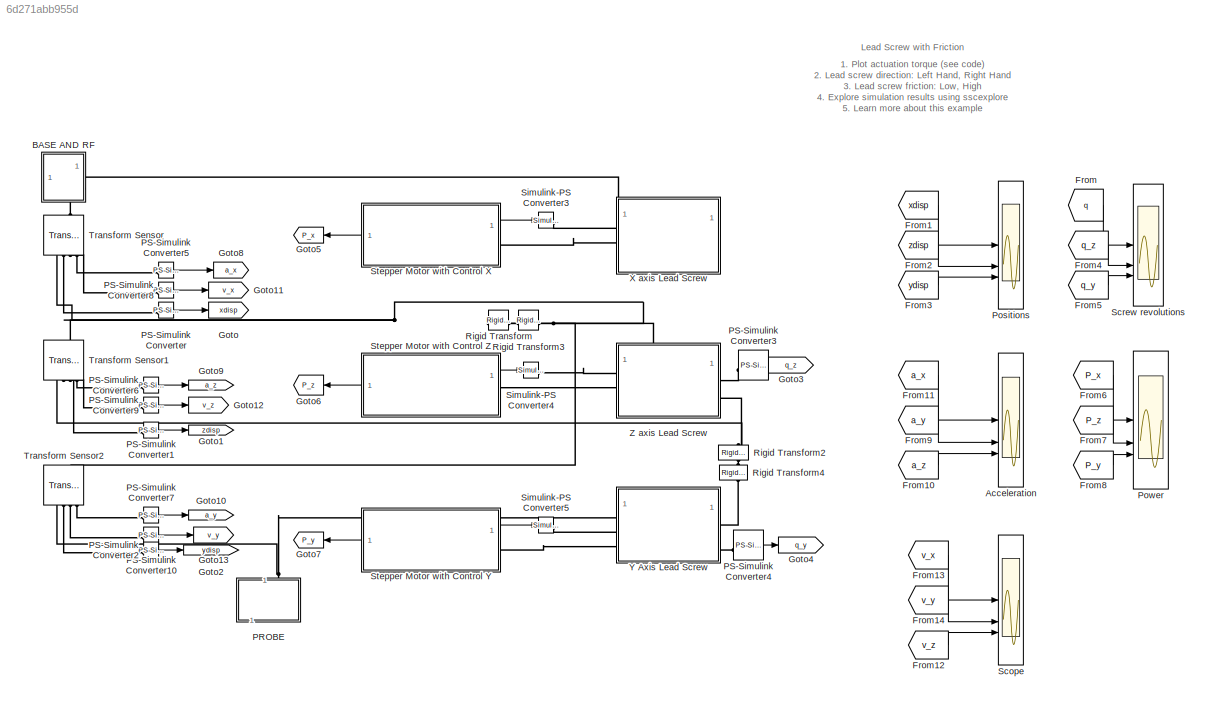
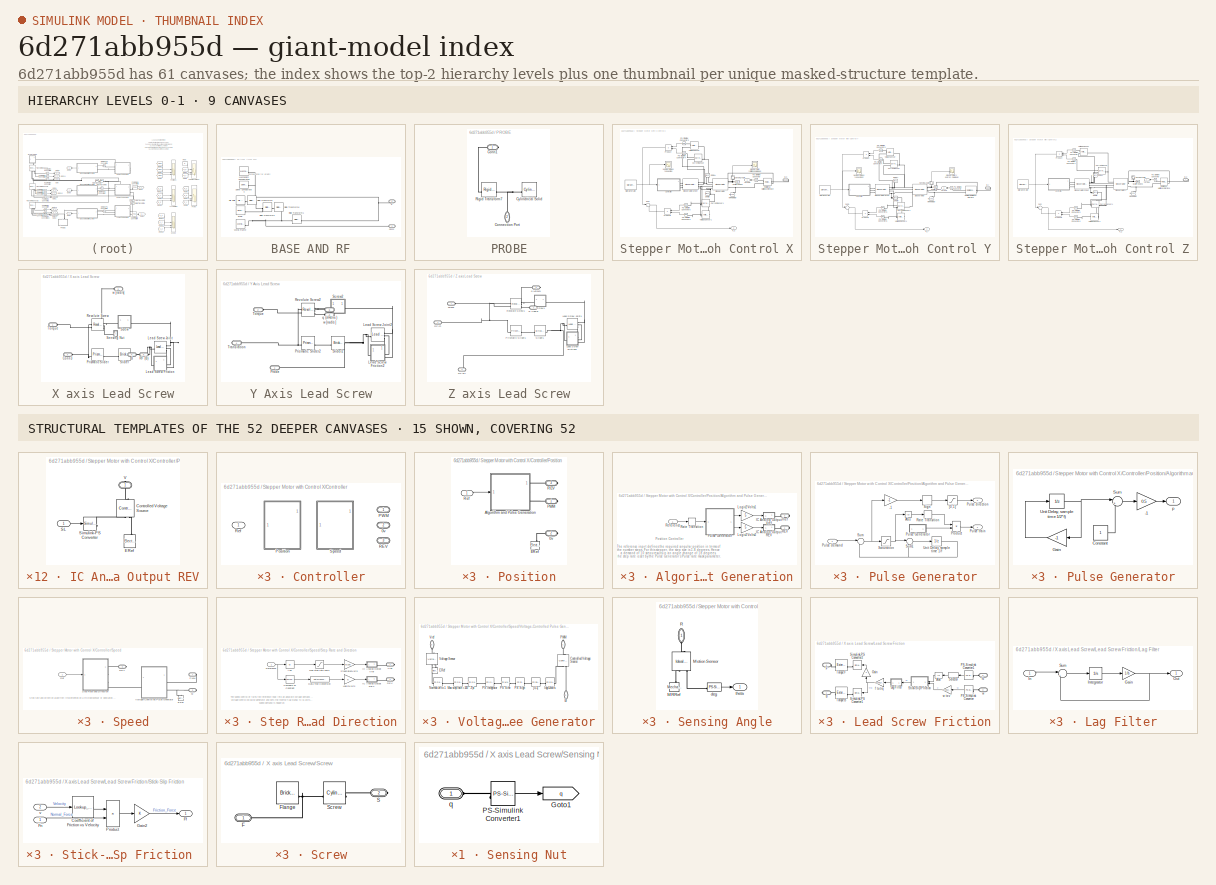
[diagram: thumbnail index - top-2 hierarchy levels (9 canvases) + 15 structural-template representatives of the remaining 52 canvases]
MODEL slx_6d271abb955d
KIND model
CONFIG AbsTol = 1e-4
CONFIG EnableMultiTasking = on
CONFIG FixedStep = auto
CONFIG InitFcn = Scan_Script_v8
CONFIG MaxStep = auto
CONFIG MinStep = auto
CONFIG RelTol = 1e-3
CONFIG SampleTimeConstraint = Unconstrained
CONFIG SolverName = ode23t
CONFIG StartTime = 0.0
CONFIG StopFcn = graphB
CONFIG StopTime = 1.6
WORKSPACE source: MATLAB code (in-file)
WORKSPACE screw_lead = 25e-3  (= 0.025)
BLOCK [Scope] Acceleration
  Floating = off
  NumInputPorts = 3
  ScopeSpecificationString = Simulink.scopes.TimeScopeBlockCfg('CurrentConfiguration', extmgr.ConfigurationSet(extmgr.Configuration('Core','General UI',true),extmgr.Configuration('Core','Source UI',true),extmgr.Configuration('Sources','WiredSimulink',true,'DataLoggingVariableName','AccData','DataLogging',true,'DataLoggingSaveFormat','StructureWithTime'),extmgr.Configuration('Visuals','Time Domain',true,'SerializedDisplays',{s...<+2803ch>
BLOCK [SubSystem] BASE AND RF
  PortSchema = {"entries":[{"content":{"sides":[{"content":{},"type":"ConnectorPlacement.EquallySpacedRectSide","uuid":"e1a16f55-811e-4f28-94cc-dff076befe5d"},{"content":{"connectorIds":["RConn1"],"side":"RIGHT"},"type":"ConnectorPlacement.EquallySpacedRectSide","uuid":"b7e481db-9f16-440e-94f1-e894d0c9158e"},{"content":{"side":"TOP"},"type":"ConnectorPlacement.EquallySpacedRectSide","uuid":"fdbe7675-31a0-455d-b0...<+354ch>
BLOCK [Reference] BASE AND RF/BASE  REF=sm_lib/Body Elements/Brick Solid
  SourceBlock = sm_lib/Body Elements/Brick Solid
  SourceType = Brick Solid
BLOCK [PMIOPort] BASE AND RF/Conn2
  Port = 2
  Side = Right
BLOCK [Reference] BASE AND RF/File Solid  REF=sm_lib/Body Elements/File Solid
  SourceBlock = sm_lib/Body Elements/File Solid
  SourceType = File Solid
BLOCK [Reference] BASE AND RF/Mechanism Configuration  REF=sm_lib/Utilities/Mechanism
Configuration
  NameLocation = top
  SourceBlock = sm_lib/Utilities/Mechanism\nConfiguration
  SourceType = Mechanism\nConfiguration
BLOCK [Reference] BASE AND RF/Rigid Transform1  REF=sm_lib/Frames and
Transforms/Rigid
Transform
  SourceBlock = sm_lib/Frames and\nTransforms/Rigid\nTransform
  SourceType = Rigid\nTransform
BLOCK [Reference] BASE AND RF/Rigid Transform5  REF=sm_lib/Frames and
Transforms/Rigid
Transform
  SourceBlock = sm_lib/Frames and\nTransforms/Rigid\nTransform
  SourceType = Rigid\nTransform
BLOCK [Reference] BASE AND RF/Rigid Transform6  REF=sm_lib/Frames and
Transforms/Rigid
Transform
  SourceBlock = sm_lib/Frames and\nTransforms/Rigid\nTransform
  SourceType = Rigid\nTransform
BLOCK [Reference] BASE AND RF/Rigid Transform8  REF=sm_lib/Frames and
Transforms/Rigid
Transform
  SourceBlock = sm_lib/Frames and\nTransforms/Rigid\nTransform
  SourceType = Rigid\nTransform
BLOCK [Reference] BASE AND RF/Solver Configuration  REF=nesl_utility/Solver
Configuration
  NameLocation = top
  SourceBlock = nesl_utility/Solver\nConfiguration
  SourceType = Solver\nConfiguration
BLOCK [Reference] BASE AND RF/World Frame  REF=sm_lib/Frames and
Transforms/World Frame
  SourceBlock = sm_lib/Frames and\nTransforms/World Frame
  SourceType = World Frame
BLOCK [PMIOPort] BASE AND RF/a
  Side = Right
BLOCK [From] From
  GotoTag = q
  TagVisibility = global
BLOCK [From] From1
  GotoTag = xdisp
BLOCK [From] From10
  GotoTag = a_z
BLOCK [From] From11
  GotoTag = a_x
BLOCK [From] From12
  GotoTag = v_z
BLOCK [From] From13
  GotoTag = v_x
BLOCK [From] From14
  GotoTag = v_y
BLOCK [From] From2
  GotoTag = zdisp
BLOCK [From] From3
  GotoTag = ydisp
BLOCK [From] From4
  GotoTag = q_z
  TagVisibility = global
BLOCK [From] From5
  GotoTag = q_y
  TagVisibility = global
BLOCK [From] From6
  GotoTag = P_x
BLOCK [From] From7
  GotoTag = P_z
BLOCK [From] From8
  GotoTag = P_y
BLOCK [From] From9
  GotoTag = a_y
BLOCK [Goto] Goto
  GotoTag = xdisp
BLOCK [Goto] Goto1
  GotoTag = zdisp
BLOCK [Goto] Goto10
  GotoTag = a_y
BLOCK [Goto] Goto11
  GotoTag = v_x
BLOCK [Goto] Goto12
  GotoTag = v_z
BLOCK [Goto] Goto13
  GotoTag = v_y
BLOCK [Goto] Goto2
  GotoTag = ydisp
BLOCK [Goto] Goto3
  GotoTag = q_z
  TagVisibility = global
BLOCK [Goto] Goto4
  GotoTag = q_y
  TagVisibility = global
BLOCK [Goto] Goto5
  GotoTag = P_x
BLOCK [Goto] Goto6
  GotoTag = P_z
BLOCK [Goto] Goto7
  GotoTag = P_y
BLOCK [Goto] Goto8
  GotoTag = a_x
BLOCK [Goto] Goto9
  GotoTag = a_z
BLOCK [SubSystem] PROBE
  NameLocation = left
BLOCK [PMIOPort] PROBE/Conn1
  Side = Right
BLOCK [PMIOPort] PROBE/Connection Port
  NameLocation = left
  Port = 2
  Side = Left
BLOCK [Reference] PROBE/Cylindrical Solid  REF=sm_lib/Body Elements/Cylindrical Solid
  SourceBlock = sm_lib/Body Elements/Cylindrical Solid
  SourceType = Cylindrical Solid
BLOCK [Reference] PROBE/Rigid Transform7  REF=sm_lib/Frames and
Transforms/Rigid
Transform
  SourceBlock = sm_lib/Frames and\nTransforms/Rigid\nTransform
  SourceType = Rigid\nTransform
BLOCK [Reference] PS-Simulink Converter  REF=nesl_utility/PS-Simulink
Converter
  SourceBlock = nesl_utility/PS-Simulink\nConverter
  SourceType = PS-Simulink\nConverter
BLOCK [Reference] PS-Simulink Converter1  REF=nesl_utility/PS-Simulink
Converter
  SourceBlock = nesl_utility/PS-Simulink\nConverter
  SourceType = PS-Simulink\nConverter
BLOCK [Reference] PS-Simulink Converter10  REF=nesl_utility/PS-Simulink
Converter
  SourceBlock = nesl_utility/PS-Simulink\nConverter
  SourceType = PS-Simulink\nConverter
BLOCK [Reference] PS-Simulink Converter2  REF=nesl_utility/PS-Simulink
Converter
  NameLocation = top
  SourceBlock = nesl_utility/PS-Simulink\nConverter
  SourceType = PS-Simulink\nConverter
BLOCK [Reference] PS-Simulink Converter3  REF=nesl_utility/PS-Simulink
Converter
  SourceBlock = nesl_utility/PS-Simulink\nConverter
  SourceType = PS-Simulink\nConverter
BLOCK [Reference] PS-Simulink Converter4  REF=nesl_utility/PS-Simulink
Converter
  SourceBlock = nesl_utility/PS-Simulink\nConverter
  SourceType = PS-Simulink\nConverter
BLOCK [Reference] PS-Simulink Converter5  REF=nesl_utility/PS-Simulink
Converter
  SourceBlock = nesl_utility/PS-Simulink\nConverter
  SourceType = PS-Simulink\nConverter
BLOCK [Reference] PS-Simulink Converter6  REF=nesl_utility/PS-Simulink
Converter
  SourceBlock = nesl_utility/PS-Simulink\nConverter
  SourceType = PS-Simulink\nConverter
BLOCK [Reference] PS-Simulink Converter7  REF=nesl_utility/PS-Simulink
Converter
  SourceBlock = nesl_utility/PS-Simulink\nConverter
  SourceType = PS-Simulink\nConverter
BLOCK [Reference] PS-Simulink Converter8  REF=nesl_utility/PS-Simulink
Converter
  SourceBlock = nesl_utility/PS-Simulink\nConverter
  SourceType = PS-Simulink\nConverter
BLOCK [Reference] PS-Simulink Converter9  REF=nesl_utility/PS-Simulink
Converter
  SourceBlock = nesl_utility/PS-Simulink\nConverter
  SourceType = PS-Simulink\nConverter
BLOCK [Scope] Positions
  Floating = off
  NumInputPorts = 3
  ScopeSpecificationString = Simulink.scopes.TimeScopeBlockCfg('CurrentConfiguration', extmgr.ConfigurationSet(extmgr.Configuration('Core','General UI',true),extmgr.Configuration('Core','Source UI',true),extmgr.Configuration('Sources','WiredSimulink',true,'DataLoggingSaveFormat','StructureWithTime','DataLoggingDecimation','1','DataLoggingDecimateData',true,'DataLogging',true,'DataLoggingVariableName','PositionsData'),extmgr.C...<+4072ch>
BLOCK [Scope] Power
  Floating = off
  NumInputPorts = 3
  ScopeSpecificationString = Simulink.scopes.TimeScopeBlockCfg('CurrentConfiguration', extmgr.ConfigurationSet(extmgr.Configuration('Core','General UI',true),extmgr.Configuration('Core','Source UI',true),extmgr.Configuration('Sources','WiredSimulink',true,'DataLoggingVariableName','PowerData','DataLogging',true,'DataLoggingSaveFormat','StructureWithTime'),extmgr.Configuration('Visuals','Time Domain',true,'SerializedDisplays',...<+2965ch>
BLOCK [Reference] Rigid Transform  REF=sm_lib/Frames and
Transforms/Rigid
Transform
  SourceBlock = sm_lib/Frames and\nTransforms/Rigid\nTransform
  SourceType = Rigid\nTransform
BLOCK [Reference] Rigid Transform2  REF=sm_lib/Frames and
Transforms/Rigid
Transform
  NameLocation = right
  SourceBlock = sm_lib/Frames and\nTransforms/Rigid\nTransform
  SourceType = Rigid\nTransform
BLOCK [Reference] Rigid Transform3  REF=sm_lib/Frames and
Transforms/Rigid
Transform
  SourceBlock = sm_lib/Frames and\nTransforms/Rigid\nTransform
  SourceType = Rigid\nTransform
BLOCK [Reference] Rigid Transform4  REF=sm_lib/Frames and
Transforms/Rigid
Transform
  NameLocation = right
  SourceBlock = sm_lib/Frames and\nTransforms/Rigid\nTransform
  SourceType = Rigid\nTransform
BLOCK [Scope] Scope
  Floating = off
  NumInputPorts = 3
  ScopeSpecificationString = Simulink.scopes.TimeScopeBlockCfg('CurrentConfiguration', extmgr.ConfigurationSet(extmgr.Configuration('Core','General UI',true),extmgr.Configuration('Core','Source UI',true),extmgr.Configuration('Sources','WiredSimulink',true,'DataLoggingVariableName','VelData','DataLogging',true,'DataLoggingSaveFormat','StructureWithTime'),extmgr.Configuration('Visuals','Time Domain',true,'SerializedDisplays',{s...<+2776ch>
BLOCK [Scope] Screw revolutions
  Floating = off
  NumInputPorts = 3
  ScopeSpecificationString = Simulink.scopes.TimeScopeBlockCfg('CurrentConfiguration', extmgr.ConfigurationSet(extmgr.Configuration('Core','General UI',true),extmgr.Configuration('Core','Source UI',true),extmgr.Configuration('Sources','WiredSimulink',true,'DataLoggingVariableName','RevsData','DataLogging',true,'DataLoggingSaveFormat','StructureWithTime'),extmgr.Configuration('Visuals','Time Domain',true,'SerializedDisplays',{...<+1492ch>
BLOCK [Reference] Simulink-PS Converter3  REF=nesl_utility/Simulink-PS
Converter
  SourceBlock = nesl_utility/Simulink-PS\nConverter
  SourceType = Simulink-PS\nConverter
BLOCK [Reference] Simulink-PS Converter4  REF=nesl_utility/Simulink-PS
Converter
  SourceBlock = nesl_utility/Simulink-PS\nConverter
  SourceType = Simulink-PS\nConverter
BLOCK [Reference] Simulink-PS Converter5  REF=nesl_utility/Simulink-PS
Converter
  SourceBlock = nesl_utility/Simulink-PS\nConverter
  SourceType = Simulink-PS\nConverter
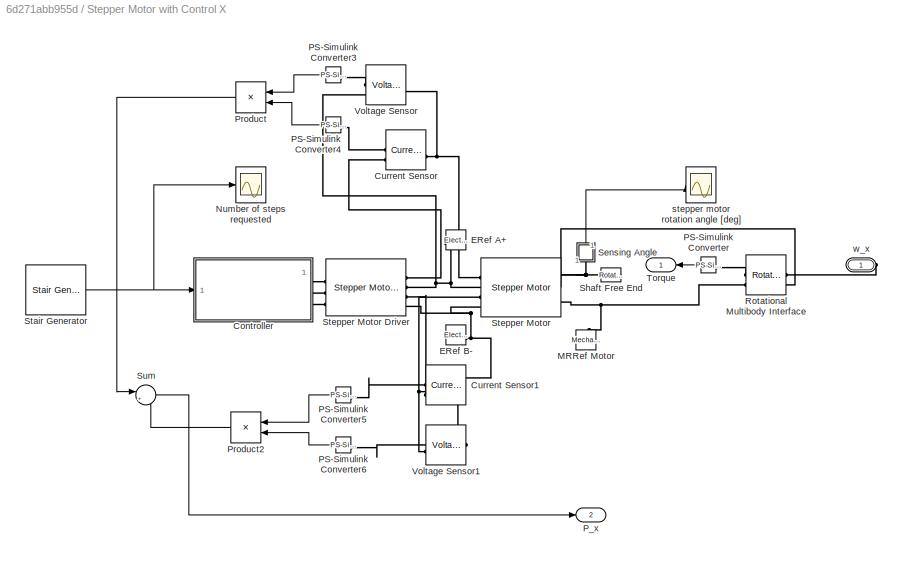
BLOCK [SubSystem] Stepper Motor with Control X
  PortSchema = {"entries":[{"content":{"sides":[{"content":{"connectorIds":["Out2"]},"type":"ConnectorPlacement.EquallySpacedRectSide","uuid":"d4a13004-0421-4076-88bd-b20e3621817d"},{"content":{"connectorIds":["Out1","RConn1"],"side":"RIGHT"},"type":"ConnectorPlacement.EquallySpacedRectSide","uuid":"ec4e333e-2383-40f5-9a1f-62b424520b96"},{"content":{"side":"TOP"},"type":"ConnectorPlacement.EquallySpacedRectSide"...<+232ch>
  ShowPortLabels = SignalName
BLOCK [PMIOPort] Stepper Motor with Control X/ w_x
  Side = Right
BLOCK [SubSystem] Stepper Motor with Control X/Controller
  AttributesFormatString = %<BlockChoice>
  LabelModeActiveChoice = Position
  Variant = on
  VariantControlMode = label
BLOCK [PMIOPort] Stepper Motor with Control X/Controller/0v
  Port = 2
  Side = Right
BLOCK [PMIOPort] Stepper Motor with Control X/Controller/PWM
  Side = Right
BLOCK [SubSystem] Stepper Motor with Control X/Controller/Position
  VariantControl = Position
BLOCK [PMIOPort] Stepper Motor with Control X/Controller/Position/0v
  Port = 2
  Side = Right
BLOCK [SubSystem] Stepper Motor with Control X/Controller/Position/Algorithm and Pulse Generation
BLOCK [SubSystem] Stepper Motor with Control X/Controller/Position/Algorithm and Pulse Generation/IC Analog Output REV
BLOCK [Reference] Stepper Motor with Control X/Controller/Position/Algorithm and Pulse Generation/IC Analog Output REV/Controlled Voltage Source  REF=fl_lib/Electrical/Electrical Sources/Controlled Voltage
Source
  NameLocation = right
  SourceBlock = fl_lib/Electrical/Electrical Sources/Controlled Voltage\nSource
  SourceType = Controlled Voltage\nSource
BLOCK [Reference] Stepper Motor with Control X/Controller/Position/Algorithm and Pulse Generation/IC Analog Output REV/ERef  REF=fl_lib/Electrical/Electrical Elements/Electrical Reference
  NameLocation = right
  SourceBlock = fl_lib/Electrical/Electrical Elements/Electrical Reference
  SourceType = Electrical Reference
BLOCK [Inport] Stepper Motor with Control X/Controller/Position/Algorithm and Pulse Generation/IC Analog Output REV/SL
BLOCK [Reference] Stepper Motor with Control X/Controller/Position/Algorithm and Pulse Generation/IC Analog Output REV/Simulink-PS Converter  REF=nesl_utility/Simulink-PS
Converter
  SourceBlock = nesl_utility/Simulink-PS\nConverter
  SourceType = Simulink-PS\nConverter
BLOCK [PMIOPort] Stepper Motor with Control X/Controller/Position/Algorithm and Pulse Generation/IC Analog Output REV/V
  NameLocation = right
  Side = Right
BLOCK [SubSystem] Stepper Motor with Control X/Controller/Position/Algorithm and Pulse Generation/IC Analog Output Vref
  NameLocation = top
BLOCK [Reference] Stepper Motor with Control X/Controller/Position/Algorithm and Pulse Generation/IC Analog Output Vref/Controlled Voltage Source  REF=fl_lib/Electrical/Electrical Sources/Controlled Voltage
Source
  NameLocation = right
  SourceBlock = fl_lib/Electrical/Electrical Sources/Controlled Voltage\nSource
  SourceType = Controlled Voltage\nSource
BLOCK [Reference] Stepper Motor with Control X/Controller/Position/Algorithm and Pulse Generation/IC Analog Output Vref/ERef  REF=fl_lib/Electrical/Electrical Elements/Electrical Reference
  NameLocation = right
  SourceBlock = fl_lib/Electrical/Electrical Elements/Electrical Reference
  SourceType = Electrical Reference
BLOCK [Inport] Stepper Motor with Control X/Controller/Position/Algorithm and Pulse Generation/IC Analog Output Vref/SL
BLOCK [Reference] Stepper Motor with Control X/Controller/Position/Algorithm and Pulse Generation/IC Analog Output Vref/Simulink-PS Converter  REF=nesl_utility/Simulink-PS
Converter
  SourceBlock = nesl_utility/Simulink-PS\nConverter
  SourceType = Simulink-PS\nConverter
BLOCK [PMIOPort] Stepper Motor with Control X/Controller/Position/Algorithm and Pulse Generation/IC Analog Output Vref/V
  NameLocation = right
  Side = Right
BLOCK [Gain] Stepper Motor with Control X/Controller/Position/Algorithm and Pulse Generation/Logic2Volts1
  Gain = 5
  NameLocation = top
BLOCK [Gain] Stepper Motor with Control X/Controller/Position/Algorithm and Pulse Generation/Logic2Volts2
  Gain = 5
BLOCK [SubSystem] Stepper Motor with Control X/Controller/Position/Algorithm and Pulse Generation/Pulse Generator
BLOCK [Gain] Stepper Motor with Control X/Controller/Position/Algorithm and Pulse Generation/Pulse Generator/-1
  Gain = -1
BLOCK [Abs] Stepper Motor with Control X/Controller/Position/Algorithm and Pulse Generation/Pulse Generator/Abs
  SaturateOnIntegerOverflow = off
BLOCK [Product] Stepper Motor with Control X/Controller/Position/Algorithm and Pulse Generation/Pulse Generator/Product
  InputSameDT = on
  OutDataTypeStr = Inherit: Same as first input
  SaturateOnIntegerOverflow = on
BLOCK [Inport] Stepper Motor with Control X/Controller/Position/Algorithm and Pulse Generation/Pulse Generator/Pulse  demand
  SampleTime = 1/f
BLOCK [SubSystem] Stepper Motor with Control X/Controller/Position/Algorithm and Pulse Generation/Pulse Generator/Pulse Generator
BLOCK [Gain] Stepper Motor with Control X/Controller/Position/Algorithm and Pulse Generation/Pulse Generator/Pulse Generator/-1
  Gain = 0.5
BLOCK [Constant] Stepper Motor with Control X/Controller/Position/Algorithm and Pulse Generation/Pulse Generator/Pulse Generator/Constant
  SampleTime = 1/(2*f)
BLOCK [Gain] Stepper Motor with Control X/Controller/Position/Algorithm and Pulse Generation/Pulse Generator/Pulse Generator/Gain
  Gain = -1
BLOCK [Sum] Stepper Motor with Control X/Controller/Position/Algorithm and Pulse Generation/Pulse Generator/Pulse Generator/Sum
  Inputs = |++
BLOCK [UnitDelay] Stepper Motor with Control X/Controller/Position/Algorithm and Pulse Generation/Pulse Generator/Pulse Generator/Unit Delay, sample time 1//2*f)
  HasFrameUpgradeWarning = on
  InitialCondition = -1
  SampleTime = 1/(2*f)
BLOCK [Outport] Stepper Motor with Control X/Controller/Position/Algorithm and Pulse Generation/Pulse Generator/Pulse Generator/p
  VectorParamsAs1DForOutWhenUnconnected = off
BLOCK [Outport] Stepper Motor with Control X/Controller/Position/Algorithm and Pulse Generation/Pulse Generator/Pulse direction
  Port = 2
  VectorParamsAs1DForOutWhenUnconnected = off
BLOCK [Outport] Stepper Motor with Control X/Controller/Position/Algorithm and Pulse Generation/Pulse Generator/Pulse train
  VectorParamsAs1DForOutWhenUnconnected = off
BLOCK [RateTransition] Stepper Motor with Control X/Controller/Position/Algorithm and Pulse Generation/Pulse Generator/Rate Transition
  Deterministic = off
BLOCK [Saturate] Stepper Motor with Control X/Controller/Position/Algorithm and Pulse Generation/Pulse Generator/Saturation
  LowerLimit = -1
  UpperLimit = 1
BLOCK [Signum] Stepper Motor with Control X/Controller/Position/Algorithm and Pulse Generation/Pulse Generator/Sign
BLOCK [Sum] Stepper Motor with Control X/Controller/Position/Algorithm and Pulse Generation/Pulse Generator/Sum
  Inputs = |+-
BLOCK [Sum] Stepper Motor with Control X/Controller/Position/Algorithm and Pulse Generation/Pulse Generator/Sum1
  Inputs = |++
BLOCK [UnitDelay] Stepper Motor with Control X/Controller/Position/Algorithm and Pulse Generation/Pulse Generator/Unit Delay, sample time 1//f
  HasFrameUpgradeWarning = on
  SampleTime = 1/f
BLOCK [Saturate] Stepper Motor with Control X/Controller/Position/Algorithm and Pulse Generation/Pulse Generator/[0,1]
  LowerLimit = 0
  UpperLimit = 1
BLOCK [PMIOPort] Stepper Motor with Control X/Controller/Position/Algorithm and Pulse Generation/REV
  Side = Right
BLOCK [RateTransition] Stepper Motor with Control X/Controller/Position/Algorithm and Pulse Generation/Rate Transition
  Deterministic = off
  NameLocation = top
BLOCK [Inport] Stepper Motor with Control X/Controller/Position/Algorithm and Pulse Generation/Reference
BLOCK [PMIOPort] Stepper Motor with Control X/Controller/Position/Algorithm and Pulse Generation/Vref
  NameLocation = top
  Port = 2
  Side = Right
BLOCK [Reference] Stepper Motor with Control X/Controller/Position/ERef  REF=fl_lib/Electrical/Electrical Elements/Electrical Reference
  NameLocation = left
  SourceBlock = fl_lib/Electrical/Electrical Elements/Electrical Reference
  SourceType = Electrical Reference
BLOCK [PMIOPort] Stepper Motor with Control X/Controller/Position/PWM
  Side = Right
BLOCK [PMIOPort] Stepper Motor with Control X/Controller/Position/REV
  NameLocation = top
  Port = 3
  Side = Right
BLOCK [Inport] Stepper Motor with Control X/Controller/Position/Ref
BLOCK [PMIOPort] Stepper Motor with Control X/Controller/REV
  Port = 3
  Side = Right
BLOCK [Inport] Stepper Motor with Control X/Controller/Ref
BLOCK [SubSystem] Stepper Motor with Control X/Controller/Speed
  VariantControl = Speed
BLOCK [PMIOPort] Stepper Motor with Control X/Controller/Speed/0v
  Port = 2
  Side = Right
BLOCK [Reference] Stepper Motor with Control X/Controller/Speed/ERef  REF=fl_lib/Electrical/Electrical Elements/Electrical Reference
  NameLocation = right
  SourceBlock = fl_lib/Electrical/Electrical Elements/Electrical Reference
  SourceType = Electrical Reference
BLOCK [PMIOPort] Stepper Motor with Control X/Controller/Speed/PWM
  Side = Right
BLOCK [PMIOPort] Stepper Motor with Control X/Controller/Speed/REV
  Port = 3
  Side = Right
BLOCK [Inport] Stepper Motor with Control X/Controller/Speed/Ref
BLOCK [SubSystem] Stepper Motor with Control X/Controller/Speed/Step Rate and Direction
BLOCK [Abs] Stepper Motor with Control X/Controller/Speed/Step Rate and Direction/Abs
  SaturateOnIntegerOverflow = off
BLOCK [Reference] Stepper Motor with Control X/Controller/Speed/Step Rate and Direction/Compare To Constant  REF=simulink/Logic and Bit
Operations/Compare
To Constant
  SourceBlock = simulink/Logic and Bit\nOperations/Compare\nTo Constant
  SourceType = Compare To Constant
BLOCK [DataTypeConversion] Stepper Motor with Control X/Controller/Speed/Step Rate and Direction/Data Type Conversion
  RndMeth = Floor
  SaturateOnIntegerOverflow = off
BLOCK [SubSystem] Stepper Motor with Control X/Controller/Speed/Step Rate and Direction/IC Analog Output REV
BLOCK [Reference] Stepper Motor with Control X/Controller/Speed/Step Rate and Direction/IC Analog Output REV/Controlled Voltage Source  REF=fl_lib/Electrical/Electrical Sources/Controlled Voltage
Source
  NameLocation = right
  SourceBlock = fl_lib/Electrical/Electrical Sources/Controlled Voltage\nSource
  SourceType = Controlled Voltage\nSource
BLOCK [Reference] Stepper Motor with Control X/Controller/Speed/Step Rate and Direction/IC Analog Output REV/ERef  REF=fl_lib/Electrical/Electrical Elements/Electrical Reference
  NameLocation = right
  SourceBlock = fl_lib/Electrical/Electrical Elements/Electrical Reference
  SourceType = Electrical Reference
BLOCK [Inport] Stepper Motor with Control X/Controller/Speed/Step Rate and Direction/IC Analog Output REV/SL
BLOCK [Reference] Stepper Motor with Control X/Controller/Speed/Step Rate and Direction/IC Analog Output REV/Simulink-PS Converter  REF=nesl_utility/Simulink-PS
Converter
  SourceBlock = nesl_utility/Simulink-PS\nConverter
  SourceType = Simulink-PS\nConverter
BLOCK [PMIOPort] Stepper Motor with Control X/Controller/Speed/Step Rate and Direction/IC Analog Output REV/V
  NameLocation = right
  Side = Right
BLOCK [SubSystem] Stepper Motor with Control X/Controller/Speed/Step Rate and Direction/IC Analog Output Vref
BLOCK [Reference] Stepper Motor with Control X/Controller/Speed/Step Rate and Direction/IC Analog Output Vref/Controlled Voltage Source  REF=fl_lib/Electrical/Electrical Sources/Controlled Voltage
Source
  NameLocation = right
  SourceBlock = fl_lib/Electrical/Electrical Sources/Controlled Voltage\nSource
  SourceType = Controlled Voltage\nSource
BLOCK [Reference] Stepper Motor with Control X/Controller/Speed/Step Rate and Direction/IC Analog Output Vref/ERef  REF=fl_lib/Electrical/Electrical Elements/Electrical Reference
  NameLocation = right
  SourceBlock = fl_lib/Electrical/Electrical Elements/Electrical Reference
  SourceType = Electrical Reference
BLOCK [Inport] Stepper Motor with Control X/Controller/Speed/Step Rate and Direction/IC Analog Output Vref/SL
BLOCK [Reference] Stepper Motor with Control X/Controller/Speed/Step Rate and Direction/IC Analog Output Vref/Simulink-PS Converter  REF=nesl_utility/Simulink-PS
Converter
  SourceBlock = nesl_utility/Simulink-PS\nConverter
  SourceType = Simulink-PS\nConverter
BLOCK [PMIOPort] Stepper Motor with Control X/Controller/Speed/Step Rate and Direction/IC Analog Output Vref/V
  NameLocation = right
  Side = Right
BLOCK [Gain] Stepper Motor with Control X/Controller/Speed/Step Rate and Direction/Logic2Volts
  Gain = 5
BLOCK [Saturate] Stepper Motor with Control X/Controller/Speed/Step Rate and Direction/Max step rate 100//s
  LowerLimit = 0
  UpperLimit = 100
BLOCK [PMIOPort] Stepper Motor with Control X/Controller/Speed/Step Rate and Direction/REV
  Side = Right
BLOCK [Inport] Stepper Motor with Control X/Controller/Speed/Step Rate and Direction/Reference
  NameLocation = top
BLOCK [Gain] Stepper Motor with Control X/Controller/Speed/Step Rate and Direction/StepRate2Volts
  Gain = 5/100
BLOCK [PMIOPort] Stepper Motor with Control X/Controller/Speed/Step Rate and Direction/Vref
  Port = 2
  Side = Right
BLOCK [SubSystem] Stepper Motor with Control X/Controller/Speed/Voltage-Controlled Pulse Generator
BLOCK [PMIOPort] Stepper Motor with Control X/Controller/Speed/Voltage-Controlled Pulse Generator/0v
  NameLocation = left
  Port = 2
  Side = Right
BLOCK [Reference] Stepper Motor with Control X/Controller/Speed/Voltage-Controlled Pulse Generator/2*pi  REF=fl_ps_legacy_lib/Legacy Physical
Signals/Functions/PS Gain
  SourceBlock = fl_ps_legacy_lib/Legacy Physical\nSignals/Functions/PS Gain
  SourceType = PS Gain
BLOCK [Reference] Stepper Motor with Control X/Controller/Speed/Voltage-Controlled Pulse Generator/Controlled Voltage Source  REF=fl_lib/Electrical/Electrical Sources/Controlled Voltage
Source
  NameLocation = left
  SourceBlock = fl_lib/Electrical/Electrical Sources/Controlled Voltage\nSource
  SourceType = Controlled Voltage\nSource
BLOCK [Reference] Stepper Motor with Control X/Controller/Speed/Voltage-Controlled Pulse Generator/ERef  REF=fl_lib/Electrical/Electrical Elements/Electrical Reference
  NameLocation = right
  SourceBlock = fl_lib/Electrical/Electrical Elements/Electrical Reference
  SourceType = Electrical Reference
BLOCK [Reference] Stepper Motor with Control X/Controller/Speed/Voltage-Controlled Pulse Generator/Max step rate =100  REF=fl_ps_legacy_lib/Legacy Physical
Signals/Functions/PS Gain
  NameLocation = top
  SourceBlock = fl_ps_legacy_lib/Legacy Physical\nSignals/Functions/PS Gain
  SourceType = PS Gain
BLOCK [Reference] Stepper Motor with Control X/Controller/Speed/Voltage-Controlled Pulse Generator/Normalize to 1  REF=fl_ps_legacy_lib/Legacy Physical
Signals/Functions/PS Gain
  SourceBlock = fl_ps_legacy_lib/Legacy Physical\nSignals/Functions/PS Gain
  SourceType = PS Gain
BLOCK [Reference] Stepper Motor with Control X/Controller/Speed/Voltage-Controlled Pulse Generator/PS Integrator  REF=fl_ps_legacy_lib/Legacy Physical
Signals/Linear Operators/PS Integrator
  NameLocation = top
  SourceBlock = fl_ps_legacy_lib/Legacy Physical\nSignals/Linear Operators/PS Integrator
  SourceType = PS Integrator
BLOCK [Reference] Stepper Motor with Control X/Controller/Speed/Voltage-Controlled Pulse Generator/PS Sign  REF=fl_ps_legacy_lib/Legacy Physical
Signals/Nonlinear Operators/PS Sign
  SourceBlock = fl_ps_legacy_lib/Legacy Physical\nSignals/Nonlinear Operators/PS Sign
  SourceType = PS Sign
BLOCK [Reference] Stepper Motor with Control X/Controller/Speed/Voltage-Controlled Pulse Generator/PS Sine  REF=fl_ps_legacy_lib/Legacy Physical
Signals/Functions/PS Math Function
  SourceBlock = fl_ps_legacy_lib/Legacy Physical\nSignals/Functions/PS Math Function
  SourceType = PS Math Function
BLOCK [PMIOPort] Stepper Motor with Control X/Controller/Speed/Voltage-Controlled Pulse Generator/PWM
  NameLocation = left
  Side = Right
BLOCK [Reference] Stepper Motor with Control X/Controller/Speed/Voltage-Controlled Pulse Generator/Voltage Sensor  REF=fl_lib/Electrical/Electrical Sensors/Voltage Sensor
  NameLocation = right
  SourceBlock = fl_lib/Electrical/Electrical Sensors/Voltage Sensor
  SourceType = Voltage Sensor
BLOCK [PMIOPort] Stepper Motor with Control X/Controller/Speed/Voltage-Controlled Pulse Generator/Vref
  NameLocation = right
  Port = 3
  Side = Left
BLOCK [Reference] Stepper Motor with Control X/Controller/Speed/Voltage-Controlled Pulse Generator/[0,1]  REF=fl_ps_legacy_lib/Legacy Physical
Signals/Nonlinear Operators/PS Saturation
  SourceBlock = fl_ps_legacy_lib/Legacy Physical\nSignals/Nonlinear Operators/PS Saturation
  SourceType = PS Saturation
BLOCK [Reference] Stepper Motor with Control X/Controller/Speed/Voltage-Controlled Pulse Generator/logic2volts  REF=fl_ps_legacy_lib/Legacy Physical
Signals/Functions/PS Gain
  SourceBlock = fl_ps_legacy_lib/Legacy Physical\nSignals/Functions/PS Gain
  SourceType = PS Gain
BLOCK [Reference] Stepper Motor with Control X/Current Sensor  REF=fl_lib/Electrical/Electrical Sensors/Current Sensor
  SourceBlock = fl_lib/Electrical/Electrical Sensors/Current Sensor
  SourceType = Current Sensor
BLOCK [Reference] Stepper Motor with Control X/Current Sensor1  REF=fl_lib/Electrical/Electrical Sensors/Current Sensor
  SourceBlock = fl_lib/Electrical/Electrical Sensors/Current Sensor
  SourceType = Current Sensor
BLOCK [Reference] Stepper Motor with Control X/ERef A+  REF=fl_lib/Electrical/Electrical Elements/Electrical Reference
  NameLocation = top
  SourceBlock = fl_lib/Electrical/Electrical Elements/Electrical Reference
  SourceType = Electrical Reference
BLOCK [Reference] Stepper Motor with Control X/ERef B-  REF=fl_lib/Electrical/Electrical Elements/Electrical Reference
  SourceBlock = fl_lib/Electrical/Electrical Elements/Electrical Reference
  SourceType = Electrical Reference
BLOCK [Reference] Stepper Motor with Control X/MRRef Motor  REF=fl_lib/Mechanical/Rotational Elements/Mechanical
Rotational Reference
  NameLocation = left
  SourceBlock = fl_lib/Mechanical/Rotational Elements/Mechanical\nRotational Reference
  SourceType = Mechanical\nRotational Reference
BLOCK [Scope] Stepper Motor with Control X/Number of steps requested
  Floating = off
  NumInputPorts = 1
  ScopeSpecificationString = Simulink.scopes.TimeScopeBlockCfg('CurrentConfiguration', extmgr.ConfigurationSet(extmgr.Configuration('Core','General UI',true),extmgr.Configuration('Core','Source UI',true),extmgr.Configuration('Sources','WiredSimulink',true,'DataLogging',true,'DataLoggingVariableName','ScopeData1','DataLoggingSaveFormat','StructureWithTime','DataLoggingDecimation','1','DataLoggingDecimateData',true),extmgr.Conf...<+1772ch>
BLOCK [Reference] Stepper Motor with Control X/PS-Simulink Converter  REF=nesl_utility/PS-Simulink
Converter
  SourceBlock = nesl_utility/PS-Simulink\nConverter
  SourceType = PS-Simulink\nConverter
BLOCK [Reference] Stepper Motor with Control X/PS-Simulink Converter3  REF=nesl_utility/PS-Simulink
Converter
  SourceBlock = nesl_utility/PS-Simulink\nConverter
  SourceType = PS-Simulink\nConverter
BLOCK [Reference] Stepper Motor with Control X/PS-Simulink Converter4  REF=nesl_utility/PS-Simulink
Converter
  SourceBlock = nesl_utility/PS-Simulink\nConverter
  SourceType = PS-Simulink\nConverter
BLOCK [Reference] Stepper Motor with Control X/PS-Simulink Converter5  REF=nesl_utility/PS-Simulink
Converter
  SourceBlock = nesl_utility/PS-Simulink\nConverter
  SourceType = PS-Simulink\nConverter
BLOCK [Reference] Stepper Motor with Control X/PS-Simulink Converter6  REF=nesl_utility/PS-Simulink
Converter
  SourceBlock = nesl_utility/PS-Simulink\nConverter
  SourceType = PS-Simulink\nConverter
BLOCK [Outport] Stepper Motor with Control X/P_x
  Port = 2
BLOCK [Product] Stepper Motor with Control X/Product
BLOCK [Product] Stepper Motor with Control X/Product2
BLOCK [Reference] Stepper Motor with Control X/Rotational Multibody Interface  REF=fl_lib/Mechanical/Multibody Interfaces/Rotational Multibody
Interface
  SourceBlock = fl_lib/Mechanical/Multibody Interfaces/Rotational Multibody\nInterface
  SourceType = Rotational Multibody\nInterface
BLOCK [SubSystem] Stepper Motor with Control X/Sensing Angle
  NameLocation = left
BLOCK [Reference] Stepper Motor with Control X/Sensing Angle/MRRef  REF=fl_lib/Mechanical/Rotational Elements/Mechanical
Rotational Reference
  NameLocation = left
  SourceBlock = fl_lib/Mechanical/Rotational Elements/Mechanical\nRotational Reference
  SourceType = Mechanical\nRotational Reference
BLOCK [Reference] Stepper Motor with Control X/Sensing Angle/Motion Sensor  REF=fl_lib/Mechanical/Mechanical Sensors/Ideal Rotational
Motion Sensor
  NameLocation = left
  SourceBlock = fl_lib/Mechanical/Mechanical Sensors/Ideal Rotational\nMotion Sensor
  SourceType = Ideal Rotational\nMotion Sensor
BLOCK [PMIOPort] Stepper Motor with Control X/Sensing Angle/R
  NameLocation = left
  Side = Left
BLOCK [Reference] Stepper Motor with Control X/Sensing Angle/deg  REF=nesl_utility/PS-Simulink
Converter
  SourceBlock = nesl_utility/PS-Simulink\nConverter
  SourceType = PS-Simulink\nConverter
BLOCK [Outport] Stepper Motor with Control X/Sensing Angle/theta
  VectorParamsAs1DForOutWhenUnconnected = off
BLOCK [Reference] Stepper Motor with Control X/Shaft Free End  REF=fl_lib/Mechanical/Rotational Elements/Rotational Free End
  SourceBlock = fl_lib/Mechanical/Rotational Elements/Rotational Free End
  SourceType = Rotational Free End
BLOCK [Reference] Stepper Motor with Control X/Stair Generator  REF=eeStairGenerator/Stair Generator
  LibrarySourceBlock = ee_sl_lib/General Control/Stair Generator
  SourceBlock = eeStairGenerator/Stair Generator
  SourceType = Stair Generator
BLOCK [Reference] Stepper Motor with Control X/Stepper Motor  REF=ee_lib/Electromechanical/Reluctance & Stepper/Stepper Motor
  SourceBlock = ee_lib/Electromechanical/Reluctance & Stepper/Stepper Motor
  SourceType = Stepper Motor
BLOCK [Reference] Stepper Motor with Control X/Stepper Motor Driver  REF=ee_lib/Electromechanical/Reluctance & Stepper/Stepper Motor Driver
  SourceBlock = ee_lib/Electromechanical/Reluctance & Stepper/Stepper Motor Driver
  SourceType = Stepper Motor Driver
BLOCK [Sum] Stepper Motor with Control X/Sum
  Inputs = |++
BLOCK [Outport] Stepper Motor with Control X/Torque
BLOCK [Reference] Stepper Motor with Control X/Voltage Sensor  REF=fl_lib/Electrical/Electrical Sensors/Voltage Sensor
  SourceBlock = fl_lib/Electrical/Electrical Sensors/Voltage Sensor
  SourceType = Voltage Sensor
BLOCK [Reference] Stepper Motor with Control X/Voltage Sensor1  REF=fl_lib/Electrical/Electrical Sensors/Voltage Sensor
  LibrarySourceBlock = ee_lib/Sensors &\nTransducers/Voltage Sensor
  NameLocation = top
  SourceBlock = fl_lib/Electrical/Electrical Sensors/Voltage Sensor
  SourceType = Voltage Sensor
BLOCK [Scope] Stepper Motor with Control X/stepper motor rotation angle [deg]
  Floating = off
  NumInputPorts = 1
  ScopeSpecificationString = Simulink.scopes.TimeScopeBlockCfg('CurrentConfiguration', extmgr.ConfigurationSet(extmgr.Configuration('Core','General UI',true),extmgr.Configuration('Core','Source UI',true),extmgr.Configuration('Sources','WiredSimulink',true,'DataLogging',true,'DataLoggingVariableName','ScopeData2','DataLoggingSaveFormat','StructureWithTime','DataLoggingDecimation','1','DataLoggingDecimateData',true),extmgr.Conf...<+1774ch>
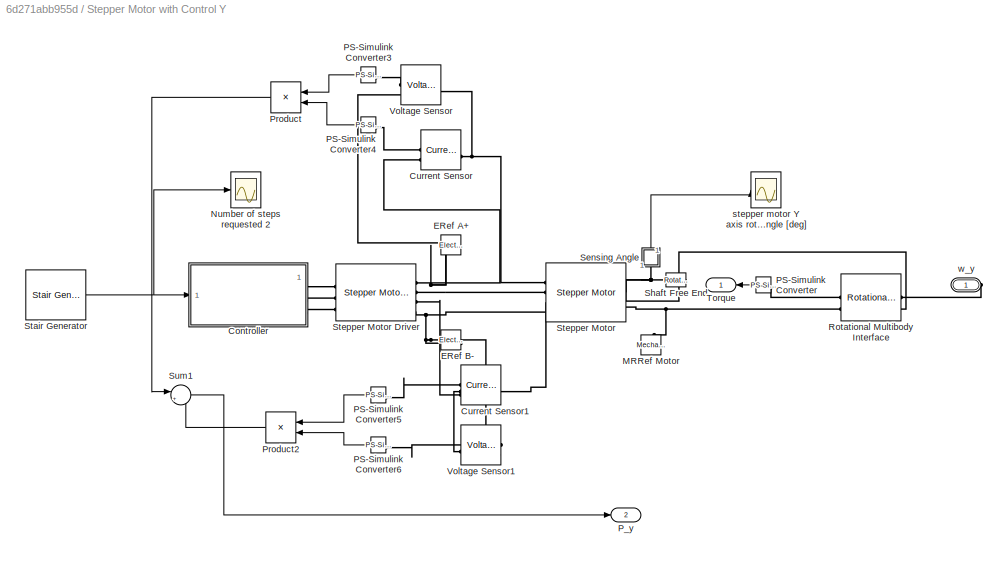
BLOCK [SubSystem] Stepper Motor with Control Y
  PortSchema = {"entries":[{"content":{"sides":[{"content":{"connectorIds":["Out2"]},"type":"ConnectorPlacement.EquallySpacedRectSide","uuid":"51ad8213-41aa-479a-83ef-80d419cc629a"},{"content":{"connectorIds":["Out1","RConn1"],"side":"RIGHT"},"type":"ConnectorPlacement.EquallySpacedRectSide","uuid":"ba2d3e48-e3a4-44eb-a7c6-2234710d1fbf"},{"content":{"side":"TOP"},"type":"ConnectorPlacement.EquallySpacedRectSide"...<+232ch>
BLOCK [SubSystem] Stepper Motor with Control Y/Controller
  AttributesFormatString = %<BlockChoice>
  LabelModeActiveChoice = Position
  Variant = on
  VariantControlMode = label
BLOCK [PMIOPort] Stepper Motor with Control Y/Controller/0v
  Port = 2
  Side = Right
BLOCK [PMIOPort] Stepper Motor with Control Y/Controller/PWM
  Side = Right
BLOCK [SubSystem] Stepper Motor with Control Y/Controller/Position
  VariantControl = Position
BLOCK [PMIOPort] Stepper Motor with Control Y/Controller/Position/0v
  Port = 2
  Side = Right
BLOCK [SubSystem] Stepper Motor with Control Y/Controller/Position/Algorithm and Pulse Generation
BLOCK [SubSystem] Stepper Motor with Control Y/Controller/Position/Algorithm and Pulse Generation/IC Analog Output REV
BLOCK [Reference] Stepper Motor with Control Y/Controller/Position/Algorithm and Pulse Generation/IC Analog Output REV/Controlled Voltage Source  REF=fl_lib/Electrical/Electrical Sources/Controlled Voltage
Source
  NameLocation = right
  SourceBlock = fl_lib/Electrical/Electrical Sources/Controlled Voltage\nSource
  SourceType = Controlled Voltage\nSource
BLOCK [Reference] Stepper Motor with Control Y/Controller/Position/Algorithm and Pulse Generation/IC Analog Output REV/ERef  REF=fl_lib/Electrical/Electrical Elements/Electrical Reference
  NameLocation = right
  SourceBlock = fl_lib/Electrical/Electrical Elements/Electrical Reference
  SourceType = Electrical Reference
BLOCK [Inport] Stepper Motor with Control Y/Controller/Position/Algorithm and Pulse Generation/IC Analog Output REV/SL
BLOCK [Reference] Stepper Motor with Control Y/Controller/Position/Algorithm and Pulse Generation/IC Analog Output REV/Simulink-PS Converter  REF=nesl_utility/Simulink-PS
Converter
  SourceBlock = nesl_utility/Simulink-PS\nConverter
  SourceType = Simulink-PS\nConverter
BLOCK [PMIOPort] Stepper Motor with Control Y/Controller/Position/Algorithm and Pulse Generation/IC Analog Output REV/V
  NameLocation = right
  Side = Right
BLOCK [SubSystem] Stepper Motor with Control Y/Controller/Position/Algorithm and Pulse Generation/IC Analog Output Vref
  NameLocation = top
BLOCK [Reference] Stepper Motor with Control Y/Controller/Position/Algorithm and Pulse Generation/IC Analog Output Vref/Controlled Voltage Source  REF=fl_lib/Electrical/Electrical Sources/Controlled Voltage
Source
  NameLocation = right
  SourceBlock = fl_lib/Electrical/Electrical Sources/Controlled Voltage\nSource
  SourceType = Controlled Voltage\nSource
BLOCK [Reference] Stepper Motor with Control Y/Controller/Position/Algorithm and Pulse Generation/IC Analog Output Vref/ERef  REF=fl_lib/Electrical/Electrical Elements/Electrical Reference
  NameLocation = right
  SourceBlock = fl_lib/Electrical/Electrical Elements/Electrical Reference
  SourceType = Electrical Reference
BLOCK [Inport] Stepper Motor with Control Y/Controller/Position/Algorithm and Pulse Generation/IC Analog Output Vref/SL
BLOCK [Reference] Stepper Motor with Control Y/Controller/Position/Algorithm and Pulse Generation/IC Analog Output Vref/Simulink-PS Converter  REF=nesl_utility/Simulink-PS
Converter
  SourceBlock = nesl_utility/Simulink-PS\nConverter
  SourceType = Simulink-PS\nConverter
BLOCK [PMIOPort] Stepper Motor with Control Y/Controller/Position/Algorithm and Pulse Generation/IC Analog Output Vref/V
  NameLocation = right
  Side = Right
BLOCK [Gain] Stepper Motor with Control Y/Controller/Position/Algorithm and Pulse Generation/Logic2Volts1
  Gain = 5
  NameLocation = top
BLOCK [Gain] Stepper Motor with Control Y/Controller/Position/Algorithm and Pulse Generation/Logic2Volts2
  Gain = 5
BLOCK [SubSystem] Stepper Motor with Control Y/Controller/Position/Algorithm and Pulse Generation/Pulse Generator
BLOCK [Gain] Stepper Motor with Control Y/Controller/Position/Algorithm and Pulse Generation/Pulse Generator/-1
  Gain = -1
BLOCK [Abs] Stepper Motor with Control Y/Controller/Position/Algorithm and Pulse Generation/Pulse Generator/Abs
  SaturateOnIntegerOverflow = off
BLOCK [Product] Stepper Motor with Control Y/Controller/Position/Algorithm and Pulse Generation/Pulse Generator/Product
  InputSameDT = on
  OutDataTypeStr = Inherit: Same as first input
  SaturateOnIntegerOverflow = on
BLOCK [Inport] Stepper Motor with Control Y/Controller/Position/Algorithm and Pulse Generation/Pulse Generator/Pulse  demand
  SampleTime = 1/f
BLOCK [SubSystem] Stepper Motor with Control Y/Controller/Position/Algorithm and Pulse Generation/Pulse Generator/Pulse Generator
BLOCK [Gain] Stepper Motor with Control Y/Controller/Position/Algorithm and Pulse Generation/Pulse Generator/Pulse Generator/-1
  Gain = 0.5
BLOCK [Constant] Stepper Motor with Control Y/Controller/Position/Algorithm and Pulse Generation/Pulse Generator/Pulse Generator/Constant
  SampleTime = 1/(2*f)
BLOCK [Gain] Stepper Motor with Control Y/Controller/Position/Algorithm and Pulse Generation/Pulse Generator/Pulse Generator/Gain
  Gain = -1
BLOCK [Sum] Stepper Motor with Control Y/Controller/Position/Algorithm and Pulse Generation/Pulse Generator/Pulse Generator/Sum
  Inputs = |++
BLOCK [UnitDelay] Stepper Motor with Control Y/Controller/Position/Algorithm and Pulse Generation/Pulse Generator/Pulse Generator/Unit Delay, sample time 1//2*f)
  HasFrameUpgradeWarning = on
  InitialCondition = -1
  SampleTime = 1/(2*f)
BLOCK [Outport] Stepper Motor with Control Y/Controller/Position/Algorithm and Pulse Generation/Pulse Generator/Pulse Generator/p
  VectorParamsAs1DForOutWhenUnconnected = off
BLOCK [Outport] Stepper Motor with Control Y/Controller/Position/Algorithm and Pulse Generation/Pulse Generator/Pulse direction
  Port = 2
  VectorParamsAs1DForOutWhenUnconnected = off
BLOCK [Outport] Stepper Motor with Control Y/Controller/Position/Algorithm and Pulse Generation/Pulse Generator/Pulse train
  VectorParamsAs1DForOutWhenUnconnected = off
BLOCK [RateTransition] Stepper Motor with Control Y/Controller/Position/Algorithm and Pulse Generation/Pulse Generator/Rate Transition
  Deterministic = off
BLOCK [Saturate] Stepper Motor with Control Y/Controller/Position/Algorithm and Pulse Generation/Pulse Generator/Saturation
  LowerLimit = -1
  UpperLimit = 1
BLOCK [Signum] Stepper Motor with Control Y/Controller/Position/Algorithm and Pulse Generation/Pulse Generator/Sign
BLOCK [Sum] Stepper Motor with Control Y/Controller/Position/Algorithm and Pulse Generation/Pulse Generator/Sum
  Inputs = |+-
BLOCK [Sum] Stepper Motor with Control Y/Controller/Position/Algorithm and Pulse Generation/Pulse Generator/Sum1
  Inputs = |++
BLOCK [UnitDelay] Stepper Motor with Control Y/Controller/Position/Algorithm and Pulse Generation/Pulse Generator/Unit Delay, sample time 1//f
  HasFrameUpgradeWarning = on
  SampleTime = 1/f
BLOCK [Saturate] Stepper Motor with Control Y/Controller/Position/Algorithm and Pulse Generation/Pulse Generator/[0,1]
  LowerLimit = 0
  UpperLimit = 1
BLOCK [PMIOPort] Stepper Motor with Control Y/Controller/Position/Algorithm and Pulse Generation/REV
  Side = Right
BLOCK [RateTransition] Stepper Motor with Control Y/Controller/Position/Algorithm and Pulse Generation/Rate Transition
  Deterministic = off
  NameLocation = top
BLOCK [Inport] Stepper Motor with Control Y/Controller/Position/Algorithm and Pulse Generation/Reference
BLOCK [PMIOPort] Stepper Motor with Control Y/Controller/Position/Algorithm and Pulse Generation/Vref
  NameLocation = top
  Port = 2
  Side = Right
BLOCK [Reference] Stepper Motor with Control Y/Controller/Position/ERef  REF=fl_lib/Electrical/Electrical Elements/Electrical Reference
  NameLocation = left
  SourceBlock = fl_lib/Electrical/Electrical Elements/Electrical Reference
  SourceType = Electrical Reference
BLOCK [PMIOPort] Stepper Motor with Control Y/Controller/Position/PWM
  Side = Right
BLOCK [PMIOPort] Stepper Motor with Control Y/Controller/Position/REV
  NameLocation = top
  Port = 3
  Side = Right
BLOCK [Inport] Stepper Motor with Control Y/Controller/Position/Ref
BLOCK [PMIOPort] Stepper Motor with Control Y/Controller/REV
  Port = 3
  Side = Right
BLOCK [Inport] Stepper Motor with Control Y/Controller/Ref
BLOCK [SubSystem] Stepper Motor with Control Y/Controller/Speed
  VariantControl = Speed
BLOCK [PMIOPort] Stepper Motor with Control Y/Controller/Speed/0v
  Port = 2
  Side = Right
BLOCK [Reference] Stepper Motor with Control Y/Controller/Speed/ERef  REF=fl_lib/Electrical/Electrical Elements/Electrical Reference
  NameLocation = right
  SourceBlock = fl_lib/Electrical/Electrical Elements/Electrical Reference
  SourceType = Electrical Reference
BLOCK [PMIOPort] Stepper Motor with Control Y/Controller/Speed/PWM
  Side = Right
BLOCK [PMIOPort] Stepper Motor with Control Y/Controller/Speed/REV
  Port = 3
  Side = Right
BLOCK [Inport] Stepper Motor with Control Y/Controller/Speed/Ref
BLOCK [SubSystem] Stepper Motor with Control Y/Controller/Speed/Step Rate and Direction
BLOCK [Abs] Stepper Motor with Control Y/Controller/Speed/Step Rate and Direction/Abs
  SaturateOnIntegerOverflow = off
BLOCK [Reference] Stepper Motor with Control Y/Controller/Speed/Step Rate and Direction/Compare To Constant  REF=simulink/Logic and Bit
Operations/Compare
To Constant
  SourceBlock = simulink/Logic and Bit\nOperations/Compare\nTo Constant
  SourceType = Compare To Constant
BLOCK [DataTypeConversion] Stepper Motor with Control Y/Controller/Speed/Step Rate and Direction/Data Type Conversion
  RndMeth = Floor
  SaturateOnIntegerOverflow = off
BLOCK [SubSystem] Stepper Motor with Control Y/Controller/Speed/Step Rate and Direction/IC Analog Output REV
BLOCK [Reference] Stepper Motor with Control Y/Controller/Speed/Step Rate and Direction/IC Analog Output REV/Controlled Voltage Source  REF=fl_lib/Electrical/Electrical Sources/Controlled Voltage
Source
  NameLocation = right
  SourceBlock = fl_lib/Electrical/Electrical Sources/Controlled Voltage\nSource
  SourceType = Controlled Voltage\nSource
BLOCK [Reference] Stepper Motor with Control Y/Controller/Speed/Step Rate and Direction/IC Analog Output REV/ERef  REF=fl_lib/Electrical/Electrical Elements/Electrical Reference
  NameLocation = right
  SourceBlock = fl_lib/Electrical/Electrical Elements/Electrical Reference
  SourceType = Electrical Reference
BLOCK [Inport] Stepper Motor with Control Y/Controller/Speed/Step Rate and Direction/IC Analog Output REV/SL
BLOCK [Reference] Stepper Motor with Control Y/Controller/Speed/Step Rate and Direction/IC Analog Output REV/Simulink-PS Converter  REF=nesl_utility/Simulink-PS
Converter
  SourceBlock = nesl_utility/Simulink-PS\nConverter
  SourceType = Simulink-PS\nConverter
BLOCK [PMIOPort] Stepper Motor with Control Y/Controller/Speed/Step Rate and Direction/IC Analog Output REV/V
  NameLocation = right
  Side = Right
BLOCK [SubSystem] Stepper Motor with Control Y/Controller/Speed/Step Rate and Direction/IC Analog Output Vref
BLOCK [Reference] Stepper Motor with Control Y/Controller/Speed/Step Rate and Direction/IC Analog Output Vref/Controlled Voltage Source  REF=fl_lib/Electrical/Electrical Sources/Controlled Voltage
Source
  NameLocation = right
  SourceBlock = fl_lib/Electrical/Electrical Sources/Controlled Voltage\nSource
  SourceType = Controlled Voltage\nSource
BLOCK [Reference] Stepper Motor with Control Y/Controller/Speed/Step Rate and Direction/IC Analog Output Vref/ERef  REF=fl_lib/Electrical/Electrical Elements/Electrical Reference
  NameLocation = right
  SourceBlock = fl_lib/Electrical/Electrical Elements/Electrical Reference
  SourceType = Electrical Reference
BLOCK [Inport] Stepper Motor with Control Y/Controller/Speed/Step Rate and Direction/IC Analog Output Vref/SL
BLOCK [Reference] Stepper Motor with Control Y/Controller/Speed/Step Rate and Direction/IC Analog Output Vref/Simulink-PS Converter  REF=nesl_utility/Simulink-PS
Converter
  SourceBlock = nesl_utility/Simulink-PS\nConverter
  SourceType = Simulink-PS\nConverter
BLOCK [PMIOPort] Stepper Motor with Control Y/Controller/Speed/Step Rate and Direction/IC Analog Output Vref/V
  NameLocation = right
  Side = Right
BLOCK [Gain] Stepper Motor with Control Y/Controller/Speed/Step Rate and Direction/Logic2Volts
  Gain = 5
BLOCK [Saturate] Stepper Motor with Control Y/Controller/Speed/Step Rate and Direction/Max step rate 100//s
  LowerLimit = 0
  UpperLimit = 100
BLOCK [PMIOPort] Stepper Motor with Control Y/Controller/Speed/Step Rate and Direction/REV
  Side = Right
BLOCK [Inport] Stepper Motor with Control Y/Controller/Speed/Step Rate and Direction/Reference
  NameLocation = top
BLOCK [Gain] Stepper Motor with Control Y/Controller/Speed/Step Rate and Direction/StepRate2Volts
  Gain = 5/100
BLOCK [PMIOPort] Stepper Motor with Control Y/Controller/Speed/Step Rate and Direction/Vref
  Port = 2
  Side = Right
BLOCK [SubSystem] Stepper Motor with Control Y/Controller/Speed/Voltage-Controlled Pulse Generator
BLOCK [PMIOPort] Stepper Motor with Control Y/Controller/Speed/Voltage-Controlled Pulse Generator/0v
  NameLocation = left
  Port = 2
  Side = Right
BLOCK [Reference] Stepper Motor with Control Y/Controller/Speed/Voltage-Controlled Pulse Generator/2*pi  REF=fl_ps_legacy_lib/Legacy Physical
Signals/Functions/PS Gain
  SourceBlock = fl_ps_legacy_lib/Legacy Physical\nSignals/Functions/PS Gain
  SourceType = PS Gain
BLOCK [Reference] Stepper Motor with Control Y/Controller/Speed/Voltage-Controlled Pulse Generator/Controlled Voltage Source  REF=fl_lib/Electrical/Electrical Sources/Controlled Voltage
Source
  NameLocation = left
  SourceBlock = fl_lib/Electrical/Electrical Sources/Controlled Voltage\nSource
  SourceType = Controlled Voltage\nSource
BLOCK [Reference] Stepper Motor with Control Y/Controller/Speed/Voltage-Controlled Pulse Generator/ERef  REF=fl_lib/Electrical/Electrical Elements/Electrical Reference
  NameLocation = right
  SourceBlock = fl_lib/Electrical/Electrical Elements/Electrical Reference
  SourceType = Electrical Reference
BLOCK [Reference] Stepper Motor with Control Y/Controller/Speed/Voltage-Controlled Pulse Generator/Max step rate =100  REF=fl_ps_legacy_lib/Legacy Physical
Signals/Functions/PS Gain
  NameLocation = top
  SourceBlock = fl_ps_legacy_lib/Legacy Physical\nSignals/Functions/PS Gain
  SourceType = PS Gain
BLOCK [Reference] Stepper Motor with Control Y/Controller/Speed/Voltage-Controlled Pulse Generator/Normalize to 1  REF=fl_ps_legacy_lib/Legacy Physical
Signals/Functions/PS Gain
  SourceBlock = fl_ps_legacy_lib/Legacy Physical\nSignals/Functions/PS Gain
  SourceType = PS Gain
BLOCK [Reference] Stepper Motor with Control Y/Controller/Speed/Voltage-Controlled Pulse Generator/PS Integrator  REF=fl_ps_legacy_lib/Legacy Physical
Signals/Linear Operators/PS Integrator
  NameLocation = top
  SourceBlock = fl_ps_legacy_lib/Legacy Physical\nSignals/Linear Operators/PS Integrator
  SourceType = PS Integrator
BLOCK [Reference] Stepper Motor with Control Y/Controller/Speed/Voltage-Controlled Pulse Generator/PS Sign  REF=fl_ps_legacy_lib/Legacy Physical
Signals/Nonlinear Operators/PS Sign
  SourceBlock = fl_ps_legacy_lib/Legacy Physical\nSignals/Nonlinear Operators/PS Sign
  SourceType = PS Sign
BLOCK [Reference] Stepper Motor with Control Y/Controller/Speed/Voltage-Controlled Pulse Generator/PS Sine  REF=fl_ps_legacy_lib/Legacy Physical
Signals/Functions/PS Math Function
  SourceBlock = fl_ps_legacy_lib/Legacy Physical\nSignals/Functions/PS Math Function
  SourceType = PS Math Function
BLOCK [PMIOPort] Stepper Motor with Control Y/Controller/Speed/Voltage-Controlled Pulse Generator/PWM
  NameLocation = left
  Side = Right
BLOCK [Reference] Stepper Motor with Control Y/Controller/Speed/Voltage-Controlled Pulse Generator/Voltage Sensor  REF=fl_lib/Electrical/Electrical Sensors/Voltage Sensor
  NameLocation = right
  SourceBlock = fl_lib/Electrical/Electrical Sensors/Voltage Sensor
  SourceType = Voltage Sensor
BLOCK [PMIOPort] Stepper Motor with Control Y/Controller/Speed/Voltage-Controlled Pulse Generator/Vref
  NameLocation = right
  Port = 3
  Side = Left
BLOCK [Reference] Stepper Motor with Control Y/Controller/Speed/Voltage-Controlled Pulse Generator/[0,1]  REF=fl_ps_legacy_lib/Legacy Physical
Signals/Nonlinear Operators/PS Saturation
  SourceBlock = fl_ps_legacy_lib/Legacy Physical\nSignals/Nonlinear Operators/PS Saturation
  SourceType = PS Saturation
BLOCK [Reference] Stepper Motor with Control Y/Controller/Speed/Voltage-Controlled Pulse Generator/logic2volts  REF=fl_ps_legacy_lib/Legacy Physical
Signals/Functions/PS Gain
  SourceBlock = fl_ps_legacy_lib/Legacy Physical\nSignals/Functions/PS Gain
  SourceType = PS Gain
BLOCK [Reference] Stepper Motor with Control Y/Current Sensor  REF=fl_lib/Electrical/Electrical Sensors/Current Sensor
  SourceBlock = fl_lib/Electrical/Electrical Sensors/Current Sensor
  SourceType = Current Sensor
BLOCK [Reference] Stepper Motor with Control Y/Current Sensor1  REF=fl_lib/Electrical/Electrical Sensors/Current Sensor
  SourceBlock = fl_lib/Electrical/Electrical Sensors/Current Sensor
  SourceType = Current Sensor
BLOCK [Reference] Stepper Motor with Control Y/ERef A+  REF=fl_lib/Electrical/Electrical Elements/Electrical Reference
  NameLocation = top
  SourceBlock = fl_lib/Electrical/Electrical Elements/Electrical Reference
  SourceType = Electrical Reference
BLOCK [Reference] Stepper Motor with Control Y/ERef B-  REF=fl_lib/Electrical/Electrical Elements/Electrical Reference
  SourceBlock = fl_lib/Electrical/Electrical Elements/Electrical Reference
  SourceType = Electrical Reference
BLOCK [Reference] Stepper Motor with Control Y/MRRef Motor  REF=fl_lib/Mechanical/Rotational Elements/Mechanical
Rotational Reference
  NameLocation = left
  SourceBlock = fl_lib/Mechanical/Rotational Elements/Mechanical\nRotational Reference
  SourceType = Mechanical\nRotational Reference
BLOCK [Scope] Stepper Motor with Control Y/Number of steps requested 2
  Commented = on
  Floating = off
  NumInputPorts = 1
  ScopeSpecificationString = Simulink.scopes.TimeScopeBlockCfg('CurrentConfiguration', extmgr.ConfigurationSet(extmgr.Configuration('Core','General UI',true),extmgr.Configuration('Core','Source UI',true),extmgr.Configuration('Sources','WiredSimulink',true,'DataLogging',true,'DataLoggingVariableName','ScopeData1','DataLoggingSaveFormat','StructureWithTime','DataLoggingDecimation','1','DataLoggingDecimateData',true),extmgr.Conf...<+1763ch>
BLOCK [Reference] Stepper Motor with Control Y/PS-Simulink Converter  REF=nesl_utility/PS-Simulink
Converter
  SourceBlock = nesl_utility/PS-Simulink\nConverter
  SourceType = PS-Simulink\nConverter
BLOCK [Reference] Stepper Motor with Control Y/PS-Simulink Converter3  REF=nesl_utility/PS-Simulink
Converter
  SourceBlock = nesl_utility/PS-Simulink\nConverter
  SourceType = PS-Simulink\nConverter
BLOCK [Reference] Stepper Motor with Control Y/PS-Simulink Converter4  REF=nesl_utility/PS-Simulink
Converter
  SourceBlock = nesl_utility/PS-Simulink\nConverter
  SourceType = PS-Simulink\nConverter
BLOCK [Reference] Stepper Motor with Control Y/PS-Simulink Converter5  REF=nesl_utility/PS-Simulink
Converter
  SourceBlock = nesl_utility/PS-Simulink\nConverter
  SourceType = PS-Simulink\nConverter
BLOCK [Reference] Stepper Motor with Control Y/PS-Simulink Converter6  REF=nesl_utility/PS-Simulink
Converter
  SourceBlock = nesl_utility/PS-Simulink\nConverter
  SourceType = PS-Simulink\nConverter
BLOCK [Outport] Stepper Motor with Control Y/P_y
  Port = 2
BLOCK [Product] Stepper Motor with Control Y/Product
BLOCK [Product] Stepper Motor with Control Y/Product2
BLOCK [Reference] Stepper Motor with Control Y/Rotational Multibody Interface  REF=fl_lib/Mechanical/Multibody Interfaces/Rotational Multibody
Interface
  SourceBlock = fl_lib/Mechanical/Multibody Interfaces/Rotational Multibody\nInterface
  SourceType = Rotational Multibody\nInterface
BLOCK [SubSystem] Stepper Motor with Control Y/Sensing Angle
  NameLocation = left
BLOCK [Reference] Stepper Motor with Control Y/Sensing Angle/MRRef  REF=fl_lib/Mechanical/Rotational Elements/Mechanical
Rotational Reference
  NameLocation = left
  SourceBlock = fl_lib/Mechanical/Rotational Elements/Mechanical\nRotational Reference
  SourceType = Mechanical\nRotational Reference
BLOCK [Reference] Stepper Motor with Control Y/Sensing Angle/Motion Sensor  REF=fl_lib/Mechanical/Mechanical Sensors/Ideal Rotational
Motion Sensor
  NameLocation = left
  SourceBlock = fl_lib/Mechanical/Mechanical Sensors/Ideal Rotational\nMotion Sensor
  SourceType = Ideal Rotational\nMotion Sensor
BLOCK [PMIOPort] Stepper Motor with Control Y/Sensing Angle/R
  NameLocation = left
  Side = Left
BLOCK [Reference] Stepper Motor with Control Y/Sensing Angle/deg  REF=nesl_utility/PS-Simulink
Converter
  SourceBlock = nesl_utility/PS-Simulink\nConverter
  SourceType = PS-Simulink\nConverter
BLOCK [Outport] Stepper Motor with Control Y/Sensing Angle/theta
  VectorParamsAs1DForOutWhenUnconnected = off
BLOCK [Reference] Stepper Motor with Control Y/Shaft Free End  REF=fl_lib/Mechanical/Rotational Elements/Rotational Free End
  SourceBlock = fl_lib/Mechanical/Rotational Elements/Rotational Free End
  SourceType = Rotational Free End
BLOCK [Reference] Stepper Motor with Control Y/Stair Generator  REF=eeStairGenerator/Stair Generator
  LibrarySourceBlock = ee_sl_lib/General Control/Stair Generator
  SourceBlock = eeStairGenerator/Stair Generator
  SourceType = Stair Generator
BLOCK [Reference] Stepper Motor with Control Y/Stepper Motor  REF=ee_lib/Electromechanical/Reluctance & Stepper/Stepper Motor
  SourceBlock = ee_lib/Electromechanical/Reluctance & Stepper/Stepper Motor
  SourceType = Stepper Motor
BLOCK [Reference] Stepper Motor with Control Y/Stepper Motor Driver  REF=ee_lib/Electromechanical/Reluctance & Stepper/Stepper Motor Driver
  SourceBlock = ee_lib/Electromechanical/Reluctance & Stepper/Stepper Motor Driver
  SourceType = Stepper Motor Driver
BLOCK [Sum] Stepper Motor with Control Y/Sum1
  Inputs = |++
BLOCK [Outport] Stepper Motor with Control Y/Torque
BLOCK [Reference] Stepper Motor with Control Y/Voltage Sensor  REF=fl_lib/Electrical/Electrical Sensors/Voltage Sensor
  SourceBlock = fl_lib/Electrical/Electrical Sensors/Voltage Sensor
  SourceType = Voltage Sensor
BLOCK [Reference] Stepper Motor with Control Y/Voltage Sensor1  REF=fl_lib/Electrical/Electrical Sensors/Voltage Sensor
  LibrarySourceBlock = ee_lib/Sensors &\nTransducers/Voltage Sensor
  NameLocation = top
  SourceBlock = fl_lib/Electrical/Electrical Sensors/Voltage Sensor
  SourceType = Voltage Sensor
BLOCK [Scope] Stepper Motor with Control Y/stepper motor Y axis rotation angle [deg]
  Commented = on
  Floating = off
  NumInputPorts = 1
  ScopeSpecificationString = Simulink.scopes.TimeScopeBlockCfg('CurrentConfiguration', extmgr.ConfigurationSet(extmgr.Configuration('Core','General UI',true),extmgr.Configuration('Core','Source UI',true),extmgr.Configuration('Sources','WiredSimulink',true,'DataLogging',true,'DataLoggingVariableName','ScopeData2','DataLoggingSaveFormat','StructureWithTime','DataLoggingDecimation','1','DataLoggingDecimateData',true),extmgr.Conf...<+1774ch>
BLOCK [PMIOPort] Stepper Motor with Control Y/w_y
  Side = Right
BLOCK [SubSystem] Stepper Motor with Control Z
  PortSchema = {"entries":[{"content":{"sides":[{"content":{"connectorIds":["Out2"]},"type":"ConnectorPlacement.EquallySpacedRectSide","uuid":"d4a13004-0421-4076-88bd-b20e3621817d"},{"content":{"connectorIds":["Out1","RConn1"],"side":"RIGHT"},"type":"ConnectorPlacement.EquallySpacedRectSide","uuid":"ec4e333e-2383-40f5-9a1f-62b424520b96"},{"content":{"side":"TOP"},"type":"ConnectorPlacement.EquallySpacedRectSide"...<+232ch>
BLOCK [PMIOPort] Stepper Motor with Control Z/ w_z
  Side = Right
BLOCK [SubSystem] Stepper Motor with Control Z/Controller
  AttributesFormatString = %<BlockChoice>
  LabelModeActiveChoice = Position
  Variant = on
  VariantControlMode = label
BLOCK [PMIOPort] Stepper Motor with Control Z/Controller/0v
  Port = 2
  Side = Right
BLOCK [PMIOPort] Stepper Motor with Control Z/Controller/PWM
  Side = Right
BLOCK [SubSystem] Stepper Motor with Control Z/Controller/Position
  VariantControl = Position
BLOCK [PMIOPort] Stepper Motor with Control Z/Controller/Position/0v
  Port = 2
  Side = Right
BLOCK [SubSystem] Stepper Motor with Control Z/Controller/Position/Algorithm and Pulse Generation
BLOCK [SubSystem] Stepper Motor with Control Z/Controller/Position/Algorithm and Pulse Generation/IC Analog Output REV
BLOCK [Reference] Stepper Motor with Control Z/Controller/Position/Algorithm and Pulse Generation/IC Analog Output REV/Controlled Voltage Source  REF=fl_lib/Electrical/Electrical Sources/Controlled Voltage
Source
  NameLocation = right
  SourceBlock = fl_lib/Electrical/Electrical Sources/Controlled Voltage\nSource
  SourceType = Controlled Voltage\nSource
BLOCK [Reference] Stepper Motor with Control Z/Controller/Position/Algorithm and Pulse Generation/IC Analog Output REV/ERef  REF=fl_lib/Electrical/Electrical Elements/Electrical Reference
  NameLocation = right
  SourceBlock = fl_lib/Electrical/Electrical Elements/Electrical Reference
  SourceType = Electrical Reference
BLOCK [Inport] Stepper Motor with Control Z/Controller/Position/Algorithm and Pulse Generation/IC Analog Output REV/SL
BLOCK [Reference] Stepper Motor with Control Z/Controller/Position/Algorithm and Pulse Generation/IC Analog Output REV/Simulink-PS Converter  REF=nesl_utility/Simulink-PS
Converter
  SourceBlock = nesl_utility/Simulink-PS\nConverter
  SourceType = Simulink-PS\nConverter
BLOCK [PMIOPort] Stepper Motor with Control Z/Controller/Position/Algorithm and Pulse Generation/IC Analog Output REV/V
  NameLocation = right
  Side = Right
BLOCK [SubSystem] Stepper Motor with Control Z/Controller/Position/Algorithm and Pulse Generation/IC Analog Output Vref
  NameLocation = top
BLOCK [Reference] Stepper Motor with Control Z/Controller/Position/Algorithm and Pulse Generation/IC Analog Output Vref/Controlled Voltage Source  REF=fl_lib/Electrical/Electrical Sources/Controlled Voltage
Source
  NameLocation = right
  SourceBlock = fl_lib/Electrical/Electrical Sources/Controlled Voltage\nSource
  SourceType = Controlled Voltage\nSource
BLOCK [Reference] Stepper Motor with Control Z/Controller/Position/Algorithm and Pulse Generation/IC Analog Output Vref/ERef  REF=fl_lib/Electrical/Electrical Elements/Electrical Reference
  NameLocation = right
  SourceBlock = fl_lib/Electrical/Electrical Elements/Electrical Reference
  SourceType = Electrical Reference
BLOCK [Inport] Stepper Motor with Control Z/Controller/Position/Algorithm and Pulse Generation/IC Analog Output Vref/SL
BLOCK [Reference] Stepper Motor with Control Z/Controller/Position/Algorithm and Pulse Generation/IC Analog Output Vref/Simulink-PS Converter  REF=nesl_utility/Simulink-PS
Converter
  SourceBlock = nesl_utility/Simulink-PS\nConverter
  SourceType = Simulink-PS\nConverter
BLOCK [PMIOPort] Stepper Motor with Control Z/Controller/Position/Algorithm and Pulse Generation/IC Analog Output Vref/V
  NameLocation = right
  Side = Right
BLOCK [Gain] Stepper Motor with Control Z/Controller/Position/Algorithm and Pulse Generation/Logic2Volts1
  Gain = 5
  NameLocation = top
BLOCK [Gain] Stepper Motor with Control Z/Controller/Position/Algorithm and Pulse Generation/Logic2Volts2
  Gain = 5
BLOCK [SubSystem] Stepper Motor with Control Z/Controller/Position/Algorithm and Pulse Generation/Pulse Generator
BLOCK [Gain] Stepper Motor with Control Z/Controller/Position/Algorithm and Pulse Generation/Pulse Generator/-1
  Gain = -1
BLOCK [Abs] Stepper Motor with Control Z/Controller/Position/Algorithm and Pulse Generation/Pulse Generator/Abs
  SaturateOnIntegerOverflow = off
BLOCK [Product] Stepper Motor with Control Z/Controller/Position/Algorithm and Pulse Generation/Pulse Generator/Product
  InputSameDT = on
  OutDataTypeStr = Inherit: Same as first input
  SaturateOnIntegerOverflow = on
BLOCK [Inport] Stepper Motor with Control Z/Controller/Position/Algorithm and Pulse Generation/Pulse Generator/Pulse  demand
  SampleTime = 1/f
BLOCK [SubSystem] Stepper Motor with Control Z/Controller/Position/Algorithm and Pulse Generation/Pulse Generator/Pulse Generator
BLOCK [Gain] Stepper Motor with Control Z/Controller/Position/Algorithm and Pulse Generation/Pulse Generator/Pulse Generator/-1
  Gain = 0.5
BLOCK [Constant] Stepper Motor with Control Z/Controller/Position/Algorithm and Pulse Generation/Pulse Generator/Pulse Generator/Constant
  SampleTime = 1/(2*f)
BLOCK [Gain] Stepper Motor with Control Z/Controller/Position/Algorithm and Pulse Generation/Pulse Generator/Pulse Generator/Gain
  Gain = -1
BLOCK [Sum] Stepper Motor with Control Z/Controller/Position/Algorithm and Pulse Generation/Pulse Generator/Pulse Generator/Sum
  Inputs = |++
BLOCK [UnitDelay] Stepper Motor with Control Z/Controller/Position/Algorithm and Pulse Generation/Pulse Generator/Pulse Generator/Unit Delay, sample time 1//2*f)
  HasFrameUpgradeWarning = on
  InitialCondition = -1
  SampleTime = 1/(2*f)
BLOCK [Outport] Stepper Motor with Control Z/Controller/Position/Algorithm and Pulse Generation/Pulse Generator/Pulse Generator/p
  VectorParamsAs1DForOutWhenUnconnected = off
BLOCK [Outport] Stepper Motor with Control Z/Controller/Position/Algorithm and Pulse Generation/Pulse Generator/Pulse direction
  Port = 2
  VectorParamsAs1DForOutWhenUnconnected = off
BLOCK [Outport] Stepper Motor with Control Z/Controller/Position/Algorithm and Pulse Generation/Pulse Generator/Pulse train
  VectorParamsAs1DForOutWhenUnconnected = off
BLOCK [RateTransition] Stepper Motor with Control Z/Controller/Position/Algorithm and Pulse Generation/Pulse Generator/Rate Transition
  Deterministic = off
BLOCK [Saturate] Stepper Motor with Control Z/Controller/Position/Algorithm and Pulse Generation/Pulse Generator/Saturation
  LowerLimit = -1
  UpperLimit = 1
BLOCK [Signum] Stepper Motor with Control Z/Controller/Position/Algorithm and Pulse Generation/Pulse Generator/Sign
BLOCK [Sum] Stepper Motor with Control Z/Controller/Position/Algorithm and Pulse Generation/Pulse Generator/Sum
  Inputs = |+-
BLOCK [Sum] Stepper Motor with Control Z/Controller/Position/Algorithm and Pulse Generation/Pulse Generator/Sum1
  Inputs = |++
BLOCK [UnitDelay] Stepper Motor with Control Z/Controller/Position/Algorithm and Pulse Generation/Pulse Generator/Unit Delay, sample time 1//f
  HasFrameUpgradeWarning = on
  SampleTime = 1/f
BLOCK [Saturate] Stepper Motor with Control Z/Controller/Position/Algorithm and Pulse Generation/Pulse Generator/[0,1]
  LowerLimit = 0
  UpperLimit = 1
BLOCK [PMIOPort] Stepper Motor with Control Z/Controller/Position/Algorithm and Pulse Generation/REV
  Side = Right
BLOCK [RateTransition] Stepper Motor with Control Z/Controller/Position/Algorithm and Pulse Generation/Rate Transition
  Deterministic = off
  NameLocation = top
BLOCK [Inport] Stepper Motor with Control Z/Controller/Position/Algorithm and Pulse Generation/Reference
BLOCK [PMIOPort] Stepper Motor with Control Z/Controller/Position/Algorithm and Pulse Generation/Vref
  NameLocation = top
  Port = 2
  Side = Right
BLOCK [Reference] Stepper Motor with Control Z/Controller/Position/ERef  REF=fl_lib/Electrical/Electrical Elements/Electrical Reference
  NameLocation = left
  SourceBlock = fl_lib/Electrical/Electrical Elements/Electrical Reference
  SourceType = Electrical Reference
BLOCK [PMIOPort] Stepper Motor with Control Z/Controller/Position/PWM
  Side = Right
BLOCK [PMIOPort] Stepper Motor with Control Z/Controller/Position/REV
  NameLocation = top
  Port = 3
  Side = Right
BLOCK [Inport] Stepper Motor with Control Z/Controller/Position/Ref
BLOCK [PMIOPort] Stepper Motor with Control Z/Controller/REV
  Port = 3
  Side = Right
BLOCK [Inport] Stepper Motor with Control Z/Controller/Ref
BLOCK [SubSystem] Stepper Motor with Control Z/Controller/Speed
  VariantControl = Speed
BLOCK [PMIOPort] Stepper Motor with Control Z/Controller/Speed/0v
  Port = 2
  Side = Right
BLOCK [Reference] Stepper Motor with Control Z/Controller/Speed/ERef  REF=fl_lib/Electrical/Electrical Elements/Electrical Reference
  NameLocation = right
  SourceBlock = fl_lib/Electrical/Electrical Elements/Electrical Reference
  SourceType = Electrical Reference
BLOCK [PMIOPort] Stepper Motor with Control Z/Controller/Speed/PWM
  Side = Right
BLOCK [PMIOPort] Stepper Motor with Control Z/Controller/Speed/REV
  Port = 3
  Side = Right
BLOCK [Inport] Stepper Motor with Control Z/Controller/Speed/Ref
BLOCK [SubSystem] Stepper Motor with Control Z/Controller/Speed/Step Rate and Direction
BLOCK [Abs] Stepper Motor with Control Z/Controller/Speed/Step Rate and Direction/Abs
  SaturateOnIntegerOverflow = off
BLOCK [Reference] Stepper Motor with Control Z/Controller/Speed/Step Rate and Direction/Compare To Constant  REF=simulink/Logic and Bit
Operations/Compare
To Constant
  SourceBlock = simulink/Logic and Bit\nOperations/Compare\nTo Constant
  SourceType = Compare To Constant
BLOCK [DataTypeConversion] Stepper Motor with Control Z/Controller/Speed/Step Rate and Direction/Data Type Conversion
  RndMeth = Floor
  SaturateOnIntegerOverflow = off
BLOCK [SubSystem] Stepper Motor with Control Z/Controller/Speed/Step Rate and Direction/IC Analog Output REV
BLOCK [Reference] Stepper Motor with Control Z/Controller/Speed/Step Rate and Direction/IC Analog Output REV/Controlled Voltage Source  REF=fl_lib/Electrical/Electrical Sources/Controlled Voltage
Source
  NameLocation = right
  SourceBlock = fl_lib/Electrical/Electrical Sources/Controlled Voltage\nSource
  SourceType = Controlled Voltage\nSource
BLOCK [Reference] Stepper Motor with Control Z/Controller/Speed/Step Rate and Direction/IC Analog Output REV/ERef  REF=fl_lib/Electrical/Electrical Elements/Electrical Reference
  NameLocation = right
  SourceBlock = fl_lib/Electrical/Electrical Elements/Electrical Reference
  SourceType = Electrical Reference
BLOCK [Inport] Stepper Motor with Control Z/Controller/Speed/Step Rate and Direction/IC Analog Output REV/SL
BLOCK [Reference] Stepper Motor with Control Z/Controller/Speed/Step Rate and Direction/IC Analog Output REV/Simulink-PS Converter  REF=nesl_utility/Simulink-PS
Converter
  SourceBlock = nesl_utility/Simulink-PS\nConverter
  SourceType = Simulink-PS\nConverter
BLOCK [PMIOPort] Stepper Motor with Control Z/Controller/Speed/Step Rate and Direction/IC Analog Output REV/V
  NameLocation = right
  Side = Right
BLOCK [SubSystem] Stepper Motor with Control Z/Controller/Speed/Step Rate and Direction/IC Analog Output Vref
BLOCK [Reference] Stepper Motor with Control Z/Controller/Speed/Step Rate and Direction/IC Analog Output Vref/Controlled Voltage Source  REF=fl_lib/Electrical/Electrical Sources/Controlled Voltage
Source
  NameLocation = right
  SourceBlock = fl_lib/Electrical/Electrical Sources/Controlled Voltage\nSource
  SourceType = Controlled Voltage\nSource
BLOCK [Reference] Stepper Motor with Control Z/Controller/Speed/Step Rate and Direction/IC Analog Output Vref/ERef  REF=fl_lib/Electrical/Electrical Elements/Electrical Reference
  NameLocation = right
  SourceBlock = fl_lib/Electrical/Electrical Elements/Electrical Reference
  SourceType = Electrical Reference
BLOCK [Inport] Stepper Motor with Control Z/Controller/Speed/Step Rate and Direction/IC Analog Output Vref/SL
BLOCK [Reference] Stepper Motor with Control Z/Controller/Speed/Step Rate and Direction/IC Analog Output Vref/Simulink-PS Converter  REF=nesl_utility/Simulink-PS
Converter
  SourceBlock = nesl_utility/Simulink-PS\nConverter
  SourceType = Simulink-PS\nConverter
BLOCK [PMIOPort] Stepper Motor with Control Z/Controller/Speed/Step Rate and Direction/IC Analog Output Vref/V
  NameLocation = right
  Side = Right
BLOCK [Gain] Stepper Motor with Control Z/Controller/Speed/Step Rate and Direction/Logic2Volts
  Gain = 5
BLOCK [Saturate] Stepper Motor with Control Z/Controller/Speed/Step Rate and Direction/Max step rate 100//s
  LowerLimit = 0
  UpperLimit = 100
BLOCK [PMIOPort] Stepper Motor with Control Z/Controller/Speed/Step Rate and Direction/REV
  Side = Right
BLOCK [Inport] Stepper Motor with Control Z/Controller/Speed/Step Rate and Direction/Reference
  NameLocation = top
BLOCK [Gain] Stepper Motor with Control Z/Controller/Speed/Step Rate and Direction/StepRate2Volts
  Gain = 5/100
BLOCK [PMIOPort] Stepper Motor with Control Z/Controller/Speed/Step Rate and Direction/Vref
  Port = 2
  Side = Right
BLOCK [SubSystem] Stepper Motor with Control Z/Controller/Speed/Voltage-Controlled Pulse Generator
BLOCK [PMIOPort] Stepper Motor with Control Z/Controller/Speed/Voltage-Controlled Pulse Generator/0v
  NameLocation = left
  Port = 2
  Side = Right
BLOCK [Reference] Stepper Motor with Control Z/Controller/Speed/Voltage-Controlled Pulse Generator/2*pi  REF=fl_ps_legacy_lib/Legacy Physical
Signals/Functions/PS Gain
  SourceBlock = fl_ps_legacy_lib/Legacy Physical\nSignals/Functions/PS Gain
  SourceType = PS Gain
BLOCK [Reference] Stepper Motor with Control Z/Controller/Speed/Voltage-Controlled Pulse Generator/Controlled Voltage Source  REF=fl_lib/Electrical/Electrical Sources/Controlled Voltage
Source
  NameLocation = left
  SourceBlock = fl_lib/Electrical/Electrical Sources/Controlled Voltage\nSource
  SourceType = Controlled Voltage\nSource
BLOCK [Reference] Stepper Motor with Control Z/Controller/Speed/Voltage-Controlled Pulse Generator/ERef  REF=fl_lib/Electrical/Electrical Elements/Electrical Reference
  NameLocation = right
  SourceBlock = fl_lib/Electrical/Electrical Elements/Electrical Reference
  SourceType = Electrical Reference
BLOCK [Reference] Stepper Motor with Control Z/Controller/Speed/Voltage-Controlled Pulse Generator/Max step rate =100  REF=fl_ps_legacy_lib/Legacy Physical
Signals/Functions/PS Gain
  NameLocation = top
  SourceBlock = fl_ps_legacy_lib/Legacy Physical\nSignals/Functions/PS Gain
  SourceType = PS Gain
BLOCK [Reference] Stepper Motor with Control Z/Controller/Speed/Voltage-Controlled Pulse Generator/Normalize to 1  REF=fl_ps_legacy_lib/Legacy Physical
Signals/Functions/PS Gain
  SourceBlock = fl_ps_legacy_lib/Legacy Physical\nSignals/Functions/PS Gain
  SourceType = PS Gain
BLOCK [Reference] Stepper Motor with Control Z/Controller/Speed/Voltage-Controlled Pulse Generator/PS Integrator  REF=fl_ps_legacy_lib/Legacy Physical
Signals/Linear Operators/PS Integrator
  NameLocation = top
  SourceBlock = fl_ps_legacy_lib/Legacy Physical\nSignals/Linear Operators/PS Integrator
  SourceType = PS Integrator
BLOCK [Reference] Stepper Motor with Control Z/Controller/Speed/Voltage-Controlled Pulse Generator/PS Sign  REF=fl_ps_legacy_lib/Legacy Physical
Signals/Nonlinear Operators/PS Sign
  SourceBlock = fl_ps_legacy_lib/Legacy Physical\nSignals/Nonlinear Operators/PS Sign
  SourceType = PS Sign
BLOCK [Reference] Stepper Motor with Control Z/Controller/Speed/Voltage-Controlled Pulse Generator/PS Sine  REF=fl_ps_legacy_lib/Legacy Physical
Signals/Functions/PS Math Function
  SourceBlock = fl_ps_legacy_lib/Legacy Physical\nSignals/Functions/PS Math Function
  SourceType = PS Math Function
BLOCK [PMIOPort] Stepper Motor with Control Z/Controller/Speed/Voltage-Controlled Pulse Generator/PWM
  NameLocation = left
  Side = Right
BLOCK [Reference] Stepper Motor with Control Z/Controller/Speed/Voltage-Controlled Pulse Generator/Voltage Sensor  REF=fl_lib/Electrical/Electrical Sensors/Voltage Sensor
  NameLocation = right
  SourceBlock = fl_lib/Electrical/Electrical Sensors/Voltage Sensor
  SourceType = Voltage Sensor
BLOCK [PMIOPort] Stepper Motor with Control Z/Controller/Speed/Voltage-Controlled Pulse Generator/Vref
  NameLocation = right
  Port = 3
  Side = Left
BLOCK [Reference] Stepper Motor with Control Z/Controller/Speed/Voltage-Controlled Pulse Generator/[0,1]  REF=fl_ps_legacy_lib/Legacy Physical
Signals/Nonlinear Operators/PS Saturation
  SourceBlock = fl_ps_legacy_lib/Legacy Physical\nSignals/Nonlinear Operators/PS Saturation
  SourceType = PS Saturation
BLOCK [Reference] Stepper Motor with Control Z/Controller/Speed/Voltage-Controlled Pulse Generator/logic2volts  REF=fl_ps_legacy_lib/Legacy Physical
Signals/Functions/PS Gain
  SourceBlock = fl_ps_legacy_lib/Legacy Physical\nSignals/Functions/PS Gain
  SourceType = PS Gain
BLOCK [Reference] Stepper Motor with Control Z/Current Sensor  REF=fl_lib/Electrical/Electrical Sensors/Current Sensor
  SourceBlock = fl_lib/Electrical/Electrical Sensors/Current Sensor
  SourceType = Current Sensor
BLOCK [Reference] Stepper Motor with Control Z/Current Sensor1  REF=fl_lib/Electrical/Electrical Sensors/Current Sensor
  SourceBlock = fl_lib/Electrical/Electrical Sensors/Current Sensor
  SourceType = Current Sensor
BLOCK [Reference] Stepper Motor with Control Z/ERef A+  REF=fl_lib/Electrical/Electrical Elements/Electrical Reference
  NameLocation = top
  SourceBlock = fl_lib/Electrical/Electrical Elements/Electrical Reference
  SourceType = Electrical Reference
BLOCK [Reference] Stepper Motor with Control Z/ERef B-  REF=fl_lib/Electrical/Electrical Elements/Electrical Reference
  SourceBlock = fl_lib/Electrical/Electrical Elements/Electrical Reference
  SourceType = Electrical Reference
BLOCK [Reference] Stepper Motor with Control Z/MRRef Motor  REF=fl_lib/Mechanical/Rotational Elements/Mechanical
Rotational Reference
  NameLocation = left
  SourceBlock = fl_lib/Mechanical/Rotational Elements/Mechanical\nRotational Reference
  SourceType = Mechanical\nRotational Reference
BLOCK [Reference] Stepper Motor with Control Z/PS-Simulink Converter  REF=nesl_utility/PS-Simulink
Converter
  SourceBlock = nesl_utility/PS-Simulink\nConverter
  SourceType = PS-Simulink\nConverter
BLOCK [Reference] Stepper Motor with Control Z/PS-Simulink Converter3  REF=nesl_utility/PS-Simulink
Converter
  SourceBlock = nesl_utility/PS-Simulink\nConverter
  SourceType = PS-Simulink\nConverter
BLOCK [Reference] Stepper Motor with Control Z/PS-Simulink Converter4  REF=nesl_utility/PS-Simulink
Converter
  SourceBlock = nesl_utility/PS-Simulink\nConverter
  SourceType = PS-Simulink\nConverter
BLOCK [Reference] Stepper Motor with Control Z/PS-Simulink Converter5  REF=nesl_utility/PS-Simulink
Converter
  SourceBlock = nesl_utility/PS-Simulink\nConverter
  SourceType = PS-Simulink\nConverter
BLOCK [Reference] Stepper Motor with Control Z/PS-Simulink Converter6  REF=nesl_utility/PS-Simulink
Converter
  SourceBlock = nesl_utility/PS-Simulink\nConverter
  SourceType = PS-Simulink\nConverter
BLOCK [Outport] Stepper Motor with Control Z/P_z
  Port = 2
BLOCK [Product] Stepper Motor with Control Z/Product
BLOCK [Product] Stepper Motor with Control Z/Product2
BLOCK [Reference] Stepper Motor with Control Z/Rotational Multibody Interface  REF=fl_lib/Mechanical/Multibody Interfaces/Rotational Multibody
Interface
  SourceBlock = fl_lib/Mechanical/Multibody Interfaces/Rotational Multibody\nInterface
  SourceType = Rotational Multibody\nInterface
BLOCK [SubSystem] Stepper Motor with Control Z/Sensing Angle
  NameLocation = left
BLOCK [Reference] Stepper Motor with Control Z/Sensing Angle/MRRef  REF=fl_lib/Mechanical/Rotational Elements/Mechanical
Rotational Reference
  NameLocation = left
  SourceBlock = fl_lib/Mechanical/Rotational Elements/Mechanical\nRotational Reference
  SourceType = Mechanical\nRotational Reference
BLOCK [Reference] Stepper Motor with Control Z/Sensing Angle/Motion Sensor  REF=fl_lib/Mechanical/Mechanical Sensors/Ideal Rotational
Motion Sensor
  NameLocation = left
  SourceBlock = fl_lib/Mechanical/Mechanical Sensors/Ideal Rotational\nMotion Sensor
  SourceType = Ideal Rotational\nMotion Sensor
BLOCK [PMIOPort] Stepper Motor with Control Z/Sensing Angle/R
  NameLocation = left
  Side = Left
BLOCK [Reference] Stepper Motor with Control Z/Sensing Angle/deg  REF=nesl_utility/PS-Simulink
Converter
  SourceBlock = nesl_utility/PS-Simulink\nConverter
  SourceType = PS-Simulink\nConverter
BLOCK [Outport] Stepper Motor with Control Z/Sensing Angle/theta
  VectorParamsAs1DForOutWhenUnconnected = off
BLOCK [Reference] Stepper Motor with Control Z/Shaft Free End  REF=fl_lib/Mechanical/Rotational Elements/Rotational Free End
  SourceBlock = fl_lib/Mechanical/Rotational Elements/Rotational Free End
  SourceType = Rotational Free End
BLOCK [Reference] Stepper Motor with Control Z/Stair Generator  REF=eeStairGenerator/Stair Generator
  LibrarySourceBlock = ee_sl_lib/General Control/Stair Generator
  SourceBlock = eeStairGenerator/Stair Generator
  SourceType = Stair Generator
BLOCK [Reference] Stepper Motor with Control Z/Stepper Motor Driver  REF=ee_lib/Electromechanical/Reluctance & Stepper/Stepper Motor Driver
  SourceBlock = ee_lib/Electromechanical/Reluctance & Stepper/Stepper Motor Driver
  SourceType = Stepper Motor Driver
BLOCK [Reference] Stepper Motor with Control Z/Stepper Motor1  REF=ee_lib/Electromechanical/Reluctance & Stepper/Stepper Motor
  SourceBlock = ee_lib/Electromechanical/Reluctance & Stepper/Stepper Motor
  SourceType = Stepper Motor
BLOCK [Sum] Stepper Motor with Control Z/Sum
  Inputs = |++
BLOCK [Outport] Stepper Motor with Control Z/Torque
BLOCK [Reference] Stepper Motor with Control Z/Voltage Sensor  REF=fl_lib/Electrical/Electrical Sensors/Voltage Sensor
  SourceBlock = fl_lib/Electrical/Electrical Sensors/Voltage Sensor
  SourceType = Voltage Sensor
BLOCK [Reference] Stepper Motor with Control Z/Voltage Sensor1  REF=fl_lib/Electrical/Electrical Sensors/Voltage Sensor
  LibrarySourceBlock = ee_lib/Sensors &\nTransducers/Voltage Sensor
  NameLocation = top
  SourceBlock = fl_lib/Electrical/Electrical Sensors/Voltage Sensor
  SourceType = Voltage Sensor
BLOCK [Reference] Transform Sensor  REF=sm_lib/Frames and
Transforms/Transform
Sensor
  NameLocation = left
  SourceBlock = sm_lib/Frames and\nTransforms/Transform\nSensor
  SourceType = Transform\nSensor
BLOCK [Reference] Transform Sensor1  REF=sm_lib/Frames and
Transforms/Transform
Sensor
  NameLocation = left
  SourceBlock = sm_lib/Frames and\nTransforms/Transform\nSensor
  SourceType = Transform\nSensor
BLOCK [Reference] Transform Sensor2  REF=sm_lib/Frames and
Transforms/Transform
Sensor
  NameLocation = right
  SourceBlock = sm_lib/Frames and\nTransforms/Transform\nSensor
  SourceType = Transform\nSensor
BLOCK [SubSystem] X axis Lead Screw
  PortSchema = {"entries":[{"content":{"sides":[{"content":{"connectorIds":["LConn1","LConn2"]},"type":"ConnectorPlacement.EquallySpacedRectSide","uuid":"ab0d7cc3-a8d0-486b-8718-2371dfd47691"},{"content":{"side":"RIGHT"},"type":"ConnectorPlacement.EquallySpacedRectSide","uuid":"023d1727-501b-4cac-a619-83ecf2e1d1e3"},{"content":{"connectorIds":["LConn3"],"side":"TOP"},"type":"ConnectorPlacement.EquallySpacedRectS...<+397ch>
BLOCK [PMIOPort] X axis Lead Screw/B
  Port = 4
  Side = Right
BLOCK [PMIOPort] X axis Lead Screw/Conn3
  Port = 3
  Side = Left
BLOCK [SubSystem] X axis Lead Screw/Lead Screw Friction
  AttributesFormatString = Lead Angle = 38.512 deg\nKinetic Friction = 0.205
  Tag = PublishSubsystem
BLOCK [Abs] X axis Lead Screw/Lead Screw Friction/Abs
  NameLocation = top
  SaturateOnIntegerOverflow = off
BLOCK [PMIOPort] X axis Lead Screw/Lead Screw Friction/B
  Side = Right
BLOCK [PMIOPort] X axis Lead Screw/Lead Screw Friction/F
  Port = 4
  Side = Left
BLOCK [Gain] X axis Lead Screw/Lead Screw Friction/Gain
  Gain = -1
  NameLocation = left
BLOCK [SubSystem] X axis Lead Screw/Lead Screw Friction/Lag Filter
BLOCK [Gain] X axis Lead Screw/Lead Screw Friction/Lag Filter/Gain
  Gain = 1/b
BLOCK [Inport] X axis Lead Screw/Lead Screw Friction/Lag Filter/In
BLOCK [Integrator] X axis Lead Screw/Lead Screw Friction/Lag Filter/Integrator
  InitialCondition = x_initial
BLOCK [Outport] X axis Lead Screw/Lead Screw Friction/Lag Filter/Out
  VectorParamsAs1DForOutWhenUnconnected = off
BLOCK [Sum] X axis Lead Screw/Lead Screw Friction/Lag Filter/Sum
  InputSameDT = on
  Inputs = |+-
  OutDataTypeStr = Inherit: Same as first input
  SaturateOnIntegerOverflow = on
BLOCK [Reference] X axis Lead Screw/Lead Screw Friction/PS-Simulink Converter  REF=nesl_utility/PS-Simulink
Converter
  NameLocation = top
  SourceBlock = nesl_utility/PS-Simulink\nConverter
  SourceType = PS-Simulink\nConverter
BLOCK [Reference] X axis Lead Screw/Lead Screw Friction/PS-Simulink Converter1  REF=nesl_utility/PS-Simulink
Converter
  NameLocation = top
  SourceBlock = nesl_utility/PS-Simulink\nConverter
  SourceType = PS-Simulink\nConverter
BLOCK [Selector] X axis Lead Screw/Lead Screw Friction/Selector
  IndexOptions = Index vector (dialog)
  Indices = [3]
  InputPortWidth = 3
  NameLocation = top
  OutputSizes = 1
BLOCK [Reference] X axis Lead Screw/Lead Screw Friction/Simulink-PS Converter1  REF=nesl_utility/Simulink-PS
Converter
  NameLocation = top
  SourceBlock = nesl_utility/Simulink-PS\nConverter
  SourceType = Simulink-PS\nConverter
BLOCK [Reference] X axis Lead Screw/Lead Screw Friction/Simulink-PS Converter2  REF=nesl_utility/Simulink-PS
Converter
  NameLocation = top
  SourceBlock = nesl_utility/Simulink-PS\nConverter
  SourceType = Simulink-PS\nConverter
BLOCK [SubSystem] X axis Lead Screw/Lead Screw Friction/Stick-Slip Friction 
  VariantControl = Stick_Slip_C
BLOCK [Lookup_n-D] X axis Lead Screw/Lead Screw Friction/Stick-Slip Friction /Coefficient of Friction vs Velocity
  BreakpointsForDimension1 = [-3 -1.5 -1 1 1.5 3]*vth
  InputPortMap = u0
  InternalRulePriority = Speed
  NameLocation = top
  NumberOfTableDimensions = 1
  Table = [-muk -muk -mus mus  muk muk]
BLOCK [Outport] X axis Lead Screw/Lead Screw Friction/Stick-Slip Friction /Ff
  VectorParamsAs1DForOutWhenUnconnected = off
BLOCK [Inport] X axis Lead Screw/Lead Screw Friction/Stick-Slip Friction /Fn
BLOCK [Gain] X axis Lead Screw/Lead Screw Friction/Stick-Slip Friction /Gain2
  Multiplication = Matrix(K*u)
  OutDataTypeStr = Inherit: Same as input
  ParamDataTypeStr = Inherit: Same as input
  SaturateOnIntegerOverflow = on
BLOCK [Product] X axis Lead Screw/Lead Screw Friction/Stick-Slip Friction /Product
  RndMeth = Zero
BLOCK [Inport] X axis Lead Screw/Lead Screw Friction/Stick-Slip Friction /v
  Port = 2
BLOCK [Reference] X axis Lead Screw/Lead Screw Friction/Torque B  REF=sm_lib/Forces and
Torques/External Force
and Torque
  SourceBlock = sm_lib/Forces and\nTorques/External Force\nand Torque
  SourceType = External Force\nand Torque
BLOCK [Reference] X axis Lead Screw/Lead Screw Friction/Torque F  REF=sm_lib/Forces and
Torques/External Force
and Torque
  SourceBlock = sm_lib/Forces and\nTorques/External Force\nand Torque
  SourceType = External Force\nand Torque
BLOCK [Gain] X axis Lead Screw/Lead Screw Friction/f to trq
  AttributesFormatString = %<Gain>
  Gain = screw_radius
BLOCK [PMIOPort] X axis Lead Screw/Lead Screw Friction/fc
  Port = 2
  Side = Left
BLOCK [PMIOPort] X axis Lead Screw/Lead Screw Friction/w
  Port = 3
  Side = Left
BLOCK [Gain] X axis Lead Screw/Lead Screw Friction/w to v
  AttributesFormatString = %<Gain>
  Gain = screw_radius
BLOCK [Reference] X axis Lead Screw/Lead Screw Joint  REF=sm_lib/Joints/Lead Screw
Joint
  AttributesFormatString = %<Direction>
  NameLocation = top
  SourceBlock = sm_lib/Joints/Lead Screw\nJoint
  SourceType = Lead Screw\nJoint
BLOCK [Reference] X axis Lead Screw/Prismatic Slider  REF=sm_lib/Joints/Prismatic
Joint
  SourceBlock = sm_lib/Joints/Prismatic\nJoint
  SourceType = Prismatic\nJoint
BLOCK [PMIOPort] X axis Lead Screw/RF (B)
  Port = 5
  Side = Right
BLOCK [Reference] X axis Lead Screw/Revolute Screw  REF=sm_lib/Joints/Revolute Joint
  SourceBlock = sm_lib/Joints/Revolute Joint
  SourceType = Revolute Joint
BLOCK [SubSystem] X axis Lead Screw/Screw
BLOCK [PMIOPort] X axis Lead Screw/Screw/F
  Side = Left
BLOCK [Reference] X axis Lead Screw/Screw/Flange  REF=sm_lib/Body Elements/Brick Solid
  SourceBlock = sm_lib/Body Elements/Brick Solid
  SourceType = Brick Solid
BLOCK [PMIOPort] X axis Lead Screw/Screw/S
  Port = 2
  Side = Right
BLOCK [Reference] X axis Lead Screw/Screw/Screw  REF=sm_lib/Body Elements/Cylindrical Solid
  SourceBlock = sm_lib/Body Elements/Cylindrical Solid
  SourceType = Cylindrical Solid
BLOCK [SubSystem] X axis Lead Screw/Sensing Nut
BLOCK [Goto] X axis Lead Screw/Sensing Nut/Goto1
  GotoTag = q
  TagVisibility = global
BLOCK [Reference] X axis Lead Screw/Sensing Nut/PS-Simulink Converter1  REF=nesl_utility/PS-Simulink
Converter
  SourceBlock = nesl_utility/PS-Simulink\nConverter
  SourceType = PS-Simulink\nConverter
BLOCK [PMIOPort] X axis Lead Screw/Sensing Nut/q
  Side = Left
BLOCK [Reference] X axis Lead Screw/Slider  REF=sm_lib/Body Elements/Brick Solid
  SourceBlock = sm_lib/Body Elements/Brick Solid
  SourceType = Brick Solid
BLOCK [PMIOPort] X axis Lead Screw/Torque
  Side = Left
BLOCK [PMIOPort] X axis Lead Screw/w [rad//s]
  Port = 2
  Side = Left
BLOCK [SubSystem] Y Axis Lead Screw
BLOCK [SubSystem] Y Axis Lead Screw/Lead Screw Friction2
  AttributesFormatString = Lead Angle = 38.512 deg\nKinetic Friction = 0.205
  Tag = PublishSubsystem
BLOCK [Abs] Y Axis Lead Screw/Lead Screw Friction2/Abs
  NameLocation = top
  SaturateOnIntegerOverflow = off
BLOCK [PMIOPort] Y Axis Lead Screw/Lead Screw Friction2/B
  Side = Right
BLOCK [PMIOPort] Y Axis Lead Screw/Lead Screw Friction2/F
  Port = 4
  Side = Left
BLOCK [Gain] Y Axis Lead Screw/Lead Screw Friction2/Gain
  Gain = -1
  NameLocation = left
BLOCK [SubSystem] Y Axis Lead Screw/Lead Screw Friction2/Lag Filter
BLOCK [Gain] Y Axis Lead Screw/Lead Screw Friction2/Lag Filter/Gain
  Gain = 1/b
BLOCK [Inport] Y Axis Lead Screw/Lead Screw Friction2/Lag Filter/In
BLOCK [Integrator] Y Axis Lead Screw/Lead Screw Friction2/Lag Filter/Integrator
  InitialCondition = x_initial
BLOCK [Outport] Y Axis Lead Screw/Lead Screw Friction2/Lag Filter/Out
  VectorParamsAs1DForOutWhenUnconnected = off
BLOCK [Sum] Y Axis Lead Screw/Lead Screw Friction2/Lag Filter/Sum
  InputSameDT = on
  Inputs = |+-
  OutDataTypeStr = Inherit: Same as first input
  SaturateOnIntegerOverflow = on
BLOCK [Reference] Y Axis Lead Screw/Lead Screw Friction2/PS-Simulink Converter  REF=nesl_utility/PS-Simulink
Converter
  NameLocation = top
  SourceBlock = nesl_utility/PS-Simulink\nConverter
  SourceType = PS-Simulink\nConverter
BLOCK [Reference] Y Axis Lead Screw/Lead Screw Friction2/PS-Simulink Converter1  REF=nesl_utility/PS-Simulink
Converter
  NameLocation = top
  SourceBlock = nesl_utility/PS-Simulink\nConverter
  SourceType = PS-Simulink\nConverter
BLOCK [Selector] Y Axis Lead Screw/Lead Screw Friction2/Selector
  IndexOptions = Index vector (dialog)
  Indices = [3]
  InputPortWidth = 3
  NameLocation = top
  OutputSizes = 1
BLOCK [Reference] Y Axis Lead Screw/Lead Screw Friction2/Simulink-PS Converter1  REF=nesl_utility/Simulink-PS
Converter
  NameLocation = top
  SourceBlock = nesl_utility/Simulink-PS\nConverter
  SourceType = Simulink-PS\nConverter
BLOCK [Reference] Y Axis Lead Screw/Lead Screw Friction2/Simulink-PS Converter2  REF=nesl_utility/Simulink-PS
Converter
  NameLocation = top
  SourceBlock = nesl_utility/Simulink-PS\nConverter
  SourceType = Simulink-PS\nConverter
BLOCK [SubSystem] Y Axis Lead Screw/Lead Screw Friction2/Stick-Slip Friction 
  VariantControl = Stick_Slip_C
BLOCK [Lookup_n-D] Y Axis Lead Screw/Lead Screw Friction2/Stick-Slip Friction /Coefficient of Friction vs Velocity
  BreakpointsForDimension1 = [-3 -1.5 -1 1 1.5 3]*vth
  InputPortMap = u0
  InternalRulePriority = Speed
  NameLocation = top
  NumberOfTableDimensions = 1
  Table = [-muk -muk -mus mus  muk muk]
BLOCK [Outport] Y Axis Lead Screw/Lead Screw Friction2/Stick-Slip Friction /Ff
  VectorParamsAs1DForOutWhenUnconnected = off
BLOCK [Inport] Y Axis Lead Screw/Lead Screw Friction2/Stick-Slip Friction /Fn
BLOCK [Gain] Y Axis Lead Screw/Lead Screw Friction2/Stick-Slip Friction /Gain2
  Multiplication = Matrix(K*u)
  OutDataTypeStr = Inherit: Same as input
  ParamDataTypeStr = Inherit: Same as input
  SaturateOnIntegerOverflow = on
BLOCK [Product] Y Axis Lead Screw/Lead Screw Friction2/Stick-Slip Friction /Product
  RndMeth = Zero
BLOCK [Inport] Y Axis Lead Screw/Lead Screw Friction2/Stick-Slip Friction /v
  Port = 2
BLOCK [Reference] Y Axis Lead Screw/Lead Screw Friction2/Torque B  REF=sm_lib/Forces and
Torques/External Force
and Torque
  SourceBlock = sm_lib/Forces and\nTorques/External Force\nand Torque
  SourceType = External Force\nand Torque
BLOCK [Reference] Y Axis Lead Screw/Lead Screw Friction2/Torque F  REF=sm_lib/Forces and
Torques/External Force
and Torque
  SourceBlock = sm_lib/Forces and\nTorques/External Force\nand Torque
  SourceType = External Force\nand Torque
BLOCK [Gain] Y Axis Lead Screw/Lead Screw Friction2/f to trq
  AttributesFormatString = %<Gain>
  Gain = screw_radius
BLOCK [PMIOPort] Y Axis Lead Screw/Lead Screw Friction2/fc
  Port = 2
  Side = Left
BLOCK [PMIOPort] Y Axis Lead Screw/Lead Screw Friction2/w
  Port = 3
  Side = Left
BLOCK [Gain] Y Axis Lead Screw/Lead Screw Friction2/w to v
  AttributesFormatString = %<Gain>
  Gain = screw_radius
BLOCK [Reference] Y Axis Lead Screw/Lead Screw Joint2  REF=sm_lib/Joints/Lead Screw
Joint
  AttributesFormatString = %<Direction>
  NameLocation = top
  SourceBlock = sm_lib/Joints/Lead Screw\nJoint
  SourceType = Lead Screw\nJoint
BLOCK [Reference] Y Axis Lead Screw/Prismatic Slider2  REF=sm_lib/Joints/Prismatic
Joint
  SourceBlock = sm_lib/Joints/Prismatic\nJoint
  SourceType = Prismatic\nJoint
BLOCK [PMIOPort] Y Axis Lead Screw/Probe
  Side = Left
BLOCK [Reference] Y Axis Lead Screw/Revolute Screw2  REF=sm_lib/Joints/Revolute Joint
  SourceBlock = sm_lib/Joints/Revolute Joint
  SourceType = Revolute Joint
BLOCK [SubSystem] Y Axis Lead Screw/Screw2
BLOCK [PMIOPort] Y Axis Lead Screw/Screw2/F
  Side = Left
BLOCK [Reference] Y Axis Lead Screw/Screw2/Flange  REF=sm_lib/Body Elements/Brick Solid
  SourceBlock = sm_lib/Body Elements/Brick Solid
  SourceType = Brick Solid
BLOCK [PMIOPort] Y Axis Lead Screw/Screw2/S
  Port = 2
  Side = Right
BLOCK [Reference] Y Axis Lead Screw/Screw2/Screw  REF=sm_lib/Body Elements/Cylindrical Solid
  SourceBlock = sm_lib/Body Elements/Cylindrical Solid
  SourceType = Cylindrical Solid
BLOCK [Reference] Y Axis Lead Screw/Slider2  REF=sm_lib/Body Elements/Brick Solid
  SourceBlock = sm_lib/Body Elements/Brick Solid
  SourceType = Brick Solid
BLOCK [PMIOPort] Y Axis Lead Screw/Torque
  Port = 2
  Side = Left
BLOCK [PMIOPort] Y Axis Lead Screw/Translation
  Port = 4
  Side = Right
BLOCK [PMIOPort] Y Axis Lead Screw/q (#Revs)
  Port = 5
  Side = Right
BLOCK [PMIOPort] Y Axis Lead Screw/w [rad//s]
  Port = 3
  Side = Left
BLOCK [SubSystem] Z axis Lead Screw
  PortSchema = {"entries":[{"content":{"sides":[{"content":{"connectorIds":["LConn1","LConn2"]},"type":"ConnectorPlacement.EquallySpacedRectSide","uuid":"edaec769-21de-44f2-a827-fc6cc0e0bfcf"},{"content":{"connectorIds":["RConn1","RConn2"],"side":"RIGHT"},"type":"ConnectorPlacement.EquallySpacedRectSide","uuid":"354538b1-bf94-48e5-9c32-303fea944a9f"},{"content":{"connectorIds":["LConn3"],"side":"TOP"},"type":"Co...<+397ch>
BLOCK [SubSystem] Z axis Lead Screw/Lead Screw Friction1
  AttributesFormatString = Lead Angle = 38.512 deg\nKinetic Friction = 0.360
  Tag = PublishSubsystem
BLOCK [Abs] Z axis Lead Screw/Lead Screw Friction1/Abs
  NameLocation = top
  SaturateOnIntegerOverflow = off
BLOCK [PMIOPort] Z axis Lead Screw/Lead Screw Friction1/B
  Side = Right
BLOCK [PMIOPort] Z axis Lead Screw/Lead Screw Friction1/F
  Port = 4
  Side = Left
BLOCK [Gain] Z axis Lead Screw/Lead Screw Friction1/Gain
  Gain = -1
  NameLocation = left
BLOCK [SubSystem] Z axis Lead Screw/Lead Screw Friction1/Lag Filter
BLOCK [Gain] Z axis Lead Screw/Lead Screw Friction1/Lag Filter/Gain
  Gain = 1/b
BLOCK [Inport] Z axis Lead Screw/Lead Screw Friction1/Lag Filter/In
BLOCK [Integrator] Z axis Lead Screw/Lead Screw Friction1/Lag Filter/Integrator
  InitialCondition = x_initial
BLOCK [Outport] Z axis Lead Screw/Lead Screw Friction1/Lag Filter/Out
  VectorParamsAs1DForOutWhenUnconnected = off
BLOCK [Sum] Z axis Lead Screw/Lead Screw Friction1/Lag Filter/Sum
  InputSameDT = on
  Inputs = |+-
  OutDataTypeStr = Inherit: Same as first input
  SaturateOnIntegerOverflow = on
BLOCK [Reference] Z axis Lead Screw/Lead Screw Friction1/PS-Simulink Converter  REF=nesl_utility/PS-Simulink
Converter
  NameLocation = top
  SourceBlock = nesl_utility/PS-Simulink\nConverter
  SourceType = PS-Simulink\nConverter
BLOCK [Reference] Z axis Lead Screw/Lead Screw Friction1/PS-Simulink Converter1  REF=nesl_utility/PS-Simulink
Converter
  NameLocation = top
  SourceBlock = nesl_utility/PS-Simulink\nConverter
  SourceType = PS-Simulink\nConverter
BLOCK [Selector] Z axis Lead Screw/Lead Screw Friction1/Selector
  IndexOptions = Index vector (dialog)
  Indices = [3]
  InputPortWidth = 3
  NameLocation = top
  OutputSizes = 1
BLOCK [Reference] Z axis Lead Screw/Lead Screw Friction1/Simulink-PS Converter1  REF=nesl_utility/Simulink-PS
Converter
  NameLocation = top
  SourceBlock = nesl_utility/Simulink-PS\nConverter
  SourceType = Simulink-PS\nConverter
BLOCK [Reference] Z axis Lead Screw/Lead Screw Friction1/Simulink-PS Converter2  REF=nesl_utility/Simulink-PS
Converter
  NameLocation = top
  SourceBlock = nesl_utility/Simulink-PS\nConverter
  SourceType = Simulink-PS\nConverter
BLOCK [SubSystem] Z axis Lead Screw/Lead Screw Friction1/Stick-Slip Friction 
  VariantControl = Stick_Slip_C
BLOCK [Lookup_n-D] Z axis Lead Screw/Lead Screw Friction1/Stick-Slip Friction /Coefficient of Friction vs Velocity
  BreakpointsForDimension1 = [-3 -1.5 -1 1 1.5 3]*vth
  InputPortMap = u0
  InternalRulePriority = Speed
  NameLocation = top
  NumberOfTableDimensions = 1
  Table = [-muk -muk -mus mus  muk muk]
BLOCK [Outport] Z axis Lead Screw/Lead Screw Friction1/Stick-Slip Friction /Ff
  VectorParamsAs1DForOutWhenUnconnected = off
BLOCK [Inport] Z axis Lead Screw/Lead Screw Friction1/Stick-Slip Friction /Fn
BLOCK [Gain] Z axis Lead Screw/Lead Screw Friction1/Stick-Slip Friction /Gain2
  Multiplication = Matrix(K*u)
  OutDataTypeStr = Inherit: Same as input
  ParamDataTypeStr = Inherit: Same as input
  SaturateOnIntegerOverflow = on
BLOCK [Product] Z axis Lead Screw/Lead Screw Friction1/Stick-Slip Friction /Product
  RndMeth = Zero
BLOCK [Inport] Z axis Lead Screw/Lead Screw Friction1/Stick-Slip Friction /v
  Port = 2
BLOCK [Reference] Z axis Lead Screw/Lead Screw Friction1/Torque B  REF=sm_lib/Forces and
Torques/External Force
and Torque
  SourceBlock = sm_lib/Forces and\nTorques/External Force\nand Torque
  SourceType = External Force\nand Torque
BLOCK [Reference] Z axis Lead Screw/Lead Screw Friction1/Torque F  REF=sm_lib/Forces and
Torques/External Force
and Torque
  SourceBlock = sm_lib/Forces and\nTorques/External Force\nand Torque
  SourceType = External Force\nand Torque
BLOCK [Gain] Z axis Lead Screw/Lead Screw Friction1/f to trq
  AttributesFormatString = %<Gain>
  Gain = screw_radius
BLOCK [PMIOPort] Z axis Lead Screw/Lead Screw Friction1/fc
  Port = 2
  Side = Left
BLOCK [PMIOPort] Z axis Lead Screw/Lead Screw Friction1/w
  Port = 3
  Side = Left
BLOCK [Gain] Z axis Lead Screw/Lead Screw Friction1/w to v
  AttributesFormatString = %<Gain>
  Gain = screw_radius
BLOCK [Reference] Z axis Lead Screw/Lead Screw Joint1  REF=sm_lib/Joints/Lead Screw
Joint
  AttributesFormatString = %<Direction>
  NameLocation = top
  SourceBlock = sm_lib/Joints/Lead Screw\nJoint
  SourceType = Lead Screw\nJoint
BLOCK [Reference] Z axis Lead Screw/Prismatic Slider1  REF=sm_lib/Joints/Prismatic
Joint
  SourceBlock = sm_lib/Joints/Prismatic\nJoint
  SourceType = Prismatic\nJoint
BLOCK [PMIOPort] Z axis Lead Screw/RF (B)
  Port = 5
  Side = Right
BLOCK [PMIOPort] Z axis Lead Screw/RF (F)
  Port = 3
  Side = Left
BLOCK [Reference] Z axis Lead Screw/Revolute Screw1  REF=sm_lib/Joints/Revolute Joint
  SourceBlock = sm_lib/Joints/Revolute Joint
  SourceType = Revolute Joint
BLOCK [SubSystem] Z axis Lead Screw/Screw1
BLOCK [PMIOPort] Z axis Lead Screw/Screw1/F
  Side = Left
BLOCK [Reference] Z axis Lead Screw/Screw1/Flange  REF=sm_lib/Body Elements/Brick Solid
  SourceBlock = sm_lib/Body Elements/Brick Solid
  SourceType = Brick Solid
BLOCK [PMIOPort] Z axis Lead Screw/Screw1/S
  Port = 2
  Side = Right
BLOCK [Reference] Z axis Lead Screw/Screw1/Screw  REF=sm_lib/Body Elements/Cylindrical Solid
  SourceBlock = sm_lib/Body Elements/Cylindrical Solid
  SourceType = Cylindrical Solid
BLOCK [Reference] Z axis Lead Screw/Slider1  REF=sm_lib/Body Elements/Brick Solid
  SourceBlock = sm_lib/Body Elements/Brick Solid
  SourceType = Brick Solid
BLOCK [PMIOPort] Z axis Lead Screw/Torque
  Side = Left
BLOCK [PMIOPort] Z axis Lead Screw/q (#Revs)
  Port = 4
  Side = Right
BLOCK [PMIOPort] Z axis Lead Screw/w [rad//s]
  Port = 2
  Side = Left
ANNOTATION (root): 1. Plot actuation torque ( see code ) 2. Lead screw direction: Left Hand , Right Hand 3. Lead screw friction: Low , High 4. Explore simulation results using sscexplore 5. Learn more about this example
ANNOTATION (root): Lead Screw with Friction
ANNOTATION BASE AND RF: Configuration for gravity
ANNOTATION Stepper Motor with Control X/Controller/Position/Algorithm and Pulse Generation: Position Controller
ANNOTATION Stepper Motor with Control X/Controller/Position/Algorithm and Pulse Generation: The reference input defines the required angular position in terms of the number steps. For this stepper, the step size is 1.8 degrees. Hence a demand of 10 steps results in an angle change of 18 degrees. The step rate is set by the Pulse Generator's Pulse rate mask parameter.
ANNOTATION Stepper Motor with Control X/Controller/Speed: Step rate and direction algorithm implemented on a microprocessor or dedicated discrete chip
ANNOTATION Stepper Motor with Control X/Controller/Speed/Step Rate and Direction: The speed controller turns the reference input into an absolute voltage demand for the voltage-controlled pulse generator and sets the reverse flag signal to +5 volts when the speed demand is negative.
ANNOTATION Stepper Motor with Control Y/Controller/Position/Algorithm and Pulse Generation: Position Controller
ANNOTATION Stepper Motor with Control Y/Controller/Position/Algorithm and Pulse Generation: The reference input defines the required angular position in terms of the number steps. For this stepper, the step size is 1.8 degrees. Hence a demand of 10 steps results in an angle change of 18 degrees. The step rate is set by the Pulse Generator's Pulse rate mask parameter.
ANNOTATION Stepper Motor with Control Y/Controller/Speed: Step rate and direction algorithm implemented on a microprocessor or dedicated discrete chip
ANNOTATION Stepper Motor with Control Y/Controller/Speed/Step Rate and Direction: The speed controller turns the reference input into an absolute voltage demand for the voltage-controlled pulse generator and sets the reverse flag signal to +5 volts when the speed demand is negative.
ANNOTATION Stepper Motor with Control Z/Controller/Position/Algorithm and Pulse Generation: Position Controller
ANNOTATION Stepper Motor with Control Z/Controller/Position/Algorithm and Pulse Generation: The reference input defines the required angular position in terms of the number steps. For this stepper, the step size is 1.8 degrees. Hence a demand of 10 steps results in an angle change of 18 degrees. The step rate is set by the Pulse Generator's Pulse rate mask parameter.
ANNOTATION Stepper Motor with Control Z/Controller/Speed: Step rate and direction algorithm implemented on a microprocessor or dedicated discrete chip
ANNOTATION Stepper Motor with Control Z/Controller/Speed/Step Rate and Direction: The speed controller turns the reference input into an absolute voltage demand for the voltage-controlled pulse generator and sets the reverse flag signal to +5 volts when the speed demand is negative.
LINE From10:1 -> Acceleration:3
LINE From11:1 -> Acceleration:1
LINE From12:1 -> Scope:3
LINE From13:1 -> Scope:1
LINE From14:1 -> Scope:2
LINE From1:1 -> Positions:1
LINE From2:1 -> Positions:2
LINE From3:1 -> Positions:3
LINE From4:1 -> Screw revolutions:2
LINE From5:1 -> Screw revolutions:3
LINE From6:1 -> Power:1
LINE From7:1 -> Power:2
LINE From8:1 -> Power:3
LINE From9:1 -> Acceleration:2
LINE From:1 -> Screw revolutions:1
LINE PS-Simulink Converter10:1 -> Goto13:1
LINE PS-Simulink Converter1:1 -> Goto1:1
LINE PS-Simulink Converter2:1 -> Goto2:1
LINE PS-Simulink Converter3:1 -> Goto3:1
LINE PS-Simulink Converter4:1 -> Goto4:1
LINE PS-Simulink Converter5:1 -> Goto8:1
LINE PS-Simulink Converter6:1 -> Goto9:1
LINE PS-Simulink Converter7:1 -> Goto10:1
LINE PS-Simulink Converter8:1 -> Goto11:1
LINE PS-Simulink Converter9:1 -> Goto12:1
LINE PS-Simulink Converter:1 -> Goto:1
LINE Stepper Motor with Control X/Controller/Position/Algorithm and Pulse Generation/IC Analog Output REV/SL:1 -> Stepper Motor with Control X/Controller/Position/Algorithm and Pulse Generation/IC Analog Output REV/Simulink-PS Converter:1
LINE Stepper Motor with Control X/Controller/Position/Algorithm and Pulse Generation/IC Analog Output Vref/SL:1 -> Stepper Motor with Control X/Controller/Position/Algorithm and Pulse Generation/IC Analog Output Vref/Simulink-PS Converter:1
LINE Stepper Motor with Control X/Controller/Position/Algorithm and Pulse Generation/Logic2Volts1:1 -> Stepper Motor with Control X/Controller/Position/Algorithm and Pulse Generation/IC Analog Output Vref:1
LINE Stepper Motor with Control X/Controller/Position/Algorithm and Pulse Generation/Logic2Volts2:1 -> Stepper Motor with Control X/Controller/Position/Algorithm and Pulse Generation/IC Analog Output REV:1
LINE Stepper Motor with Control X/Controller/Position/Algorithm and Pulse Generation/Pulse Generator/-1:1 -> Stepper Motor with Control X/Controller/Position/Algorithm and Pulse Generation/Pulse Generator/Sign:1
LINE Stepper Motor with Control X/Controller/Position/Algorithm and Pulse Generation/Pulse Generator/Abs:1 -> Stepper Motor with Control X/Controller/Position/Algorithm and Pulse Generation/Pulse Generator/Rate Transition:1
LINE Stepper Motor with Control X/Controller/Position/Algorithm and Pulse Generation/Pulse Generator/Product:1 -> Stepper Motor with Control X/Controller/Position/Algorithm and Pulse Generation/Pulse Generator/Pulse train:1
LINE Stepper Motor with Control X/Controller/Position/Algorithm and Pulse Generation/Pulse Generator/Pulse  demand:1 -> Stepper Motor with Control X/Controller/Position/Algorithm and Pulse Generation/Pulse Generator/Sum:1
LINE Stepper Motor with Control X/Controller/Position/Algorithm and Pulse Generation/Pulse Generator/Pulse Generator/-1:1 -> Stepper Motor with Control X/Controller/Position/Algorithm and Pulse Generation/Pulse Generator/Pulse Generator/p:1
LINE Stepper Motor with Control X/Controller/Position/Algorithm and Pulse Generation/Pulse Generator/Pulse Generator/Constant:1 -> Stepper Motor with Control X/Controller/Position/Algorithm and Pulse Generation/Pulse Generator/Pulse Generator/Sum:2
LINE Stepper Motor with Control X/Controller/Position/Algorithm and Pulse Generation/Pulse Generator/Pulse Generator/Gain:1 -> Stepper Motor with Control X/Controller/Position/Algorithm and Pulse Generation/Pulse Generator/Pulse Generator/Unit Delay, sample time 1//2*f):1
LINE Stepper Motor with Control X/Controller/Position/Algorithm and Pulse Generation/Pulse Generator/Pulse Generator/Sum:1 -> Stepper Motor with Control X/Controller/Position/Algorithm and Pulse Generation/Pulse Generator/Pulse Generator/-1:1
NET Stepper Motor with Control X/Controller/Position/Algorithm and Pulse Generation/Pulse Generator/Pulse Generator/Unit Delay, sample time 1//2*f):1 -> Stepper Motor with Control X/Controller/Position/Algorithm and Pulse Generation/Pulse Generator/Pulse Generator/Gain:1, Stepper Motor with Control X/Controller/Position/Algorithm and Pulse Generation/Pulse Generator/Pulse Generator/Sum:1
LINE Stepper Motor with Control X/Controller/Position/Algorithm and Pulse Generation/Pulse Generator/Pulse Generator:1 -> Stepper Motor with Control X/Controller/Position/Algorithm and Pulse Generation/Pulse Generator/Product:2
LINE Stepper Motor with Control X/Controller/Position/Algorithm and Pulse Generation/Pulse Generator/Rate Transition:1 -> Stepper Motor with Control X/Controller/Position/Algorithm and Pulse Generation/Pulse Generator/Product:1
NET Stepper Motor with Control X/Controller/Position/Algorithm and Pulse Generation/Pulse Generator/Saturation:1 -> Stepper Motor with Control X/Controller/Position/Algorithm and Pulse Generation/Pulse Generator/Abs:1, Stepper Motor with Control X/Controller/Position/Algorithm and Pulse Generation/Pulse Generator/Sum1:1
LINE Stepper Motor with Control X/Controller/Position/Algorithm and Pulse Generation/Pulse Generator/Sign:1 -> Stepper Motor with Control X/Controller/Position/Algorithm and Pulse Generation/Pulse Generator/[0,1]:1
LINE Stepper Motor with Control X/Controller/Position/Algorithm and Pulse Generation/Pulse Generator/Sum1:1 -> Stepper Motor with Control X/Controller/Position/Algorithm and Pulse Generation/Pulse Generator/Unit Delay, sample time 1//f:1
NET Stepper Motor with Control X/Controller/Position/Algorithm and Pulse Generation/Pulse Generator/Sum:1 -> Stepper Motor with Control X/Controller/Position/Algorithm and Pulse Generation/Pulse Generator/-1:1, Stepper Motor with Control X/Controller/Position/Algorithm and Pulse Generation/Pulse Generator/Saturation:1
NET Stepper Motor with Control X/Controller/Position/Algorithm and Pulse Generation/Pulse Generator/Unit Delay, sample time 1//f:1 -> Stepper Motor with Control X/Controller/Position/Algorithm and Pulse Generation/Pulse Generator/Sum1:2, Stepper Motor with Control X/Controller/Position/Algorithm and Pulse Generation/Pulse Generator/Sum:2
LINE Stepper Motor with Control X/Controller/Position/Algorithm and Pulse Generation/Pulse Generator/[0,1]:1 -> Stepper Motor with Control X/Controller/Position/Algorithm and Pulse Generation/Pulse Generator/Pulse direction:1
LINE Stepper Motor with Control X/Controller/Position/Algorithm and Pulse Generation/Pulse Generator:1 -> Stepper Motor with Control X/Controller/Position/Algorithm and Pulse Generation/Logic2Volts1:1
LINE Stepper Motor with Control X/Controller/Position/Algorithm and Pulse Generation/Pulse Generator:2 -> Stepper Motor with Control X/Controller/Position/Algorithm and Pulse Generation/Logic2Volts2:1
LINE Stepper Motor with Control X/Controller/Position/Algorithm and Pulse Generation/Rate Transition:1 -> Stepper Motor with Control X/Controller/Position/Algorithm and Pulse Generation/Pulse Generator:1
LINE Stepper Motor with Control X/Controller/Position/Algorithm and Pulse Generation/Reference:1 -> Stepper Motor with Control X/Controller/Position/Algorithm and Pulse Generation/Rate Transition:1
LINE Stepper Motor with Control X/Controller/Position/Ref:1 -> Stepper Motor with Control X/Controller/Position/Algorithm and Pulse Generation:1
LINE Stepper Motor with Control X/Controller/Speed/Ref:1 -> Stepper Motor with Control X/Controller/Speed/Step Rate and Direction:1
LINE Stepper Motor with Control X/Controller/Speed/Step Rate and Direction/Abs:1 -> Stepper Motor with Control X/Controller/Speed/Step Rate and Direction/Max step rate 100//s:1
LINE Stepper Motor with Control X/Controller/Speed/Step Rate and Direction/Compare To Constant:1 -> Stepper Motor with Control X/Controller/Speed/Step Rate and Direction/Data Type Conversion:1
LINE Stepper Motor with Control X/Controller/Speed/Step Rate and Direction/Data Type Conversion:1 -> Stepper Motor with Control X/Controller/Speed/Step Rate and Direction/Logic2Volts:1
LINE Stepper Motor with Control X/Controller/Speed/Step Rate and Direction/IC Analog Output REV/SL:1 -> Stepper Motor with Control X/Controller/Speed/Step Rate and Direction/IC Analog Output REV/Simulink-PS Converter:1
LINE Stepper Motor with Control X/Controller/Speed/Step Rate and Direction/IC Analog Output Vref/SL:1 -> Stepper Motor with Control X/Controller/Speed/Step Rate and Direction/IC Analog Output Vref/Simulink-PS Converter:1
LINE Stepper Motor with Control X/Controller/Speed/Step Rate and Direction/Logic2Volts:1 -> Stepper Motor with Control X/Controller/Speed/Step Rate and Direction/IC Analog Output REV:1
LINE Stepper Motor with Control X/Controller/Speed/Step Rate and Direction/Max step rate 100//s:1 -> Stepper Motor with Control X/Controller/Speed/Step Rate and Direction/StepRate2Volts:1
NET Stepper Motor with Control X/Controller/Speed/Step Rate and Direction/Reference:1 -> Stepper Motor with Control X/Controller/Speed/Step Rate and Direction/Abs:1, Stepper Motor with Control X/Controller/Speed/Step Rate and Direction/Compare To Constant:1
LINE Stepper Motor with Control X/Controller/Speed/Step Rate and Direction/StepRate2Volts:1 -> Stepper Motor with Control X/Controller/Speed/Step Rate and Direction/IC Analog Output Vref:1
LINE Stepper Motor with Control X/PS-Simulink Converter3:1 -> Stepper Motor with Control X/Product:1
LINE Stepper Motor with Control X/PS-Simulink Converter4:1 -> Stepper Motor with Control X/Product:2
LINE Stepper Motor with Control X/PS-Simulink Converter5:1 -> Stepper Motor with Control X/Product2:1
LINE Stepper Motor with Control X/PS-Simulink Converter6:1 -> Stepper Motor with Control X/Product2:2
LINE Stepper Motor with Control X/PS-Simulink Converter:1 -> Stepper Motor with Control X/Torque:1
LINE Stepper Motor with Control X/Product2:1 -> Stepper Motor with Control X/Sum:2
LINE Stepper Motor with Control X/Product:1 -> Stepper Motor with Control X/Sum:1
LINE Stepper Motor with Control X/Sensing Angle/deg:1 -> Stepper Motor with Control X/Sensing Angle/theta:1
LINE Stepper Motor with Control X/Sensing Angle:1 -> Stepper Motor with Control X/stepper motor rotation angle [deg]:1
NET Stepper Motor with Control X/Stair Generator:1 -> Stepper Motor with Control X/Controller:1, Stepper Motor with Control X/Number of steps requested:1
LINE Stepper Motor with Control X/Sum:1 -> Stepper Motor with Control X/P_x:1
LINE Stepper Motor with Control X:1 -> Simulink-PS Converter3:1
LINE Stepper Motor with Control X:2 -> Goto5:1
LINE Stepper Motor with Control Y/Controller/Position/Algorithm and Pulse Generation/IC Analog Output REV/SL:1 -> Stepper Motor with Control Y/Controller/Position/Algorithm and Pulse Generation/IC Analog Output REV/Simulink-PS Converter:1
LINE Stepper Motor with Control Y/Controller/Position/Algorithm and Pulse Generation/IC Analog Output Vref/SL:1 -> Stepper Motor with Control Y/Controller/Position/Algorithm and Pulse Generation/IC Analog Output Vref/Simulink-PS Converter:1
LINE Stepper Motor with Control Y/Controller/Position/Algorithm and Pulse Generation/Logic2Volts1:1 -> Stepper Motor with Control Y/Controller/Position/Algorithm and Pulse Generation/IC Analog Output Vref:1
LINE Stepper Motor with Control Y/Controller/Position/Algorithm and Pulse Generation/Logic2Volts2:1 -> Stepper Motor with Control Y/Controller/Position/Algorithm and Pulse Generation/IC Analog Output REV:1
LINE Stepper Motor with Control Y/Controller/Position/Algorithm and Pulse Generation/Pulse Generator/-1:1 -> Stepper Motor with Control Y/Controller/Position/Algorithm and Pulse Generation/Pulse Generator/Sign:1
LINE Stepper Motor with Control Y/Controller/Position/Algorithm and Pulse Generation/Pulse Generator/Abs:1 -> Stepper Motor with Control Y/Controller/Position/Algorithm and Pulse Generation/Pulse Generator/Rate Transition:1
LINE Stepper Motor with Control Y/Controller/Position/Algorithm and Pulse Generation/Pulse Generator/Product:1 -> Stepper Motor with Control Y/Controller/Position/Algorithm and Pulse Generation/Pulse Generator/Pulse train:1
LINE Stepper Motor with Control Y/Controller/Position/Algorithm and Pulse Generation/Pulse Generator/Pulse  demand:1 -> Stepper Motor with Control Y/Controller/Position/Algorithm and Pulse Generation/Pulse Generator/Sum:1
LINE Stepper Motor with Control Y/Controller/Position/Algorithm and Pulse Generation/Pulse Generator/Pulse Generator/-1:1 -> Stepper Motor with Control Y/Controller/Position/Algorithm and Pulse Generation/Pulse Generator/Pulse Generator/p:1
LINE Stepper Motor with Control Y/Controller/Position/Algorithm and Pulse Generation/Pulse Generator/Pulse Generator/Constant:1 -> Stepper Motor with Control Y/Controller/Position/Algorithm and Pulse Generation/Pulse Generator/Pulse Generator/Sum:2
LINE Stepper Motor with Control Y/Controller/Position/Algorithm and Pulse Generation/Pulse Generator/Pulse Generator/Gain:1 -> Stepper Motor with Control Y/Controller/Position/Algorithm and Pulse Generation/Pulse Generator/Pulse Generator/Unit Delay, sample time 1//2*f):1
LINE Stepper Motor with Control Y/Controller/Position/Algorithm and Pulse Generation/Pulse Generator/Pulse Generator/Sum:1 -> Stepper Motor with Control Y/Controller/Position/Algorithm and Pulse Generation/Pulse Generator/Pulse Generator/-1:1
NET Stepper Motor with Control Y/Controller/Position/Algorithm and Pulse Generation/Pulse Generator/Pulse Generator/Unit Delay, sample time 1//2*f):1 -> Stepper Motor with Control Y/Controller/Position/Algorithm and Pulse Generation/Pulse Generator/Pulse Generator/Gain:1, Stepper Motor with Control Y/Controller/Position/Algorithm and Pulse Generation/Pulse Generator/Pulse Generator/Sum:1
LINE Stepper Motor with Control Y/Controller/Position/Algorithm and Pulse Generation/Pulse Generator/Pulse Generator:1 -> Stepper Motor with Control Y/Controller/Position/Algorithm and Pulse Generation/Pulse Generator/Product:2
LINE Stepper Motor with Control Y/Controller/Position/Algorithm and Pulse Generation/Pulse Generator/Rate Transition:1 -> Stepper Motor with Control Y/Controller/Position/Algorithm and Pulse Generation/Pulse Generator/Product:1
NET Stepper Motor with Control Y/Controller/Position/Algorithm and Pulse Generation/Pulse Generator/Saturation:1 -> Stepper Motor with Control Y/Controller/Position/Algorithm and Pulse Generation/Pulse Generator/Abs:1, Stepper Motor with Control Y/Controller/Position/Algorithm and Pulse Generation/Pulse Generator/Sum1:1
LINE Stepper Motor with Control Y/Controller/Position/Algorithm and Pulse Generation/Pulse Generator/Sign:1 -> Stepper Motor with Control Y/Controller/Position/Algorithm and Pulse Generation/Pulse Generator/[0,1]:1
LINE Stepper Motor with Control Y/Controller/Position/Algorithm and Pulse Generation/Pulse Generator/Sum1:1 -> Stepper Motor with Control Y/Controller/Position/Algorithm and Pulse Generation/Pulse Generator/Unit Delay, sample time 1//f:1
NET Stepper Motor with Control Y/Controller/Position/Algorithm and Pulse Generation/Pulse Generator/Sum:1 -> Stepper Motor with Control Y/Controller/Position/Algorithm and Pulse Generation/Pulse Generator/-1:1, Stepper Motor with Control Y/Controller/Position/Algorithm and Pulse Generation/Pulse Generator/Saturation:1
NET Stepper Motor with Control Y/Controller/Position/Algorithm and Pulse Generation/Pulse Generator/Unit Delay, sample time 1//f:1 -> Stepper Motor with Control Y/Controller/Position/Algorithm and Pulse Generation/Pulse Generator/Sum1:2, Stepper Motor with Control Y/Controller/Position/Algorithm and Pulse Generation/Pulse Generator/Sum:2
LINE Stepper Motor with Control Y/Controller/Position/Algorithm and Pulse Generation/Pulse Generator/[0,1]:1 -> Stepper Motor with Control Y/Controller/Position/Algorithm and Pulse Generation/Pulse Generator/Pulse direction:1
LINE Stepper Motor with Control Y/Controller/Position/Algorithm and Pulse Generation/Pulse Generator:1 -> Stepper Motor with Control Y/Controller/Position/Algorithm and Pulse Generation/Logic2Volts1:1
LINE Stepper Motor with Control Y/Controller/Position/Algorithm and Pulse Generation/Pulse Generator:2 -> Stepper Motor with Control Y/Controller/Position/Algorithm and Pulse Generation/Logic2Volts2:1
LINE Stepper Motor with Control Y/Controller/Position/Algorithm and Pulse Generation/Rate Transition:1 -> Stepper Motor with Control Y/Controller/Position/Algorithm and Pulse Generation/Pulse Generator:1
LINE Stepper Motor with Control Y/Controller/Position/Algorithm and Pulse Generation/Reference:1 -> Stepper Motor with Control Y/Controller/Position/Algorithm and Pulse Generation/Rate Transition:1
LINE Stepper Motor with Control Y/Controller/Position/Ref:1 -> Stepper Motor with Control Y/Controller/Position/Algorithm and Pulse Generation:1
LINE Stepper Motor with Control Y/Controller/Speed/Ref:1 -> Stepper Motor with Control Y/Controller/Speed/Step Rate and Direction:1
LINE Stepper Motor with Control Y/Controller/Speed/Step Rate and Direction/Abs:1 -> Stepper Motor with Control Y/Controller/Speed/Step Rate and Direction/Max step rate 100//s:1
LINE Stepper Motor with Control Y/Controller/Speed/Step Rate and Direction/Compare To Constant:1 -> Stepper Motor with Control Y/Controller/Speed/Step Rate and Direction/Data Type Conversion:1
LINE Stepper Motor with Control Y/Controller/Speed/Step Rate and Direction/Data Type Conversion:1 -> Stepper Motor with Control Y/Controller/Speed/Step Rate and Direction/Logic2Volts:1
LINE Stepper Motor with Control Y/Controller/Speed/Step Rate and Direction/IC Analog Output REV/SL:1 -> Stepper Motor with Control Y/Controller/Speed/Step Rate and Direction/IC Analog Output REV/Simulink-PS Converter:1
LINE Stepper Motor with Control Y/Controller/Speed/Step Rate and Direction/IC Analog Output Vref/SL:1 -> Stepper Motor with Control Y/Controller/Speed/Step Rate and Direction/IC Analog Output Vref/Simulink-PS Converter:1
LINE Stepper Motor with Control Y/Controller/Speed/Step Rate and Direction/Logic2Volts:1 -> Stepper Motor with Control Y/Controller/Speed/Step Rate and Direction/IC Analog Output REV:1
LINE Stepper Motor with Control Y/Controller/Speed/Step Rate and Direction/Max step rate 100//s:1 -> Stepper Motor with Control Y/Controller/Speed/Step Rate and Direction/StepRate2Volts:1
NET Stepper Motor with Control Y/Controller/Speed/Step Rate and Direction/Reference:1 -> Stepper Motor with Control Y/Controller/Speed/Step Rate and Direction/Abs:1, Stepper Motor with Control Y/Controller/Speed/Step Rate and Direction/Compare To Constant:1
LINE Stepper Motor with Control Y/Controller/Speed/Step Rate and Direction/StepRate2Volts:1 -> Stepper Motor with Control Y/Controller/Speed/Step Rate and Direction/IC Analog Output Vref:1
LINE Stepper Motor with Control Y/PS-Simulink Converter3:1 -> Stepper Motor with Control Y/Product:1
LINE Stepper Motor with Control Y/PS-Simulink Converter4:1 -> Stepper Motor with Control Y/Product:2
LINE Stepper Motor with Control Y/PS-Simulink Converter5:1 -> Stepper Motor with Control Y/Product2:1
LINE Stepper Motor with Control Y/PS-Simulink Converter6:1 -> Stepper Motor with Control Y/Product2:2
LINE Stepper Motor with Control Y/PS-Simulink Converter:1 -> Stepper Motor with Control Y/Torque:1
LINE Stepper Motor with Control Y/Product2:1 -> Stepper Motor with Control Y/Sum1:2
LINE Stepper Motor with Control Y/Product:1 -> Stepper Motor with Control Y/Sum1:1
LINE Stepper Motor with Control Y/Sensing Angle/deg:1 -> Stepper Motor with Control Y/Sensing Angle/theta:1
LINE Stepper Motor with Control Y/Sensing Angle:1 -> Stepper Motor with Control Y/stepper motor Y axis rotation angle [deg]:1
NET Stepper Motor with Control Y/Stair Generator:1 -> Stepper Motor with Control Y/Controller:1, Stepper Motor with Control Y/Number of steps requested 2:1
LINE Stepper Motor with Control Y/Sum1:1 -> Stepper Motor with Control Y/P_y:1
LINE Stepper Motor with Control Y:1 -> Simulink-PS Converter5:1
LINE Stepper Motor with Control Y:2 -> Goto7:1
LINE Stepper Motor with Control Z/Controller/Position/Algorithm and Pulse Generation/IC Analog Output REV/SL:1 -> Stepper Motor with Control Z/Controller/Position/Algorithm and Pulse Generation/IC Analog Output REV/Simulink-PS Converter:1
LINE Stepper Motor with Control Z/Controller/Position/Algorithm and Pulse Generation/IC Analog Output Vref/SL:1 -> Stepper Motor with Control Z/Controller/Position/Algorithm and Pulse Generation/IC Analog Output Vref/Simulink-PS Converter:1
LINE Stepper Motor with Control Z/Controller/Position/Algorithm and Pulse Generation/Logic2Volts1:1 -> Stepper Motor with Control Z/Controller/Position/Algorithm and Pulse Generation/IC Analog Output Vref:1
LINE Stepper Motor with Control Z/Controller/Position/Algorithm and Pulse Generation/Logic2Volts2:1 -> Stepper Motor with Control Z/Controller/Position/Algorithm and Pulse Generation/IC Analog Output REV:1
LINE Stepper Motor with Control Z/Controller/Position/Algorithm and Pulse Generation/Pulse Generator/-1:1 -> Stepper Motor with Control Z/Controller/Position/Algorithm and Pulse Generation/Pulse Generator/Sign:1
LINE Stepper Motor with Control Z/Controller/Position/Algorithm and Pulse Generation/Pulse Generator/Abs:1 -> Stepper Motor with Control Z/Controller/Position/Algorithm and Pulse Generation/Pulse Generator/Rate Transition:1
LINE Stepper Motor with Control Z/Controller/Position/Algorithm and Pulse Generation/Pulse Generator/Product:1 -> Stepper Motor with Control Z/Controller/Position/Algorithm and Pulse Generation/Pulse Generator/Pulse train:1
LINE Stepper Motor with Control Z/Controller/Position/Algorithm and Pulse Generation/Pulse Generator/Pulse  demand:1 -> Stepper Motor with Control Z/Controller/Position/Algorithm and Pulse Generation/Pulse Generator/Sum:1
LINE Stepper Motor with Control Z/Controller/Position/Algorithm and Pulse Generation/Pulse Generator/Pulse Generator/-1:1 -> Stepper Motor with Control Z/Controller/Position/Algorithm and Pulse Generation/Pulse Generator/Pulse Generator/p:1
LINE Stepper Motor with Control Z/Controller/Position/Algorithm and Pulse Generation/Pulse Generator/Pulse Generator/Constant:1 -> Stepper Motor with Control Z/Controller/Position/Algorithm and Pulse Generation/Pulse Generator/Pulse Generator/Sum:2
LINE Stepper Motor with Control Z/Controller/Position/Algorithm and Pulse Generation/Pulse Generator/Pulse Generator/Gain:1 -> Stepper Motor with Control Z/Controller/Position/Algorithm and Pulse Generation/Pulse Generator/Pulse Generator/Unit Delay, sample time 1//2*f):1
LINE Stepper Motor with Control Z/Controller/Position/Algorithm and Pulse Generation/Pulse Generator/Pulse Generator/Sum:1 -> Stepper Motor with Control Z/Controller/Position/Algorithm and Pulse Generation/Pulse Generator/Pulse Generator/-1:1
NET Stepper Motor with Control Z/Controller/Position/Algorithm and Pulse Generation/Pulse Generator/Pulse Generator/Unit Delay, sample time 1//2*f):1 -> Stepper Motor with Control Z/Controller/Position/Algorithm and Pulse Generation/Pulse Generator/Pulse Generator/Gain:1, Stepper Motor with Control Z/Controller/Position/Algorithm and Pulse Generation/Pulse Generator/Pulse Generator/Sum:1
LINE Stepper Motor with Control Z/Controller/Position/Algorithm and Pulse Generation/Pulse Generator/Pulse Generator:1 -> Stepper Motor with Control Z/Controller/Position/Algorithm and Pulse Generation/Pulse Generator/Product:2
LINE Stepper Motor with Control Z/Controller/Position/Algorithm and Pulse Generation/Pulse Generator/Rate Transition:1 -> Stepper Motor with Control Z/Controller/Position/Algorithm and Pulse Generation/Pulse Generator/Product:1
NET Stepper Motor with Control Z/Controller/Position/Algorithm and Pulse Generation/Pulse Generator/Saturation:1 -> Stepper Motor with Control Z/Controller/Position/Algorithm and Pulse Generation/Pulse Generator/Abs:1, Stepper Motor with Control Z/Controller/Position/Algorithm and Pulse Generation/Pulse Generator/Sum1:1
LINE Stepper Motor with Control Z/Controller/Position/Algorithm and Pulse Generation/Pulse Generator/Sign:1 -> Stepper Motor with Control Z/Controller/Position/Algorithm and Pulse Generation/Pulse Generator/[0,1]:1
LINE Stepper Motor with Control Z/Controller/Position/Algorithm and Pulse Generation/Pulse Generator/Sum1:1 -> Stepper Motor with Control Z/Controller/Position/Algorithm and Pulse Generation/Pulse Generator/Unit Delay, sample time 1//f:1
NET Stepper Motor with Control Z/Controller/Position/Algorithm and Pulse Generation/Pulse Generator/Sum:1 -> Stepper Motor with Control Z/Controller/Position/Algorithm and Pulse Generation/Pulse Generator/-1:1, Stepper Motor with Control Z/Controller/Position/Algorithm and Pulse Generation/Pulse Generator/Saturation:1
NET Stepper Motor with Control Z/Controller/Position/Algorithm and Pulse Generation/Pulse Generator/Unit Delay, sample time 1//f:1 -> Stepper Motor with Control Z/Controller/Position/Algorithm and Pulse Generation/Pulse Generator/Sum1:2, Stepper Motor with Control Z/Controller/Position/Algorithm and Pulse Generation/Pulse Generator/Sum:2
LINE Stepper Motor with Control Z/Controller/Position/Algorithm and Pulse Generation/Pulse Generator/[0,1]:1 -> Stepper Motor with Control Z/Controller/Position/Algorithm and Pulse Generation/Pulse Generator/Pulse direction:1
LINE Stepper Motor with Control Z/Controller/Position/Algorithm and Pulse Generation/Pulse Generator:1 -> Stepper Motor with Control Z/Controller/Position/Algorithm and Pulse Generation/Logic2Volts1:1
LINE Stepper Motor with Control Z/Controller/Position/Algorithm and Pulse Generation/Pulse Generator:2 -> Stepper Motor with Control Z/Controller/Position/Algorithm and Pulse Generation/Logic2Volts2:1
LINE Stepper Motor with Control Z/Controller/Position/Algorithm and Pulse Generation/Rate Transition:1 -> Stepper Motor with Control Z/Controller/Position/Algorithm and Pulse Generation/Pulse Generator:1
LINE Stepper Motor with Control Z/Controller/Position/Algorithm and Pulse Generation/Reference:1 -> Stepper Motor with Control Z/Controller/Position/Algorithm and Pulse Generation/Rate Transition:1
LINE Stepper Motor with Control Z/Controller/Position/Ref:1 -> Stepper Motor with Control Z/Controller/Position/Algorithm and Pulse Generation:1
LINE Stepper Motor with Control Z/Controller/Speed/Ref:1 -> Stepper Motor with Control Z/Controller/Speed/Step Rate and Direction:1
LINE Stepper Motor with Control Z/Controller/Speed/Step Rate and Direction/Abs:1 -> Stepper Motor with Control Z/Controller/Speed/Step Rate and Direction/Max step rate 100//s:1
LINE Stepper Motor with Control Z/Controller/Speed/Step Rate and Direction/Compare To Constant:1 -> Stepper Motor with Control Z/Controller/Speed/Step Rate and Direction/Data Type Conversion:1
LINE Stepper Motor with Control Z/Controller/Speed/Step Rate and Direction/Data Type Conversion:1 -> Stepper Motor with Control Z/Controller/Speed/Step Rate and Direction/Logic2Volts:1
LINE Stepper Motor with Control Z/Controller/Speed/Step Rate and Direction/IC Analog Output REV/SL:1 -> Stepper Motor with Control Z/Controller/Speed/Step Rate and Direction/IC Analog Output REV/Simulink-PS Converter:1
LINE Stepper Motor with Control Z/Controller/Speed/Step Rate and Direction/IC Analog Output Vref/SL:1 -> Stepper Motor with Control Z/Controller/Speed/Step Rate and Direction/IC Analog Output Vref/Simulink-PS Converter:1
LINE Stepper Motor with Control Z/Controller/Speed/Step Rate and Direction/Logic2Volts:1 -> Stepper Motor with Control Z/Controller/Speed/Step Rate and Direction/IC Analog Output REV:1
LINE Stepper Motor with Control Z/Controller/Speed/Step Rate and Direction/Max step rate 100//s:1 -> Stepper Motor with Control Z/Controller/Speed/Step Rate and Direction/StepRate2Volts:1
NET Stepper Motor with Control Z/Controller/Speed/Step Rate and Direction/Reference:1 -> Stepper Motor with Control Z/Controller/Speed/Step Rate and Direction/Abs:1, Stepper Motor with Control Z/Controller/Speed/Step Rate and Direction/Compare To Constant:1
LINE Stepper Motor with Control Z/Controller/Speed/Step Rate and Direction/StepRate2Volts:1 -> Stepper Motor with Control Z/Controller/Speed/Step Rate and Direction/IC Analog Output Vref:1
LINE Stepper Motor with Control Z/PS-Simulink Converter3:1 -> Stepper Motor with Control Z/Product:1
LINE Stepper Motor with Control Z/PS-Simulink Converter4:1 -> Stepper Motor with Control Z/Product:2
LINE Stepper Motor with Control Z/PS-Simulink Converter5:1 -> Stepper Motor with Control Z/Product2:1
LINE Stepper Motor with Control Z/PS-Simulink Converter6:1 -> Stepper Motor with Control Z/Product2:2
LINE Stepper Motor with Control Z/PS-Simulink Converter:1 -> Stepper Motor with Control Z/Torque:1
LINE Stepper Motor with Control Z/Product2:1 -> Stepper Motor with Control Z/Sum:2
LINE Stepper Motor with Control Z/Product:1 -> Stepper Motor with Control Z/Sum:1
LINE Stepper Motor with Control Z/Sensing Angle/deg:1 -> Stepper Motor with Control Z/Sensing Angle/theta:1
LINE Stepper Motor with Control Z/Stair Generator:1 -> Stepper Motor with Control Z/Controller:1
LINE Stepper Motor with Control Z/Sum:1 -> Stepper Motor with Control Z/P_z:1
LINE Stepper Motor with Control Z:1 -> Simulink-PS Converter4:1
LINE Stepper Motor with Control Z:2 -> Goto6:1
LINE X axis Lead Screw/Sensing Nut/PS-Simulink Converter1:1 -> X axis Lead Screw/Sensing Nut/Goto1:1
PNET net1: BASE AND RF/BASE:RConn1 -- BASE AND RF/Rigid Transform5:LConn1 -- BASE AND RF/Rigid Transform8:RConn1
PNET net2: BASE AND RF/Conn2:RConn1 -- BASE AND RF/Rigid Transform1:LConn1 -- BASE AND RF/Rigid Transform6:RConn1 -- BASE AND RF/World Frame:RConn1
PLINE BASE AND RF/File Solid:RConn1 -- BASE AND RF/Rigid Transform8:LConn1
PNET net3: BASE AND RF/Mechanism Configuration:RConn1 -- BASE AND RF/Rigid Transform1:RConn1 -- BASE AND RF/Solver Configuration:RConn1 -- BASE AND RF/a:RConn1
PLINE BASE AND RF/Rigid Transform5:RConn1 -- BASE AND RF/Rigid Transform6:LConn1
PLINE BASE AND RF:RConn1 -- X axis Lead Screw:LConn3
PLINE BASE AND RF:RConn2 -- Transform Sensor:LConn1
PLINE PROBE/Conn1:RConn1 -- PROBE/Rigid Transform7:RConn1
PNET net4: PROBE/Connection Port:RConn1 -- PROBE/Cylindrical Solid:RConn1 -- PROBE/Rigid Transform7:LConn1
PNET net5: PROBE:RConn1 -- Transform Sensor2:RConn1 -- Y Axis Lead Screw:LConn1
PLINE PS-Simulink Converter10:LConn1 -- Transform Sensor2:RConn3
PLINE PS-Simulink Converter1:LConn1 -- Transform Sensor1:RConn2
PLINE PS-Simulink Converter2:LConn1 -- Transform Sensor2:RConn2
PLINE PS-Simulink Converter3:LConn1 -- Z axis Lead Screw:RConn1
PLINE PS-Simulink Converter4:LConn1 -- Y Axis Lead Screw:RConn2
PLINE PS-Simulink Converter5:LConn1 -- Transform Sensor:RConn4
PLINE PS-Simulink Converter6:LConn1 -- Transform Sensor1:RConn4
PLINE PS-Simulink Converter7:LConn1 -- Transform Sensor2:RConn4
PLINE PS-Simulink Converter8:LConn1 -- Transform Sensor:RConn3
PLINE PS-Simulink Converter9:LConn1 -- Transform Sensor1:RConn3
PLINE PS-Simulink Converter:LConn1 -- Transform Sensor:RConn2
PNET net6: Rigid Transform2:LConn1 -- Transform Sensor1:RConn1 -- Z axis Lead Screw:RConn2
PLINE Rigid Transform2:RConn1 -- Rigid Transform4:LConn1
PLINE Rigid Transform3:LConn1 -- Rigid Transform:RConn1
PNET net7: Rigid Transform3:RConn1 -- Transform Sensor2:LConn1 -- Z axis Lead Screw:LConn3
PLINE Rigid Transform4:RConn1 -- Y Axis Lead Screw:RConn1
PNET net8: Rigid Transform:LConn1 -- Transform Sensor1:LConn1 -- Transform Sensor:RConn1 -- X axis Lead Screw:RConn1 -- X axis Lead Screw:RConn2
PLINE Simulink-PS Converter3:RConn1 -- X axis Lead Screw:LConn1
PLINE Simulink-PS Converter4:RConn1 -- Z axis Lead Screw:LConn1
PLINE Simulink-PS Converter5:RConn1 -- Y Axis Lead Screw:LConn2
PLINE Stepper Motor with Control X/ w_x:RConn1 -- Stepper Motor with Control X/Rotational Multibody Interface:RConn1
PLINE Stepper Motor with Control X/Controller/Position/0v:RConn1 -- Stepper Motor with Control X/Controller/Position/ERef:LConn1
PLINE Stepper Motor with Control X/Controller/Position/Algorithm and Pulse Generation/IC Analog Output REV/Controlled Voltage Source:LConn1 -- Stepper Motor with Control X/Controller/Position/Algorithm and Pulse Generation/IC Analog Output REV/V:RConn1
PLINE Stepper Motor with Control X/Controller/Position/Algorithm and Pulse Generation/IC Analog Output REV/Controlled Voltage Source:RConn1 -- Stepper Motor with Control X/Controller/Position/Algorithm and Pulse Generation/IC Analog Output REV/Simulink-PS Converter:RConn1
PLINE Stepper Motor with Control X/Controller/Position/Algorithm and Pulse Generation/IC Analog Output REV/Controlled Voltage Source:RConn2 -- Stepper Motor with Control X/Controller/Position/Algorithm and Pulse Generation/IC Analog Output REV/ERef:LConn1
PLINE Stepper Motor with Control X/Controller/Position/Algorithm and Pulse Generation/IC Analog Output REV:RConn1 -- Stepper Motor with Control X/Controller/Position/Algorithm and Pulse Generation/REV:RConn1
PLINE Stepper Motor with Control X/Controller/Position/Algorithm and Pulse Generation/IC Analog Output Vref/Controlled Voltage Source:LConn1 -- Stepper Motor with Control X/Controller/Position/Algorithm and Pulse Generation/IC Analog Output Vref/V:RConn1
PLINE Stepper Motor with Control X/Controller/Position/Algorithm and Pulse Generation/IC Analog Output Vref/Controlled Voltage Source:RConn1 -- Stepper Motor with Control X/Controller/Position/Algorithm and Pulse Generation/IC Analog Output Vref/Simulink-PS Converter:RConn1
PLINE Stepper Motor with Control X/Controller/Position/Algorithm and Pulse Generation/IC Analog Output Vref/Controlled Voltage Source:RConn2 -- Stepper Motor with Control X/Controller/Position/Algorithm and Pulse Generation/IC Analog Output Vref/ERef:LConn1
PLINE Stepper Motor with Control X/Controller/Position/Algorithm and Pulse Generation/IC Analog Output Vref:RConn1 -- Stepper Motor with Control X/Controller/Position/Algorithm and Pulse Generation/Vref:RConn1
PLINE Stepper Motor with Control X/Controller/Position/Algorithm and Pulse Generation:RConn1 -- Stepper Motor with Control X/Controller/Position/REV:RConn1
PLINE Stepper Motor with Control X/Controller/Position/Algorithm and Pulse Generation:RConn2 -- Stepper Motor with Control X/Controller/Position/PWM:RConn1
PNET net9: Stepper Motor with Control X/Controller/Speed/0v:RConn1 -- Stepper Motor with Control X/Controller/Speed/ERef:LConn1 -- Stepper Motor with Control X/Controller/Speed/Voltage-Controlled Pulse Generator:RConn2
PLINE Stepper Motor with Control X/Controller/Speed/PWM:RConn1 -- Stepper Motor with Control X/Controller/Speed/Voltage-Controlled Pulse Generator:RConn1
PLINE Stepper Motor with Control X/Controller/Speed/REV:RConn1 -- Stepper Motor with Control X/Controller/Speed/Step Rate and Direction:RConn1
PLINE Stepper Motor with Control X/Controller/Speed/Step Rate and Direction/IC Analog Output REV/Controlled Voltage Source:LConn1 -- Stepper Motor with Control X/Controller/Speed/Step Rate and Direction/IC Analog Output REV/V:RConn1
PLINE Stepper Motor with Control X/Controller/Speed/Step Rate and Direction/IC Analog Output REV/Controlled Voltage Source:RConn1 -- Stepper Motor with Control X/Controller/Speed/Step Rate and Direction/IC Analog Output REV/Simulink-PS Converter:RConn1
PLINE Stepper Motor with Control X/Controller/Speed/Step Rate and Direction/IC Analog Output REV/Controlled Voltage Source:RConn2 -- Stepper Motor with Control X/Controller/Speed/Step Rate and Direction/IC Analog Output REV/ERef:LConn1
PLINE Stepper Motor with Control X/Controller/Speed/Step Rate and Direction/IC Analog Output REV:RConn1 -- Stepper Motor with Control X/Controller/Speed/Step Rate and Direction/REV:RConn1
PLINE Stepper Motor with Control X/Controller/Speed/Step Rate and Direction/IC Analog Output Vref/Controlled Voltage Source:LConn1 -- Stepper Motor with Control X/Controller/Speed/Step Rate and Direction/IC Analog Output Vref/V:RConn1
PLINE Stepper Motor with Control X/Controller/Speed/Step Rate and Direction/IC Analog Output Vref/Controlled Voltage Source:RConn1 -- Stepper Motor with Control X/Controller/Speed/Step Rate and Direction/IC Analog Output Vref/Simulink-PS Converter:RConn1
PLINE Stepper Motor with Control X/Controller/Speed/Step Rate and Direction/IC Analog Output Vref/Controlled Voltage Source:RConn2 -- Stepper Motor with Control X/Controller/Speed/Step Rate and Direction/IC Analog Output Vref/ERef:LConn1
PLINE Stepper Motor with Control X/Controller/Speed/Step Rate and Direction/IC Analog Output Vref:RConn1 -- Stepper Motor with Control X/Controller/Speed/Step Rate and Direction/Vref:RConn1
PLINE Stepper Motor with Control X/Controller/Speed/Step Rate and Direction:RConn2 -- Stepper Motor with Control X/Controller/Speed/Voltage-Controlled Pulse Generator:LConn1
PLINE Stepper Motor with Control X/Controller/Speed/Voltage-Controlled Pulse Generator/0v:RConn1 -- Stepper Motor with Control X/Controller/Speed/Voltage-Controlled Pulse Generator/Controlled Voltage Source:RConn2
PLINE Stepper Motor with Control X/Controller/Speed/Voltage-Controlled Pulse Generator/2*pi:LConn1 -- Stepper Motor with Control X/Controller/Speed/Voltage-Controlled Pulse Generator/Max step rate =100:RConn1
PLINE Stepper Motor with Control X/Controller/Speed/Voltage-Controlled Pulse Generator/2*pi:RConn1 -- Stepper Motor with Control X/Controller/Speed/Voltage-Controlled Pulse Generator/PS Integrator:LConn1
PLINE Stepper Motor with Control X/Controller/Speed/Voltage-Controlled Pulse Generator/Controlled Voltage Source:LConn1 -- Stepper Motor with Control X/Controller/Speed/Voltage-Controlled Pulse Generator/PWM:RConn1
PLINE Stepper Motor with Control X/Controller/Speed/Voltage-Controlled Pulse Generator/Controlled Voltage Source:RConn1 -- Stepper Motor with Control X/Controller/Speed/Voltage-Controlled Pulse Generator/logic2volts:RConn1
PLINE Stepper Motor with Control X/Controller/Speed/Voltage-Controlled Pulse Generator/ERef:LConn1 -- Stepper Motor with Control X/Controller/Speed/Voltage-Controlled Pulse Generator/Voltage Sensor:RConn2
PLINE Stepper Motor with Control X/Controller/Speed/Voltage-Controlled Pulse Generator/Max step rate =100:LConn1 -- Stepper Motor with Control X/Controller/Speed/Voltage-Controlled Pulse Generator/Normalize to 1:RConn1
PLINE Stepper Motor with Control X/Controller/Speed/Voltage-Controlled Pulse Generator/Normalize to 1:LConn1 -- Stepper Motor with Control X/Controller/Speed/Voltage-Controlled Pulse Generator/Voltage Sensor:RConn1
PLINE Stepper Motor with Control X/Controller/Speed/Voltage-Controlled Pulse Generator/PS Integrator:RConn1 -- Stepper Motor with Control X/Controller/Speed/Voltage-Controlled Pulse Generator/PS Sine:LConn1
PLINE Stepper Motor with Control X/Controller/Speed/Voltage-Controlled Pulse Generator/PS Sign:LConn1 -- Stepper Motor with Control X/Controller/Speed/Voltage-Controlled Pulse Generator/PS Sine:RConn1
PLINE Stepper Motor with Control X/Controller/Speed/Voltage-Controlled Pulse Generator/PS Sign:RConn1 -- Stepper Motor with Control X/Controller/Speed/Voltage-Controlled Pulse Generator/[0,1]:LConn1
PLINE Stepper Motor with Control X/Controller/Speed/Voltage-Controlled Pulse Generator/Voltage Sensor:LConn1 -- Stepper Motor with Control X/Controller/Speed/Voltage-Controlled Pulse Generator/Vref:RConn1
PLINE Stepper Motor with Control X/Controller/Speed/Voltage-Controlled Pulse Generator/[0,1]:RConn1 -- Stepper Motor with Control X/Controller/Speed/Voltage-Controlled Pulse Generator/logic2volts:LConn1
PLINE Stepper Motor with Control X/Controller:RConn1 -- Stepper Motor with Control X/Stepper Motor Driver:LConn1
PLINE Stepper Motor with Control X/Controller:RConn2 -- Stepper Motor with Control X/Stepper Motor Driver:LConn2
PLINE Stepper Motor with Control X/Controller:RConn3 -- Stepper Motor with Control X/Stepper Motor Driver:LConn3
PNET net10: Stepper Motor with Control X/Current Sensor1:LConn1 -- Stepper Motor with Control X/Stepper Motor:LConn3 -- Stepper Motor with Control X/Voltage Sensor1:LConn1
PLINE Stepper Motor with Control X/Current Sensor1:RConn1 -- Stepper Motor with Control X/PS-Simulink Converter5:LConn1
PLINE Stepper Motor with Control X/Current Sensor1:RConn2 -- Stepper Motor with Control X/Stepper Motor Driver:RConn3
PNET net11: Stepper Motor with Control X/Current Sensor:LConn1 -- Stepper Motor with Control X/Stepper Motor:LConn1 -- Stepper Motor with Control X/Voltage Sensor:LConn1
PLINE Stepper Motor with Control X/Current Sensor:RConn1 -- Stepper Motor with Control X/PS-Simulink Converter4:LConn1
PLINE Stepper Motor with Control X/Current Sensor:RConn2 -- Stepper Motor with Control X/Stepper Motor Driver:RConn1
PNET net12: Stepper Motor with Control X/ERef A+:LConn1 -- Stepper Motor with Control X/Stepper Motor Driver:RConn2 -- Stepper Motor with Control X/Stepper Motor:LConn2 -- Stepper Motor with Control X/Voltage Sensor:RConn2
PNET net13: Stepper Motor with Control X/ERef B-:LConn1 -- Stepper Motor with Control X/Stepper Motor Driver:RConn4 -- Stepper Motor with Control X/Stepper Motor:LConn4 -- Stepper Motor with Control X/Voltage Sensor1:RConn2
PNET net14: Stepper Motor with Control X/MRRef Motor:LConn1 -- Stepper Motor with Control X/Rotational Multibody Interface:LConn2 -- Stepper Motor with Control X/Stepper Motor:RConn2
PLINE Stepper Motor with Control X/PS-Simulink Converter3:LConn1 -- Stepper Motor with Control X/Voltage Sensor:RConn1
PLINE Stepper Motor with Control X/PS-Simulink Converter6:LConn1 -- Stepper Motor with Control X/Voltage Sensor1:RConn1
PLINE Stepper Motor with Control X/PS-Simulink Converter:LConn1 -- Stepper Motor with Control X/Rotational Multibody Interface:LConn1
PNET net15: Stepper Motor with Control X/Rotational Multibody Interface:RConn2 -- Stepper Motor with Control X/Sensing Angle:LConn1 -- Stepper Motor with Control X/Shaft Free End:LConn1 -- Stepper Motor with Control X/Stepper Motor:RConn1
PLINE Stepper Motor with Control X/Sensing Angle/MRRef:LConn1 -- Stepper Motor with Control X/Sensing Angle/Motion Sensor:RConn1
PLINE Stepper Motor with Control X/Sensing Angle/Motion Sensor:LConn1 -- Stepper Motor with Control X/Sensing Angle/R:RConn1
PLINE Stepper Motor with Control X/Sensing Angle/Motion Sensor:RConn3 -- Stepper Motor with Control X/Sensing Angle/deg:LConn1
PLINE Stepper Motor with Control X:RConn1 -- X axis Lead Screw:LConn2
PLINE Stepper Motor with Control Y/Controller/Position/0v:RConn1 -- Stepper Motor with Control Y/Controller/Position/ERef:LConn1
PLINE Stepper Motor with Control Y/Controller/Position/Algorithm and Pulse Generation/IC Analog Output REV/Controlled Voltage Source:LConn1 -- Stepper Motor with Control Y/Controller/Position/Algorithm and Pulse Generation/IC Analog Output REV/V:RConn1
PLINE Stepper Motor with Control Y/Controller/Position/Algorithm and Pulse Generation/IC Analog Output REV/Controlled Voltage Source:RConn1 -- Stepper Motor with Control Y/Controller/Position/Algorithm and Pulse Generation/IC Analog Output REV/Simulink-PS Converter:RConn1
PLINE Stepper Motor with Control Y/Controller/Position/Algorithm and Pulse Generation/IC Analog Output REV/Controlled Voltage Source:RConn2 -- Stepper Motor with Control Y/Controller/Position/Algorithm and Pulse Generation/IC Analog Output REV/ERef:LConn1
PLINE Stepper Motor with Control Y/Controller/Position/Algorithm and Pulse Generation/IC Analog Output REV:RConn1 -- Stepper Motor with Control Y/Controller/Position/Algorithm and Pulse Generation/REV:RConn1
PLINE Stepper Motor with Control Y/Controller/Position/Algorithm and Pulse Generation/IC Analog Output Vref/Controlled Voltage Source:LConn1 -- Stepper Motor with Control Y/Controller/Position/Algorithm and Pulse Generation/IC Analog Output Vref/V:RConn1
PLINE Stepper Motor with Control Y/Controller/Position/Algorithm and Pulse Generation/IC Analog Output Vref/Controlled Voltage Source:RConn1 -- Stepper Motor with Control Y/Controller/Position/Algorithm and Pulse Generation/IC Analog Output Vref/Simulink-PS Converter:RConn1
PLINE Stepper Motor with Control Y/Controller/Position/Algorithm and Pulse Generation/IC Analog Output Vref/Controlled Voltage Source:RConn2 -- Stepper Motor with Control Y/Controller/Position/Algorithm and Pulse Generation/IC Analog Output Vref/ERef:LConn1
PLINE Stepper Motor with Control Y/Controller/Position/Algorithm and Pulse Generation/IC Analog Output Vref:RConn1 -- Stepper Motor with Control Y/Controller/Position/Algorithm and Pulse Generation/Vref:RConn1
PLINE Stepper Motor with Control Y/Controller/Position/Algorithm and Pulse Generation:RConn1 -- Stepper Motor with Control Y/Controller/Position/REV:RConn1
PLINE Stepper Motor with Control Y/Controller/Position/Algorithm and Pulse Generation:RConn2 -- Stepper Motor with Control Y/Controller/Position/PWM:RConn1
PNET net16: Stepper Motor with Control Y/Controller/Speed/0v:RConn1 -- Stepper Motor with Control Y/Controller/Speed/ERef:LConn1 -- Stepper Motor with Control Y/Controller/Speed/Voltage-Controlled Pulse Generator:RConn2
PLINE Stepper Motor with Control Y/Controller/Speed/PWM:RConn1 -- Stepper Motor with Control Y/Controller/Speed/Voltage-Controlled Pulse Generator:RConn1
PLINE Stepper Motor with Control Y/Controller/Speed/REV:RConn1 -- Stepper Motor with Control Y/Controller/Speed/Step Rate and Direction:RConn1
PLINE Stepper Motor with Control Y/Controller/Speed/Step Rate and Direction/IC Analog Output REV/Controlled Voltage Source:LConn1 -- Stepper Motor with Control Y/Controller/Speed/Step Rate and Direction/IC Analog Output REV/V:RConn1
PLINE Stepper Motor with Control Y/Controller/Speed/Step Rate and Direction/IC Analog Output REV/Controlled Voltage Source:RConn1 -- Stepper Motor with Control Y/Controller/Speed/Step Rate and Direction/IC Analog Output REV/Simulink-PS Converter:RConn1
PLINE Stepper Motor with Control Y/Controller/Speed/Step Rate and Direction/IC Analog Output REV/Controlled Voltage Source:RConn2 -- Stepper Motor with Control Y/Controller/Speed/Step Rate and Direction/IC Analog Output REV/ERef:LConn1
PLINE Stepper Motor with Control Y/Controller/Speed/Step Rate and Direction/IC Analog Output REV:RConn1 -- Stepper Motor with Control Y/Controller/Speed/Step Rate and Direction/REV:RConn1
PLINE Stepper Motor with Control Y/Controller/Speed/Step Rate and Direction/IC Analog Output Vref/Controlled Voltage Source:LConn1 -- Stepper Motor with Control Y/Controller/Speed/Step Rate and Direction/IC Analog Output Vref/V:RConn1
PLINE Stepper Motor with Control Y/Controller/Speed/Step Rate and Direction/IC Analog Output Vref/Controlled Voltage Source:RConn1 -- Stepper Motor with Control Y/Controller/Speed/Step Rate and Direction/IC Analog Output Vref/Simulink-PS Converter:RConn1
PLINE Stepper Motor with Control Y/Controller/Speed/Step Rate and Direction/IC Analog Output Vref/Controlled Voltage Source:RConn2 -- Stepper Motor with Control Y/Controller/Speed/Step Rate and Direction/IC Analog Output Vref/ERef:LConn1
PLINE Stepper Motor with Control Y/Controller/Speed/Step Rate and Direction/IC Analog Output Vref:RConn1 -- Stepper Motor with Control Y/Controller/Speed/Step Rate and Direction/Vref:RConn1
PLINE Stepper Motor with Control Y/Controller/Speed/Step Rate and Direction:RConn2 -- Stepper Motor with Control Y/Controller/Speed/Voltage-Controlled Pulse Generator:LConn1
PLINE Stepper Motor with Control Y/Controller/Speed/Voltage-Controlled Pulse Generator/0v:RConn1 -- Stepper Motor with Control Y/Controller/Speed/Voltage-Controlled Pulse Generator/Controlled Voltage Source:RConn2
PLINE Stepper Motor with Control Y/Controller/Speed/Voltage-Controlled Pulse Generator/2*pi:LConn1 -- Stepper Motor with Control Y/Controller/Speed/Voltage-Controlled Pulse Generator/Max step rate =100:RConn1
PLINE Stepper Motor with Control Y/Controller/Speed/Voltage-Controlled Pulse Generator/2*pi:RConn1 -- Stepper Motor with Control Y/Controller/Speed/Voltage-Controlled Pulse Generator/PS Integrator:LConn1
PLINE Stepper Motor with Control Y/Controller/Speed/Voltage-Controlled Pulse Generator/Controlled Voltage Source:LConn1 -- Stepper Motor with Control Y/Controller/Speed/Voltage-Controlled Pulse Generator/PWM:RConn1
PLINE Stepper Motor with Control Y/Controller/Speed/Voltage-Controlled Pulse Generator/Controlled Voltage Source:RConn1 -- Stepper Motor with Control Y/Controller/Speed/Voltage-Controlled Pulse Generator/logic2volts:RConn1
PLINE Stepper Motor with Control Y/Controller/Speed/Voltage-Controlled Pulse Generator/ERef:LConn1 -- Stepper Motor with Control Y/Controller/Speed/Voltage-Controlled Pulse Generator/Voltage Sensor:RConn2
PLINE Stepper Motor with Control Y/Controller/Speed/Voltage-Controlled Pulse Generator/Max step rate =100:LConn1 -- Stepper Motor with Control Y/Controller/Speed/Voltage-Controlled Pulse Generator/Normalize to 1:RConn1
PLINE Stepper Motor with Control Y/Controller/Speed/Voltage-Controlled Pulse Generator/Normalize to 1:LConn1 -- Stepper Motor with Control Y/Controller/Speed/Voltage-Controlled Pulse Generator/Voltage Sensor:RConn1
PLINE Stepper Motor with Control Y/Controller/Speed/Voltage-Controlled Pulse Generator/PS Integrator:RConn1 -- Stepper Motor with Control Y/Controller/Speed/Voltage-Controlled Pulse Generator/PS Sine:LConn1
PLINE Stepper Motor with Control Y/Controller/Speed/Voltage-Controlled Pulse Generator/PS Sign:LConn1 -- Stepper Motor with Control Y/Controller/Speed/Voltage-Controlled Pulse Generator/PS Sine:RConn1
PLINE Stepper Motor with Control Y/Controller/Speed/Voltage-Controlled Pulse Generator/PS Sign:RConn1 -- Stepper Motor with Control Y/Controller/Speed/Voltage-Controlled Pulse Generator/[0,1]:LConn1
PLINE Stepper Motor with Control Y/Controller/Speed/Voltage-Controlled Pulse Generator/Voltage Sensor:LConn1 -- Stepper Motor with Control Y/Controller/Speed/Voltage-Controlled Pulse Generator/Vref:RConn1
PLINE Stepper Motor with Control Y/Controller/Speed/Voltage-Controlled Pulse Generator/[0,1]:RConn1 -- Stepper Motor with Control Y/Controller/Speed/Voltage-Controlled Pulse Generator/logic2volts:LConn1
PLINE Stepper Motor with Control Y/Controller:RConn1 -- Stepper Motor with Control Y/Stepper Motor Driver:LConn1
PLINE Stepper Motor with Control Y/Controller:RConn2 -- Stepper Motor with Control Y/Stepper Motor Driver:LConn2
PLINE Stepper Motor with Control Y/Controller:RConn3 -- Stepper Motor with Control Y/Stepper Motor Driver:LConn3
PNET net17: Stepper Motor with Control Y/Current Sensor1:LConn1 -- Stepper Motor with Control Y/Stepper Motor:LConn3 -- Stepper Motor with Control Y/Voltage Sensor1:LConn1
PLINE Stepper Motor with Control Y/Current Sensor1:RConn1 -- Stepper Motor with Control Y/PS-Simulink Converter5:LConn1
PLINE Stepper Motor with Control Y/Current Sensor1:RConn2 -- Stepper Motor with Control Y/Stepper Motor Driver:RConn3
PNET net18: Stepper Motor with Control Y/Current Sensor:LConn1 -- Stepper Motor with Control Y/Stepper Motor:LConn1 -- Stepper Motor with Control Y/Voltage Sensor:LConn1
PLINE Stepper Motor with Control Y/Current Sensor:RConn1 -- Stepper Motor with Control Y/PS-Simulink Converter4:LConn1
PLINE Stepper Motor with Control Y/Current Sensor:RConn2 -- Stepper Motor with Control Y/Stepper Motor Driver:RConn1
PNET net19: Stepper Motor with Control Y/ERef A+:LConn1 -- Stepper Motor with Control Y/Stepper Motor Driver:RConn2 -- Stepper Motor with Control Y/Stepper Motor:LConn2 -- Stepper Motor with Control Y/Voltage Sensor:RConn2
PNET net20: Stepper Motor with Control Y/ERef B-:LConn1 -- Stepper Motor with Control Y/Stepper Motor Driver:RConn4 -- Stepper Motor with Control Y/Stepper Motor:LConn4 -- Stepper Motor with Control Y/Voltage Sensor1:RConn2
PNET net21: Stepper Motor with Control Y/MRRef Motor:LConn1 -- Stepper Motor with Control Y/Rotational Multibody Interface:LConn2 -- Stepper Motor with Control Y/Stepper Motor:RConn2
PLINE Stepper Motor with Control Y/PS-Simulink Converter3:LConn1 -- Stepper Motor with Control Y/Voltage Sensor:RConn1
PLINE Stepper Motor with Control Y/PS-Simulink Converter6:LConn1 -- Stepper Motor with Control Y/Voltage Sensor1:RConn1
PLINE Stepper Motor with Control Y/PS-Simulink Converter:LConn1 -- Stepper Motor with Control Y/Rotational Multibody Interface:LConn1
PLINE Stepper Motor with Control Y/Rotational Multibody Interface:RConn1 -- Stepper Motor with Control Y/w_y:RConn1
PNET net22: Stepper Motor with Control Y/Rotational Multibody Interface:RConn2 -- Stepper Motor with Control Y/Sensing Angle:LConn1 -- Stepper Motor with Control Y/Shaft Free End:LConn1 -- Stepper Motor with Control Y/Stepper Motor:RConn1
PLINE Stepper Motor with Control Y/Sensing Angle/MRRef:LConn1 -- Stepper Motor with Control Y/Sensing Angle/Motion Sensor:RConn1
PLINE Stepper Motor with Control Y/Sensing Angle/Motion Sensor:LConn1 -- Stepper Motor with Control Y/Sensing Angle/R:RConn1
PLINE Stepper Motor with Control Y/Sensing Angle/Motion Sensor:RConn3 -- Stepper Motor with Control Y/Sensing Angle/deg:LConn1
PLINE Stepper Motor with Control Y:RConn1 -- Y Axis Lead Screw:LConn3
PLINE Stepper Motor with Control Z/ w_z:RConn1 -- Stepper Motor with Control Z/Rotational Multibody Interface:RConn1
PLINE Stepper Motor with Control Z/Controller/Position/0v:RConn1 -- Stepper Motor with Control Z/Controller/Position/ERef:LConn1
PLINE Stepper Motor with Control Z/Controller/Position/Algorithm and Pulse Generation/IC Analog Output REV/Controlled Voltage Source:LConn1 -- Stepper Motor with Control Z/Controller/Position/Algorithm and Pulse Generation/IC Analog Output REV/V:RConn1
PLINE Stepper Motor with Control Z/Controller/Position/Algorithm and Pulse Generation/IC Analog Output REV/Controlled Voltage Source:RConn1 -- Stepper Motor with Control Z/Controller/Position/Algorithm and Pulse Generation/IC Analog Output REV/Simulink-PS Converter:RConn1
PLINE Stepper Motor with Control Z/Controller/Position/Algorithm and Pulse Generation/IC Analog Output REV/Controlled Voltage Source:RConn2 -- Stepper Motor with Control Z/Controller/Position/Algorithm and Pulse Generation/IC Analog Output REV/ERef:LConn1
PLINE Stepper Motor with Control Z/Controller/Position/Algorithm and Pulse Generation/IC Analog Output REV:RConn1 -- Stepper Motor with Control Z/Controller/Position/Algorithm and Pulse Generation/REV:RConn1
PLINE Stepper Motor with Control Z/Controller/Position/Algorithm and Pulse Generation/IC Analog Output Vref/Controlled Voltage Source:LConn1 -- Stepper Motor with Control Z/Controller/Position/Algorithm and Pulse Generation/IC Analog Output Vref/V:RConn1
PLINE Stepper Motor with Control Z/Controller/Position/Algorithm and Pulse Generation/IC Analog Output Vref/Controlled Voltage Source:RConn1 -- Stepper Motor with Control Z/Controller/Position/Algorithm and Pulse Generation/IC Analog Output Vref/Simulink-PS Converter:RConn1
PLINE Stepper Motor with Control Z/Controller/Position/Algorithm and Pulse Generation/IC Analog Output Vref/Controlled Voltage Source:RConn2 -- Stepper Motor with Control Z/Controller/Position/Algorithm and Pulse Generation/IC Analog Output Vref/ERef:LConn1
PLINE Stepper Motor with Control Z/Controller/Position/Algorithm and Pulse Generation/IC Analog Output Vref:RConn1 -- Stepper Motor with Control Z/Controller/Position/Algorithm and Pulse Generation/Vref:RConn1
PLINE Stepper Motor with Control Z/Controller/Position/Algorithm and Pulse Generation:RConn1 -- Stepper Motor with Control Z/Controller/Position/REV:RConn1
PLINE Stepper Motor with Control Z/Controller/Position/Algorithm and Pulse Generation:RConn2 -- Stepper Motor with Control Z/Controller/Position/PWM:RConn1
PNET net23: Stepper Motor with Control Z/Controller/Speed/0v:RConn1 -- Stepper Motor with Control Z/Controller/Speed/ERef:LConn1 -- Stepper Motor with Control Z/Controller/Speed/Voltage-Controlled Pulse Generator:RConn2
PLINE Stepper Motor with Control Z/Controller/Speed/PWM:RConn1 -- Stepper Motor with Control Z/Controller/Speed/Voltage-Controlled Pulse Generator:RConn1
PLINE Stepper Motor with Control Z/Controller/Speed/REV:RConn1 -- Stepper Motor with Control Z/Controller/Speed/Step Rate and Direction:RConn1
PLINE Stepper Motor with Control Z/Controller/Speed/Step Rate and Direction/IC Analog Output REV/Controlled Voltage Source:LConn1 -- Stepper Motor with Control Z/Controller/Speed/Step Rate and Direction/IC Analog Output REV/V:RConn1
PLINE Stepper Motor with Control Z/Controller/Speed/Step Rate and Direction/IC Analog Output REV/Controlled Voltage Source:RConn1 -- Stepper Motor with Control Z/Controller/Speed/Step Rate and Direction/IC Analog Output REV/Simulink-PS Converter:RConn1
PLINE Stepper Motor with Control Z/Controller/Speed/Step Rate and Direction/IC Analog Output REV/Controlled Voltage Source:RConn2 -- Stepper Motor with Control Z/Controller/Speed/Step Rate and Direction/IC Analog Output REV/ERef:LConn1
PLINE Stepper Motor with Control Z/Controller/Speed/Step Rate and Direction/IC Analog Output REV:RConn1 -- Stepper Motor with Control Z/Controller/Speed/Step Rate and Direction/REV:RConn1
PLINE Stepper Motor with Control Z/Controller/Speed/Step Rate and Direction/IC Analog Output Vref/Controlled Voltage Source:LConn1 -- Stepper Motor with Control Z/Controller/Speed/Step Rate and Direction/IC Analog Output Vref/V:RConn1
PLINE Stepper Motor with Control Z/Controller/Speed/Step Rate and Direction/IC Analog Output Vref/Controlled Voltage Source:RConn1 -- Stepper Motor with Control Z/Controller/Speed/Step Rate and Direction/IC Analog Output Vref/Simulink-PS Converter:RConn1
PLINE Stepper Motor with Control Z/Controller/Speed/Step Rate and Direction/IC Analog Output Vref/Controlled Voltage Source:RConn2 -- Stepper Motor with Control Z/Controller/Speed/Step Rate and Direction/IC Analog Output Vref/ERef:LConn1
PLINE Stepper Motor with Control Z/Controller/Speed/Step Rate and Direction/IC Analog Output Vref:RConn1 -- Stepper Motor with Control Z/Controller/Speed/Step Rate and Direction/Vref:RConn1
PLINE Stepper Motor with Control Z/Controller/Speed/Step Rate and Direction:RConn2 -- Stepper Motor with Control Z/Controller/Speed/Voltage-Controlled Pulse Generator:LConn1
PLINE Stepper Motor with Control Z/Controller/Speed/Voltage-Controlled Pulse Generator/0v:RConn1 -- Stepper Motor with Control Z/Controller/Speed/Voltage-Controlled Pulse Generator/Controlled Voltage Source:RConn2
PLINE Stepper Motor with Control Z/Controller/Speed/Voltage-Controlled Pulse Generator/2*pi:LConn1 -- Stepper Motor with Control Z/Controller/Speed/Voltage-Controlled Pulse Generator/Max step rate =100:RConn1
PLINE Stepper Motor with Control Z/Controller/Speed/Voltage-Controlled Pulse Generator/2*pi:RConn1 -- Stepper Motor with Control Z/Controller/Speed/Voltage-Controlled Pulse Generator/PS Integrator:LConn1
PLINE Stepper Motor with Control Z/Controller/Speed/Voltage-Controlled Pulse Generator/Controlled Voltage Source:LConn1 -- Stepper Motor with Control Z/Controller/Speed/Voltage-Controlled Pulse Generator/PWM:RConn1
PLINE Stepper Motor with Control Z/Controller/Speed/Voltage-Controlled Pulse Generator/Controlled Voltage Source:RConn1 -- Stepper Motor with Control Z/Controller/Speed/Voltage-Controlled Pulse Generator/logic2volts:RConn1
PLINE Stepper Motor with Control Z/Controller/Speed/Voltage-Controlled Pulse Generator/ERef:LConn1 -- Stepper Motor with Control Z/Controller/Speed/Voltage-Controlled Pulse Generator/Voltage Sensor:RConn2
PLINE Stepper Motor with Control Z/Controller/Speed/Voltage-Controlled Pulse Generator/Max step rate =100:LConn1 -- Stepper Motor with Control Z/Controller/Speed/Voltage-Controlled Pulse Generator/Normalize to 1:RConn1
PLINE Stepper Motor with Control Z/Controller/Speed/Voltage-Controlled Pulse Generator/Normalize to 1:LConn1 -- Stepper Motor with Control Z/Controller/Speed/Voltage-Controlled Pulse Generator/Voltage Sensor:RConn1
PLINE Stepper Motor with Control Z/Controller/Speed/Voltage-Controlled Pulse Generator/PS Integrator:RConn1 -- Stepper Motor with Control Z/Controller/Speed/Voltage-Controlled Pulse Generator/PS Sine:LConn1
PLINE Stepper Motor with Control Z/Controller/Speed/Voltage-Controlled Pulse Generator/PS Sign:LConn1 -- Stepper Motor with Control Z/Controller/Speed/Voltage-Controlled Pulse Generator/PS Sine:RConn1
PLINE Stepper Motor with Control Z/Controller/Speed/Voltage-Controlled Pulse Generator/PS Sign:RConn1 -- Stepper Motor with Control Z/Controller/Speed/Voltage-Controlled Pulse Generator/[0,1]:LConn1
PLINE Stepper Motor with Control Z/Controller/Speed/Voltage-Controlled Pulse Generator/Voltage Sensor:LConn1 -- Stepper Motor with Control Z/Controller/Speed/Voltage-Controlled Pulse Generator/Vref:RConn1
PLINE Stepper Motor with Control Z/Controller/Speed/Voltage-Controlled Pulse Generator/[0,1]:RConn1 -- Stepper Motor with Control Z/Controller/Speed/Voltage-Controlled Pulse Generator/logic2volts:LConn1
PLINE Stepper Motor with Control Z/Controller:RConn1 -- Stepper Motor with Control Z/Stepper Motor Driver:LConn1
PLINE Stepper Motor with Control Z/Controller:RConn2 -- Stepper Motor with Control Z/Stepper Motor Driver:LConn2
PLINE Stepper Motor with Control Z/Controller:RConn3 -- Stepper Motor with Control Z/Stepper Motor Driver:LConn3
PNET net24: Stepper Motor with Control Z/Current Sensor1:LConn1 -- Stepper Motor with Control Z/Stepper Motor1:LConn3 -- Stepper Motor with Control Z/Voltage Sensor1:LConn1
PLINE Stepper Motor with Control Z/Current Sensor1:RConn1 -- Stepper Motor with Control Z/PS-Simulink Converter5:LConn1
PLINE Stepper Motor with Control Z/Current Sensor1:RConn2 -- Stepper Motor with Control Z/Stepper Motor Driver:RConn3
PNET net25: Stepper Motor with Control Z/Current Sensor:LConn1 -- Stepper Motor with Control Z/Stepper Motor1:LConn1 -- Stepper Motor with Control Z/Voltage Sensor:LConn1
PLINE Stepper Motor with Control Z/Current Sensor:RConn1 -- Stepper Motor with Control Z/PS-Simulink Converter4:LConn1
PLINE Stepper Motor with Control Z/Current Sensor:RConn2 -- Stepper Motor with Control Z/Stepper Motor Driver:RConn1
PNET net26: Stepper Motor with Control Z/ERef A+:LConn1 -- Stepper Motor with Control Z/Stepper Motor Driver:RConn2 -- Stepper Motor with Control Z/Stepper Motor1:LConn2 -- Stepper Motor with Control Z/Voltage Sensor:RConn2
PNET net27: Stepper Motor with Control Z/ERef B-:LConn1 -- Stepper Motor with Control Z/Stepper Motor Driver:RConn4 -- Stepper Motor with Control Z/Stepper Motor1:LConn4 -- Stepper Motor with Control Z/Voltage Sensor1:RConn2
PNET net28: Stepper Motor with Control Z/MRRef Motor:LConn1 -- Stepper Motor with Control Z/Rotational Multibody Interface:LConn2 -- Stepper Motor with Control Z/Stepper Motor1:RConn2
PLINE Stepper Motor with Control Z/PS-Simulink Converter3:LConn1 -- Stepper Motor with Control Z/Voltage Sensor:RConn1
PLINE Stepper Motor with Control Z/PS-Simulink Converter6:LConn1 -- Stepper Motor with Control Z/Voltage Sensor1:RConn1
PLINE Stepper Motor with Control Z/PS-Simulink Converter:LConn1 -- Stepper Motor with Control Z/Rotational Multibody Interface:LConn1
PNET net29: Stepper Motor with Control Z/Rotational Multibody Interface:RConn2 -- Stepper Motor with Control Z/Sensing Angle:LConn1 -- Stepper Motor with Control Z/Shaft Free End:LConn1 -- Stepper Motor with Control Z/Stepper Motor1:RConn1
PLINE Stepper Motor with Control Z/Sensing Angle/MRRef:LConn1 -- Stepper Motor with Control Z/Sensing Angle/Motion Sensor:RConn1
PLINE Stepper Motor with Control Z/Sensing Angle/Motion Sensor:LConn1 -- Stepper Motor with Control Z/Sensing Angle/R:RConn1
PLINE Stepper Motor with Control Z/Sensing Angle/Motion Sensor:RConn3 -- Stepper Motor with Control Z/Sensing Angle/deg:LConn1
PLINE Stepper Motor with Control Z:RConn1 -- Z axis Lead Screw:LConn2
PNET net30: X axis Lead Screw/B:RConn1 -- X axis Lead Screw/Lead Screw Friction:RConn1 -- X axis Lead Screw/Lead Screw Joint:LConn1
PNET net31: X axis Lead Screw/Conn3:RConn1 -- X axis Lead Screw/Prismatic Slider:LConn1 -- X axis Lead Screw/Revolute Screw:LConn1
PLINE X axis Lead Screw/Lead Screw Friction:LConn1 -- X axis Lead Screw/Lead Screw Joint:RConn3
PLINE X axis Lead Screw/Lead Screw Friction:LConn2 -- X axis Lead Screw/Lead Screw Joint:RConn2
PNET net32: X axis Lead Screw/Lead Screw Friction:LConn3 -- X axis Lead Screw/Lead Screw Joint:RConn1 -- X axis Lead Screw/Screw:RConn1
PLINE X axis Lead Screw/Prismatic Slider:RConn1 -- X axis Lead Screw/Slider:LConn1
PLINE X axis Lead Screw/RF (B):RConn1 -- X axis Lead Screw/Slider:RConn1
PLINE X axis Lead Screw/Revolute Screw:LConn2 -- X axis Lead Screw/Torque:RConn1
PLINE X axis Lead Screw/Revolute Screw:RConn1 -- X axis Lead Screw/Screw:LConn1
PLINE X axis Lead Screw/Revolute Screw:RConn2 -- X axis Lead Screw/Sensing Nut:LConn1
PLINE X axis Lead Screw/Revolute Screw:RConn3 -- X axis Lead Screw/w [rad//s]:RConn1
PNET net33: X axis Lead Screw/Screw/F:RConn1 -- X axis Lead Screw/Screw/Flange:LConn1 -- X axis Lead Screw/Screw/Screw:LConn1
PLINE X axis Lead Screw/Screw/S:RConn1 -- X axis Lead Screw/Screw/Screw:RConn1
PLINE X axis Lead Screw/Sensing Nut/PS-Simulink Converter1:LConn1 -- X axis Lead Screw/Sensing Nut/q:RConn1
PLINE Y Axis Lead Screw/Lead Screw Friction2:LConn1 -- Y Axis Lead Screw/Lead Screw Joint2:RConn3
PLINE Y Axis Lead Screw/Lead Screw Friction2:LConn2 -- Y Axis Lead Screw/Lead Screw Joint2:RConn2
PNET net34: Y Axis Lead Screw/Lead Screw Friction2:LConn3 -- Y Axis Lead Screw/Lead Screw Joint2:RConn1 -- Y Axis Lead Screw/Screw2:RConn1
PNET net35: Y Axis Lead Screw/Lead Screw Friction2:RConn1 -- Y Axis Lead Screw/Lead Screw Joint2:LConn1 -- Y Axis Lead Screw/Probe:RConn1 -- Y Axis Lead Screw/Slider2:RConn1
PNET net36: Y Axis Lead Screw/Prismatic Slider2:LConn1 -- Y Axis Lead Screw/Revolute Screw2:LConn1 -- Y Axis Lead Screw/Translation:RConn1
PLINE Y Axis Lead Screw/Prismatic Slider2:RConn1 -- Y Axis Lead Screw/Slider2:LConn1
PLINE Y Axis Lead Screw/Revolute Screw2:LConn2 -- Y Axis Lead Screw/Torque:RConn1
PLINE Y Axis Lead Screw/Revolute Screw2:RConn1 -- Y Axis Lead Screw/Screw2:LConn1
PLINE Y Axis Lead Screw/Revolute Screw2:RConn2 -- Y Axis Lead Screw/q (#Revs):RConn1
PLINE Y Axis Lead Screw/Revolute Screw2:RConn3 -- Y Axis Lead Screw/w [rad//s]:RConn1
PNET net37: Y Axis Lead Screw/Screw2/F:RConn1 -- Y Axis Lead Screw/Screw2/Flange:LConn1 -- Y Axis Lead Screw/Screw2/Screw:LConn1
PLINE Y Axis Lead Screw/Screw2/S:RConn1 -- Y Axis Lead Screw/Screw2/Screw:RConn1
PLINE Z axis Lead Screw/Lead Screw Friction1:LConn1 -- Z axis Lead Screw/Lead Screw Joint1:RConn3
PLINE Z axis Lead Screw/Lead Screw Friction1:LConn2 -- Z axis Lead Screw/Lead Screw Joint1:RConn2
PNET net38: Z axis Lead Screw/Lead Screw Friction1:LConn3 -- Z axis Lead Screw/Lead Screw Joint1:RConn1 -- Z axis Lead Screw/Screw1:RConn1
PNET net39: Z axis Lead Screw/Lead Screw Friction1:RConn1 -- Z axis Lead Screw/Lead Screw Joint1:LConn1 -- Z axis Lead Screw/RF (B):RConn1 -- Z axis Lead Screw/Slider1:RConn1
PNET net40: Z axis Lead Screw/Prismatic Slider1:LConn1 -- Z axis Lead Screw/RF (F):RConn1 -- Z axis Lead Screw/Revolute Screw1:LConn1
PLINE Z axis Lead Screw/Prismatic Slider1:RConn1 -- Z axis Lead Screw/Slider1:LConn1
PLINE Z axis Lead Screw/Revolute Screw1:LConn2 -- Z axis Lead Screw/Torque:RConn1
PLINE Z axis Lead Screw/Revolute Screw1:RConn1 -- Z axis Lead Screw/Screw1:LConn1
PLINE Z axis Lead Screw/Revolute Screw1:RConn2 -- Z axis Lead Screw/q (#Revs):RConn1
PLINE Z axis Lead Screw/Revolute Screw1:RConn3 -- Z axis Lead Screw/w [rad//s]:RConn1
PNET net41: Z axis Lead Screw/Screw1/F:RConn1 -- Z axis Lead Screw/Screw1/Flange:LConn1 -- Z axis Lead Screw/Screw1/Screw:LConn1
PLINE Z axis Lead Screw/Screw1/S:RConn1 -- Z axis Lead Screw/Screw1/Screw:RConn1
note: NET lines group one-source signal fan-out (src -> all destinations, sorted); 1:1 wires keep LINE; PNET lines group multi-terminal physical nets as a canonical sorted terminal list (undirected conserving connections); 2-terminal nets keep the pairwise PLINE form
